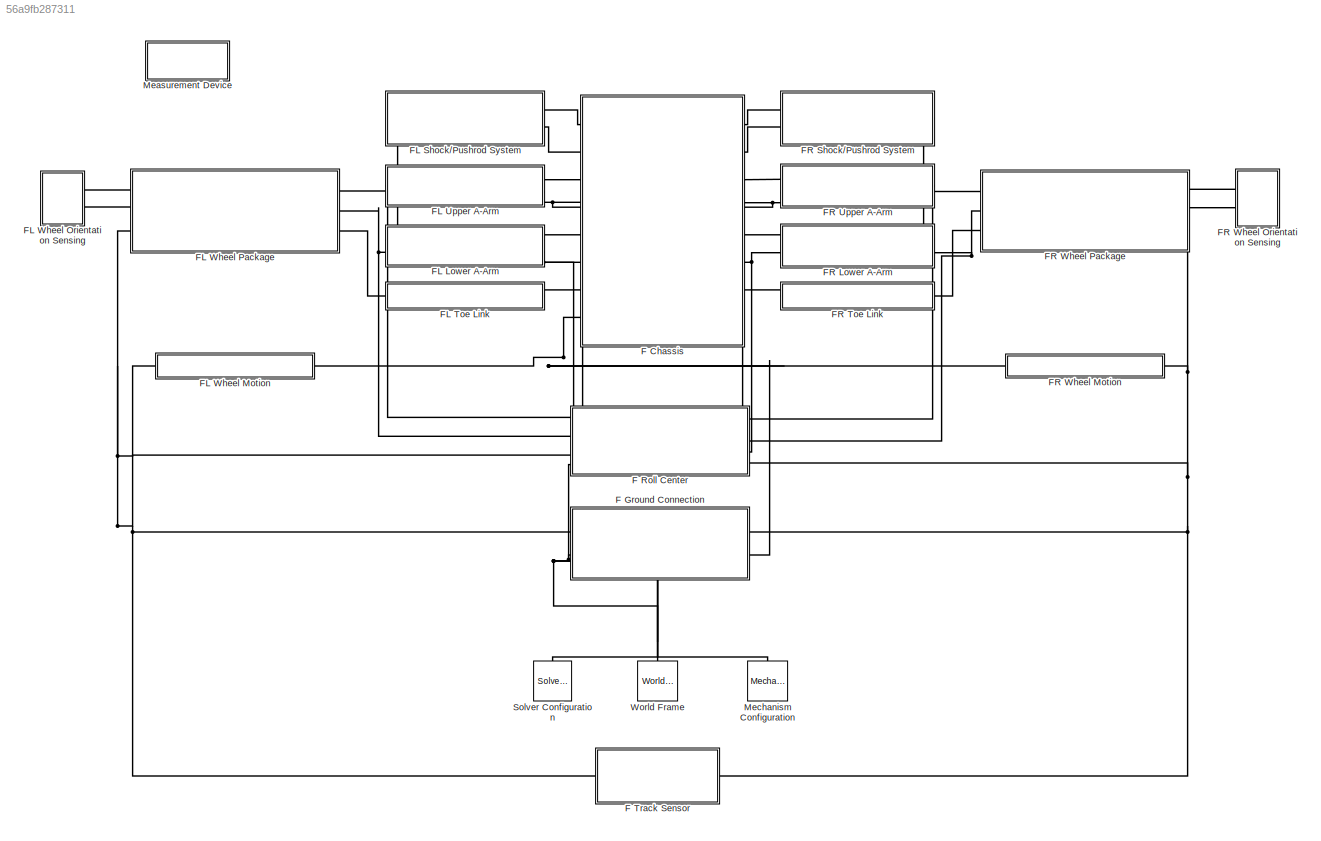
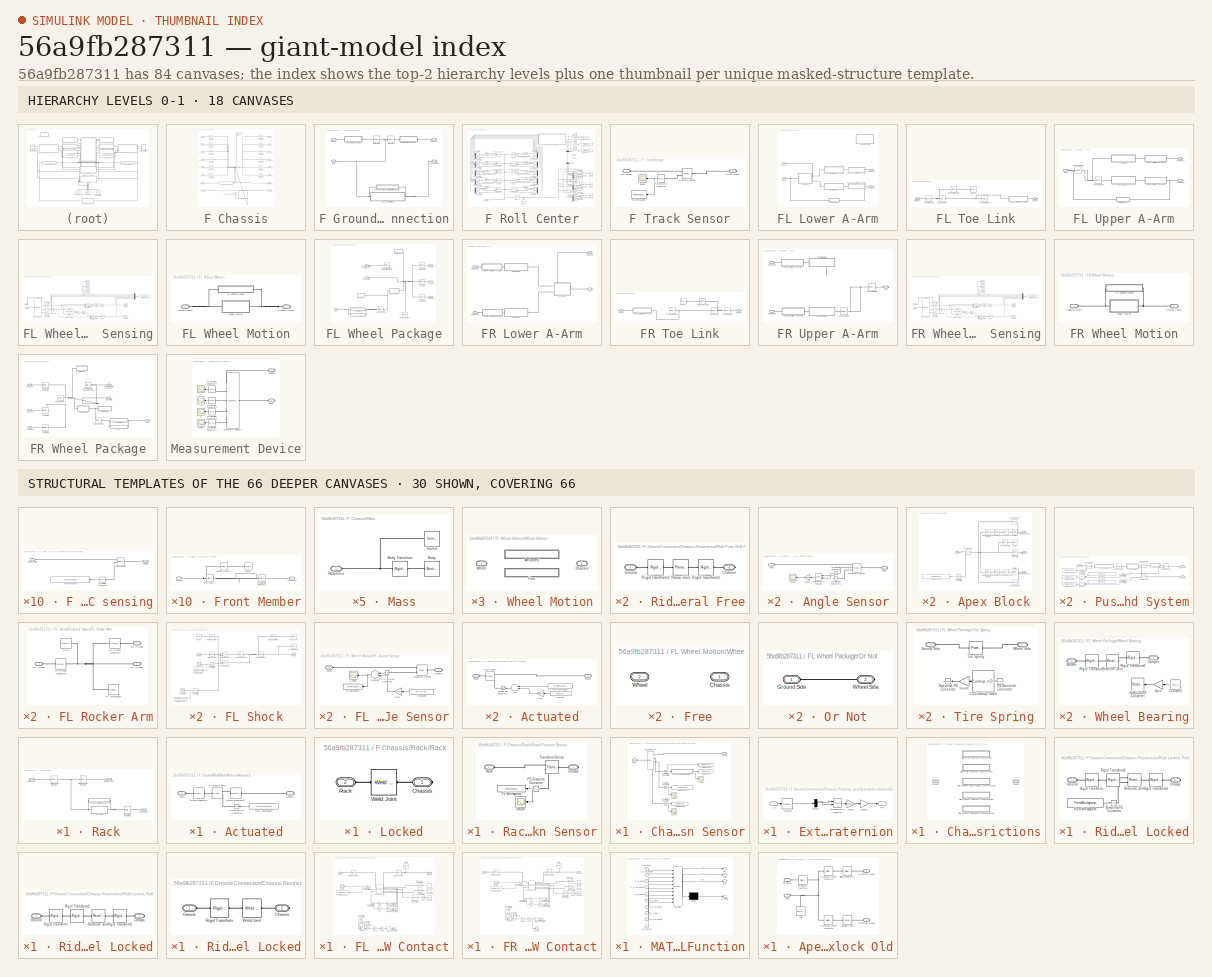
[diagram: thumbnail index - top-2 hierarchy levels (18 canvases) + 30 structural-template representatives of the remaining 66 canvases]
MODEL slx_56a9fb287311
KIND model
CONFIG AbsTol = auto
CONFIG EnableMultiTasking = on
CONFIG FixedStep = auto
CONFIG MaxStep = SP.SC.F.dt_max
CONFIG MinStep = SP.SC.F.dt_min
CONFIG RelTol = 1e-3
CONFIG SampleTimeConstraint = Unconstrained
CONFIG Solver = ode45
CONFIG SolverName = ode45
CONFIG StartTime = 0.0
CONFIG StopTime = SP.SC.F.t_end
BLOCK [SubSystem] F Chassis
  Ports = [0, 0, 0, 0, 0, 8, 8]
  RequestExecContextInheritance = off
BLOCK [PMIOPort] F Chassis/Chassis Origin
  Port = 15
  Side = Left
BLOCK [PMIOPort] F Chassis/Chassis Origin 2
  Port = 16
  Side = Right
BLOCK [Reference] F Chassis/Chassis Reference  REF=sm_lib/Frames and
Transforms/Reference
Frame
  Ports = [0, 0, 0, 0, 0, 0, 1]
  SourceBlock = sm_lib/Frames and\nTransforms/Reference\nFrame
  SourceProductBaseCode = MS
  SourceProductName = Simscape Multibody
  SourceType = Reference\nFrame
BLOCK [PMIOPort] F Chassis/FL LA F Pickup
  Port = 5
  Side = Left
BLOCK [Reference] F Chassis/FL LA F Pickup Transform  REF=sm_lib/Frames and
Transforms/Rigid
Transform
  Ports = [0, 0, 0, 0, 0, 1, 1]
  SourceBlock = sm_lib/Frames and\nTransforms/Rigid\nTransform
  SourceProductBaseCode = MS
  SourceProductName = Simscape Multibody
  SourceType = Rigid\nTransform
BLOCK [PMIOPort] F Chassis/FL LA R Pickup
  Port = 6
  Side = Left
BLOCK [Reference] F Chassis/FL LA R Pickup Transform  REF=sm_lib/Frames and
Transforms/Rigid
Transform
  Ports = [0, 0, 0, 0, 0, 1, 1]
  SourceBlock = sm_lib/Frames and\nTransforms/Rigid\nTransform
  SourceProductBaseCode = MS
  SourceProductName = Simscape Multibody
  SourceType = Rigid\nTransform
BLOCK [PMIOPort] F Chassis/FL RA Pickup
  Port = 2
  Side = Left
BLOCK [Reference] F Chassis/FL RA Pickup Transform  REF=sm_lib/Frames and
Transforms/Rigid
Transform
  Ports = [0, 0, 0, 0, 0, 1, 1]
  SourceBlock = sm_lib/Frames and\nTransforms/Rigid\nTransform
  SourceProductBaseCode = MS
  SourceProductName = Simscape Multibody
  SourceType = Rigid\nTransform
BLOCK [PMIOPort] F Chassis/FL SH Pickup
  Side = Left
BLOCK [Reference] F Chassis/FL SH Pickup Transform  REF=sm_lib/Frames and
Transforms/Rigid
Transform
  Ports = [0, 0, 0, 0, 0, 1, 1]
  SourceBlock = sm_lib/Frames and\nTransforms/Rigid\nTransform
  SourceProductBaseCode = MS
  SourceProductName = Simscape Multibody
  SourceType = Rigid\nTransform
BLOCK [PMIOPort] F Chassis/FL UA F Pickup
  Port = 3
  Side = Left
BLOCK [Reference] F Chassis/FL UA F Pickup Transform  REF=sm_lib/Frames and
Transforms/Rigid
Transform
  Ports = [0, 0, 0, 0, 0, 1, 1]
  SourceBlock = sm_lib/Frames and\nTransforms/Rigid\nTransform
  SourceProductBaseCode = MS
  SourceProductName = Simscape Multibody
  SourceType = Rigid\nTransform
BLOCK [PMIOPort] F Chassis/FL UA R Pickup
  Port = 4
  Side = Left
BLOCK [Reference] F Chassis/FL UA R Pickup Transform  REF=sm_lib/Frames and
Transforms/Rigid
Transform
  Ports = [0, 0, 0, 0, 0, 1, 1]
  SourceBlock = sm_lib/Frames and\nTransforms/Rigid\nTransform
  SourceProductBaseCode = MS
  SourceProductName = Simscape Multibody
  SourceType = Rigid\nTransform
BLOCK [PMIOPort] F Chassis/FR LA F Pickup
  Port = 12
  Side = Right
BLOCK [Reference] F Chassis/FR LA F Pickup Transform  REF=sm_lib/Frames and
Transforms/Rigid
Transform
  Ports = [0, 0, 0, 0, 0, 1, 1]
  SourceBlock = sm_lib/Frames and\nTransforms/Rigid\nTransform
  SourceProductBaseCode = MS
  SourceProductName = Simscape Multibody
  SourceType = Rigid\nTransform
BLOCK [PMIOPort] F Chassis/FR LA R Pickup
  Port = 13
  Side = Right
BLOCK [Reference] F Chassis/FR LA R Pickup Transform  REF=sm_lib/Frames and
Transforms/Rigid
Transform
  Ports = [0, 0, 0, 0, 0, 1, 1]
  SourceBlock = sm_lib/Frames and\nTransforms/Rigid\nTransform
  SourceProductBaseCode = MS
  SourceProductName = Simscape Multibody
  SourceType = Rigid\nTransform
BLOCK [PMIOPort] F Chassis/FR RA Pickup
  Port = 9
  Side = Right
BLOCK [Reference] F Chassis/FR RA Pickup Transform  REF=sm_lib/Frames and
Transforms/Rigid
Transform
  Ports = [0, 0, 0, 0, 0, 1, 1]
  SourceBlock = sm_lib/Frames and\nTransforms/Rigid\nTransform
  SourceProductBaseCode = MS
  SourceProductName = Simscape Multibody
  SourceType = Rigid\nTransform
BLOCK [PMIOPort] F Chassis/FR SH Pickup
  Port = 8
  Side = Right
BLOCK [Reference] F Chassis/FR SH Pickup Transform  REF=sm_lib/Frames and
Transforms/Rigid
Transform
  Ports = [0, 0, 0, 0, 0, 1, 1]
  SourceBlock = sm_lib/Frames and\nTransforms/Rigid\nTransform
  SourceProductBaseCode = MS
  SourceProductName = Simscape Multibody
  SourceType = Rigid\nTransform
BLOCK [PMIOPort] F Chassis/FR UA F Pickup
  Port = 10
  Side = Right
BLOCK [Reference] F Chassis/FR UA F Pickup Transform  REF=sm_lib/Frames and
Transforms/Rigid
Transform
  Ports = [0, 0, 0, 0, 0, 1, 1]
  SourceBlock = sm_lib/Frames and\nTransforms/Rigid\nTransform
  SourceProductBaseCode = MS
  SourceProductName = Simscape Multibody
  SourceType = Rigid\nTransform
BLOCK [PMIOPort] F Chassis/FR UA R Pickup
  Port = 11
  Side = Right
BLOCK [Reference] F Chassis/FR UA R Pickup Transform  REF=sm_lib/Frames and
Transforms/Rigid
Transform
  Ports = [0, 0, 0, 0, 0, 1, 1]
  SourceBlock = sm_lib/Frames and\nTransforms/Rigid\nTransform
  SourceProductBaseCode = MS
  SourceProductName = Simscape Multibody
  SourceType = Rigid\nTransform
BLOCK [PMIOPort] F Chassis/Left Rack End
  Port = 7
  Side = Left
BLOCK [SubSystem] F Chassis/Mass
  Ports = [0, 0, 0, 0, 0, 1]
  RequestExecContextInheritance = off
BLOCK [Reference] F Chassis/Mass/Body  REF=sm_lib/Body Elements/Brick Solid
  Ports = [0, 0, 0, 0, 0, 0, 1]
  SourceBlock = sm_lib/Body Elements/Brick Solid
  SourceProductBaseCode = MS
  SourceProductName = Simscape Multibody
  SourceType = Brick Solid
BLOCK [Reference] F Chassis/Mass/Body Transform  REF=sm_lib/Frames and
Transforms/Rigid
Transform
  Ports = [0, 0, 0, 0, 0, 1, 1]
  SourceBlock = sm_lib/Frames and\nTransforms/Rigid\nTransform
  SourceProductBaseCode = MS
  SourceProductName = Simscape Multibody
  SourceType = Rigid\nTransform
BLOCK [Reference] F Chassis/Mass/Inertia  REF=sm_lib/Body Elements/Inertia
  Ports = [0, 0, 0, 0, 0, 0, 1]
  SourceBlock = sm_lib/Body Elements/Inertia
  SourceProductBaseCode = MS
  SourceProductName = Simscape Multibody
  SourceType = Inertia
BLOCK [PMIOPort] F Chassis/Mass/Reference
  Side = Left
BLOCK [SubSystem] F Chassis/Rack
  Ports = [0, 0, 0, 0, 0, 1, 2]
  RequestExecContextInheritance = off
BLOCK [PMIOPort] F Chassis/Rack/CH Rack Mount
  Port = 3
  Side = Right
BLOCK [PMIOPort] F Chassis/Rack/Left Rack End
  Side = Left
BLOCK [Reference] F Chassis/Rack/Left Rack End Transform  REF=sm_lib/Frames and
Transforms/Rigid
Transform
  Ports = [0, 0, 0, 0, 0, 1, 1]
  SourceBlock = sm_lib/Frames and\nTransforms/Rigid\nTransform
  SourceProductBaseCode = MS
  SourceProductName = Simscape Multibody
  SourceType = Rigid\nTransform
BLOCK [SubSystem] F Chassis/Rack/Rack Motion
  Ports = [0, 0, 0, 0, 0, 1, 1]
  RequestExecContextInheritance = off
  Variant = on
BLOCK [SubSystem] F Chassis/Rack/Rack Motion/Actuated
  Ports = [0, 0, 0, 0, 0, 1, 1]
  RequestExecContextInheritance = off
  VariantControl = strcmp(SP.SC.F.VS_modes.rack, "actuated")
BLOCK [PMIOPort] F Chassis/Rack/Rack Motion/Actuated/Chassis
  Side = Right
BLOCK [FromWorkspace] F Chassis/Rack/Rack Motion/Actuated/From Workspace
  SampleTime = 0
  VariableName = SP.SC.F.rack_input
  ZeroCross = on
BLOCK [Reference] F Chassis/Rack/Rack Motion/Actuated/Prismatic Joint  REF=sm_lib/Joints/Prismatic
Joint
  Ports = [0, 0, 0, 0, 0, 2, 1]
  SourceBlock = sm_lib/Joints/Prismatic\nJoint
  SourceProductBaseCode = MS
  SourceProductName = Simscape Multibody
  SourceType = Prismatic\nJoint
BLOCK [PMIOPort] F Chassis/Rack/Rack Motion/Actuated/Rack
  Port = 2
  Side = Left
BLOCK [Reference] F Chassis/Rack/Rack Motion/Actuated/Rigid Transform  REF=sm_lib/Frames and
Transforms/Rigid
Transform
  Ports = [0, 0, 0, 0, 0, 1, 1]
  SourceBlock = sm_lib/Frames and\nTransforms/Rigid\nTransform
  SourceProductBaseCode = MS
  SourceProductName = Simscape Multibody
  SourceType = Rigid\nTransform
BLOCK [Reference] F Chassis/Rack/Rack Motion/Actuated/Rigid Transform1  REF=sm_lib/Frames and
Transforms/Rigid
Transform
  Ports = [0, 0, 0, 0, 0, 1, 1]
  SourceBlock = sm_lib/Frames and\nTransforms/Rigid\nTransform
  SourceProductBaseCode = MS
  SourceProductName = Simscape Multibody
  SourceType = Rigid\nTransform
BLOCK [Reference] F Chassis/Rack/Rack Motion/Actuated/Simulink-PS Converter  REF=nesl_utility/Simulink-PS
Converter
  Ports = [1, 0, 0, 0, 0, 0, 1]
  SourceBlock = nesl_utility/Simulink-PS\nConverter
  SourceProductBaseCode = SS
  SourceProductName = Simscape
  SourceType = Simulink-PS\nConverter
BLOCK [PMIOPort] F Chassis/Rack/Rack Motion/Chassis
  Side = Right
BLOCK [SubSystem] F Chassis/Rack/Rack Motion/Locked
  Ports = [0, 0, 0, 0, 0, 1, 1]
  RequestExecContextInheritance = off
  VariantControl = strcmp(SP.SC.F.VS_modes.rack, "locked")
BLOCK [PMIOPort] F Chassis/Rack/Rack Motion/Locked/Chassis
  Side = Right
BLOCK [PMIOPort] F Chassis/Rack/Rack Motion/Locked/Rack
  Port = 2
  Side = Left
BLOCK [Reference] F Chassis/Rack/Rack Motion/Locked/Weld Joint  REF=sm_lib/Joints/Weld Joint
  Ports = [0, 0, 0, 0, 0, 1, 1]
  SourceBlock = sm_lib/Joints/Weld Joint
  SourceProductBaseCode = MS
  SourceProductName = Simscape Multibody
  SourceType = Weld Joint
BLOCK [PMIOPort] F Chassis/Rack/Rack Motion/Rack
  Port = 2
  Side = Left
BLOCK [Reference] F Chassis/Rack/Rack Mount Transform  REF=sm_lib/Frames and
Transforms/Rigid
Transform
  Ports = [0, 0, 0, 0, 0, 1, 1]
  SourceBlock = sm_lib/Frames and\nTransforms/Rigid\nTransform
  SourceProductBaseCode = MS
  SourceProductName = Simscape Multibody
  SourceType = Rigid\nTransform
BLOCK [SubSystem] F Chassis/Rack/Rack Position Sensor
  Ports = [0, 0, 0, 0, 0, 1, 1]
  RequestExecContextInheritance = off
BLOCK [PMIOPort] F Chassis/Rack/Rack Position Sensor/Chassis
  Side = Right
BLOCK [Reference] F Chassis/Rack/Rack Position Sensor/PS-Simulink Converter  REF=nesl_utility/PS-Simulink
Converter
  Ports = [0, 1, 0, 0, 0, 1]
  SourceBlock = nesl_utility/PS-Simulink\nConverter
  SourceProductBaseCode = SS
  SourceProductName = Simscape
  SourceType = PS-Simulink\nConverter
BLOCK [PMIOPort] F Chassis/Rack/Rack Position Sensor/Rack
  Port = 2
  Side = Left
BLOCK [Scope] F Chassis/Rack/Rack Position Sensor/Scope
  Floating = off
  NumInputPorts = 1
  Ports = [1]
  ScopeSpecificationString = Simulink.scopes.TimeScopeBlockCfg('CurrentConfiguration', extmgr.ConfigurationSet(extmgr.Configuration('Core','General UI',true),extmgr.Configuration('Core','Source UI',true),extmgr.Configuration('Sources','WiredSimulink',true,'DataLoggingVariableName','ScopeData1'),extmgr.Configuration('Visuals','Time Domain',true,'SerializedDisplays',{struct('MinYLimReal','-1.00000','MaxYLimReal','1.00000','YLab...<+1380ch>
BLOCK [ToWorkspace] F Chassis/Rack/Rack Position Sensor/To Workspace
  FixptAsFi = on
  MaxDataPoints = inf
  Ports = [1]
  SampleTime = -1
  SaveFormat = Timeseries
  VariableName = F_RK_position
BLOCK [Reference] F Chassis/Rack/Rack Position Sensor/Transform Sensor  REF=sm_lib/Frames and
Transforms/Transform
Sensor
  Ports = [0, 0, 0, 0, 0, 1, 2]
  SourceBlock = sm_lib/Frames and\nTransforms/Transform\nSensor
  SourceProductBaseCode = MS
  SourceProductName = Simscape Multibody
  SourceType = Transform\nSensor
BLOCK [PMIOPort] F Chassis/Rack/Right Rack End
  Port = 2
  Side = Right
BLOCK [Reference] F Chassis/Rack/Right Rack End Transform  REF=sm_lib/Frames and
Transforms/Rigid
Transform
  Ports = [0, 0, 0, 0, 0, 1, 1]
  SourceBlock = sm_lib/Frames and\nTransforms/Rigid\nTransform
  SourceProductBaseCode = MS
  SourceProductName = Simscape Multibody
  SourceType = Rigid\nTransform
BLOCK [PMIOPort] F Chassis/Right Rack End
  Port = 14
  Side = Right
BLOCK [SubSystem] F Ground Connection
  Ports = [0, 0, 0, 0, 0, 2, 2]
  RequestExecContextInheritance = off
BLOCK [PMIOPort] F Ground Connection/Chassis Origin
  Port = 4
  Side = Right
BLOCK [SubSystem] F Ground Connection/Chassis Position and Orientation Sensor
  Ports = [0, 0, 0, 0, 0, 1, 1]
  RequestExecContextInheritance = off
BLOCK [PMIOPort] F Ground Connection/Chassis Position and Orientation Sensor/Chassis
  Port = 2
  Side = Right
BLOCK [SubSystem] F Ground Connection/Chassis Position and Orientation Sensor/Extract Angle From Quaternion
  Ports = [1, 1]
  RequestExecContextInheritance = off
BLOCK [Gain] F Ground Connection/Chassis Position and Orientation Sensor/Extract Angle From Quaternion/180//pi
  Gain = 180/pi
  OutDataTypeStr = Inherit: Inherit via internal rule
  ParamDataTypeStr = Inherit: Inherit via internal rule
  SaturateOnIntegerOverflow = off
BLOCK [Demux] F Ground Connection/Chassis Position and Orientation Sensor/Extract Angle From Quaternion/Demux
  DisplayOption = bar
  Outputs = 2
  Ports = [1, 2]
BLOCK [Outport] F Ground Connection/Chassis Position and Orientation Sensor/Extract Angle From Quaternion/Phi
  IconDisplay = Port number
BLOCK [Inport] F Ground Connection/Chassis Position and Orientation Sensor/Extract Angle From Quaternion/Q
  IconDisplay = Port number
BLOCK [Selector] F Ground Connection/Chassis Position and Orientation Sensor/Extract Angle From Quaternion/Selector
  IndexOptions = Index vector (dialog)
  Indices = [1 2]
  InputPortWidth = 4
  OutputSizes = 1
  Ports = [1, 1]
BLOCK [Trigonometry] F Ground Connection/Chassis Position and Orientation Sensor/Extract Angle From Quaternion/Trigonometric Function
  Operator = atan2
  Ports = [2, 1]
BLOCK [Gain] F Ground Connection/Chassis Position and Orientation Sensor/Extract Angle From Quaternion/double
  Gain = 2
  OutDataTypeStr = Inherit: Inherit via internal rule
  ParamDataTypeStr = Inherit: Inherit via internal rule
  SaturateOnIntegerOverflow = off
BLOCK [PMIOPort] F Ground Connection/Chassis Position and Orientation Sensor/Ground
  Side = Left
BLOCK [Reference] F Ground Connection/Chassis Position and Orientation Sensor/PS-Simulink Converter  REF=nesl_utility/PS-Simulink
Converter
  Ports = [0, 1, 0, 0, 0, 1]
  SourceBlock = nesl_utility/PS-Simulink\nConverter
  SourceProductBaseCode = SS
  SourceProductName = Simscape
  SourceType = PS-Simulink\nConverter
BLOCK [Reference] F Ground Connection/Chassis Position and Orientation Sensor/PS-Simulink Converter1  REF=nesl_utility/PS-Simulink
Converter
  Ports = [0, 1, 0, 0, 0, 1]
  SourceBlock = nesl_utility/PS-Simulink\nConverter
  SourceProductBaseCode = SS
  SourceProductName = Simscape
  SourceType = PS-Simulink\nConverter
BLOCK [Reference] F Ground Connection/Chassis Position and Orientation Sensor/PS-Simulink Converter2  REF=nesl_utility/PS-Simulink
Converter
  Ports = [0, 1, 0, 0, 0, 1]
  SourceBlock = nesl_utility/PS-Simulink\nConverter
  SourceProductBaseCode = SS
  SourceProductName = Simscape
  SourceType = PS-Simulink\nConverter
BLOCK [Scope] F Ground Connection/Chassis Position and Orientation Sensor/Scope
  Floating = off
  NumInputPorts = 1
  Ports = [1]
  ScopeSpecificationString = Simulink.scopes.TimeScopeBlockCfg('CurrentConfiguration', extmgr.ConfigurationSet(extmgr.Configuration('Core','General UI',true),extmgr.Configuration('Core','Source UI',true),extmgr.Configuration('Sources','WiredSimulink',true,'DataLoggingVariableName','ScopeData1'),extmgr.Configuration('Visuals','Time Domain',true,'SerializedDisplays',{struct('MinYLimReal','-2.0577','MaxYLimReal','0.22863','YLabe...<+1355ch>
BLOCK [Scope] F Ground Connection/Chassis Position and Orientation Sensor/Scope1
  Floating = off
  NumInputPorts = 1
  Ports = [1]
  ScopeSpecificationString = Simulink.scopes.TimeScopeBlockCfg('CurrentConfiguration', extmgr.ConfigurationSet(extmgr.Configuration('Core','General UI',true),extmgr.Configuration('Core','Source UI',true),extmgr.Configuration('Sources','WiredSimulink',true,'DataLoggingVariableName','ScopeData2'),extmgr.Configuration('Visuals','Time Domain',true,'SerializedDisplays',{struct('MinYLimReal','1.999999982','MaxYLimReal','2.000000002...<+1389ch>
BLOCK [Scope] F Ground Connection/Chassis Position and Orientation Sensor/Scope2
  Floating = off
  NumInputPorts = 1
  Ports = [1]
  ScopeSpecificationString = Simulink.scopes.TimeScopeBlockCfg('CurrentConfiguration', extmgr.ConfigurationSet(extmgr.Configuration('Core','General UI',true),extmgr.Configuration('Core','Source UI',true),extmgr.Configuration('Sources','WiredSimulink',true,'DataLoggingVariableName','ScopeData3'),extmgr.Configuration('Visuals','Time Domain',true,'SerializedDisplays',{struct('MinYLimReal','-0.0000059','MaxYLimReal','0.0000007','...<+1375ch>
BLOCK [ToWorkspace] F Ground Connection/Chassis Position and Orientation Sensor/To Workspace
  FixptAsFi = on
  MaxDataPoints = inf
  Ports = [1]
  SampleTime = -1
  SaveFormat = Timeseries
  VariableName = F_SY_roll_angle
BLOCK [ToWorkspace] F Ground Connection/Chassis Position and Orientation Sensor/To Workspace1
  FixptAsFi = on
  MaxDataPoints = inf
  Ports = [1]
  SampleTime = -1
  SaveFormat = Timeseries
  VariableName = F_SY_ride_height
BLOCK [ToWorkspace] F Ground Connection/Chassis Position and Orientation Sensor/To Workspace2
  FixptAsFi = on
  MaxDataPoints = inf
  Ports = [1]
  SampleTime = -1
  SaveFormat = Timeseries
  VariableName = F_SY_CH_lateral_position
BLOCK [ToWorkspace] F Ground Connection/Chassis Position and Orientation Sensor/To Workspace3
  FixptAsFi = on
  MaxDataPoints = inf
  Ports = [1]
  SampleTime = -1
  SaveFormat = Timeseries
  VariableName = F_SY_roll_angle_quat
BLOCK [Reference] F Ground Connection/Chassis Position and Orientation Sensor/Transform Sensor  REF=sm_lib/Frames and
Transforms/Transform
Sensor
  Ports = [0, 0, 0, 0, 0, 1, 4]
  SourceBlock = sm_lib/Frames and\nTransforms/Transform\nSensor
  SourceProductBaseCode = MS
  SourceProductName = Simscape Multibody
  SourceType = Transform\nSensor
BLOCK [SubSystem] F Ground Connection/Chassis Restrictions
  Ports = [0, 0, 0, 0, 0, 1, 1]
  RequestExecContextInheritance = off
  Variant = on
BLOCK [PMIOPort] F Ground Connection/Chassis Restrictions/Chassis
  Port = 2
  Side = Right
BLOCK [PMIOPort] F Ground Connection/Chassis Restrictions/Ground
  Side = Left
BLOCK [SubSystem] F Ground Connection/Chassis Restrictions/Ride Free, Roll Free, Lateral Free
  Ports = [0, 0, 0, 0, 0, 1, 1]
  RequestExecContextInheritance = off
  VariantControl = strcmp(SP.SC.F.VS_modes.CH, "ride_free_roll_free_lat_free")
BLOCK [PMIOPort] F Ground Connection/Chassis Restrictions/Ride Free, Roll Free, Lateral Free/Chassis
  Port = 2
  Side = Right
BLOCK [PMIOPort] F Ground Connection/Chassis Restrictions/Ride Free, Roll Free, Lateral Free/Ground
  Side = Left
BLOCK [Reference] F Ground Connection/Chassis Restrictions/Ride Free, Roll Free, Lateral Free/Planar Joint  REF=sm_lib/Joints/Planar Joint
  Ports = [0, 0, 0, 0, 0, 1, 1]
  SourceBlock = sm_lib/Joints/Planar Joint
  SourceProductBaseCode = MS
  SourceProductName = Simscape Multibody
  SourceType = Planar Joint
BLOCK [Reference] F Ground Connection/Chassis Restrictions/Ride Free, Roll Free, Lateral Free/Rigid Transform1  REF=sm_lib/Frames and
Transforms/Rigid
Transform
  Ports = [0, 0, 0, 0, 0, 1, 1]
  SourceBlock = sm_lib/Frames and\nTransforms/Rigid\nTransform
  SourceProductBaseCode = MS
  SourceProductName = Simscape Multibody
  SourceType = Rigid\nTransform
BLOCK [Reference] F Ground Connection/Chassis Restrictions/Ride Free, Roll Free, Lateral Free/Rigid Transform2  REF=sm_lib/Frames and
Transforms/Rigid
Transform
  Ports = [0, 0, 0, 0, 0, 1, 1]
  SourceBlock = sm_lib/Frames and\nTransforms/Rigid\nTransform
  SourceProductBaseCode = MS
  SourceProductName = Simscape Multibody
  SourceType = Rigid\nTransform
BLOCK [SubSystem] F Ground Connection/Chassis Restrictions/Ride Free, Roll Free, Lateral Locked
  Ports = [0, 0, 0, 0, 0, 1, 1]
  RequestExecContextInheritance = off
  VariantControl = strcmp(SP.SC.F.VS_modes.CH, "ride_free_roll_free_lat_locked")
BLOCK [PMIOPort] F Ground Connection/Chassis Restrictions/Ride Free, Roll Free, Lateral Locked/Chassis
  Port = 2
  Side = Right
BLOCK [PMIOPort] F Ground Connection/Chassis Restrictions/Ride Free, Roll Free, Lateral Locked/Ground
  Side = Left
BLOCK [Reference] F Ground Connection/Chassis Restrictions/Ride Free, Roll Free, Lateral Locked/Pin Slot Joint  REF=sm_lib/Joints/Pin Slot Joint
  Ports = [0, 0, 0, 0, 0, 1, 1]
  SourceBlock = sm_lib/Joints/Pin Slot Joint
  SourceProductBaseCode = MS
  SourceProductName = Simscape Multibody
  SourceType = Pin Slot Joint
BLOCK [Reference] F Ground Connection/Chassis Restrictions/Ride Free, Roll Free, Lateral Locked/Rigid Transform1  REF=sm_lib/Frames and
Transforms/Rigid
Transform
  Ports = [0, 0, 0, 0, 0, 1, 1]
  SourceBlock = sm_lib/Frames and\nTransforms/Rigid\nTransform
  SourceProductBaseCode = MS
  SourceProductName = Simscape Multibody
  SourceType = Rigid\nTransform
BLOCK [Reference] F Ground Connection/Chassis Restrictions/Ride Free, Roll Free, Lateral Locked/Rigid Transform2  REF=sm_lib/Frames and
Transforms/Rigid
Transform
  Ports = [0, 0, 0, 0, 0, 1, 1]
  SourceBlock = sm_lib/Frames and\nTransforms/Rigid\nTransform
  SourceProductBaseCode = MS
  SourceProductName = Simscape Multibody
  SourceType = Rigid\nTransform
BLOCK [SubSystem] F Ground Connection/Chassis Restrictions/Ride Locked, Roll Actuated, Lateral Locked
  Ports = [0, 0, 0, 0, 0, 1, 1]
  RequestExecContextInheritance = off
  VariantControl = strcmp(SP.SC.F.VS_modes.CH, "ride_locked_roll_actuated_lat_locked")
BLOCK [PMIOPort] F Ground Connection/Chassis Restrictions/Ride Locked, Roll Actuated, Lateral Locked/Chassis
  Port = 2
  Side = Right
BLOCK [FromWorkspace] F Ground Connection/Chassis Restrictions/Ride Locked, Roll Actuated, Lateral Locked/From Workspace
  SampleTime = 0
  VariableName = SP.SC.F.roll_input
  ZeroCross = on
BLOCK [PMIOPort] F Ground Connection/Chassis Restrictions/Ride Locked, Roll Actuated, Lateral Locked/Ground
  Side = Left
BLOCK [Reference] F Ground Connection/Chassis Restrictions/Ride Locked, Roll Actuated, Lateral Locked/Revolute Joint  REF=sm_lib/Joints/Revolute Joint
  Ports = [0, 0, 0, 0, 0, 2, 1]
  SourceBlock = sm_lib/Joints/Revolute Joint
  SourceProductBaseCode = MS
  SourceProductName = Simscape Multibody
  SourceType = Revolute Joint
BLOCK [Reference] F Ground Connection/Chassis Restrictions/Ride Locked, Roll Actuated, Lateral Locked/Rigid Transform  REF=sm_lib/Frames and
Transforms/Rigid
Transform
  Ports = [0, 0, 0, 0, 0, 1, 1]
  SourceBlock = sm_lib/Frames and\nTransforms/Rigid\nTransform
  SourceProductBaseCode = MS
  SourceProductName = Simscape Multibody
  SourceType = Rigid\nTransform
BLOCK [Reference] F Ground Connection/Chassis Restrictions/Ride Locked, Roll Actuated, Lateral Locked/Rigid Transform1  REF=sm_lib/Frames and
Transforms/Rigid
Transform
  Ports = [0, 0, 0, 0, 0, 1, 1]
  SourceBlock = sm_lib/Frames and\nTransforms/Rigid\nTransform
  SourceProductBaseCode = MS
  SourceProductName = Simscape Multibody
  SourceType = Rigid\nTransform
BLOCK [Reference] F Ground Connection/Chassis Restrictions/Ride Locked, Roll Actuated, Lateral Locked/Rigid Transform2  REF=sm_lib/Frames and
Transforms/Rigid
Transform
  Ports = [0, 0, 0, 0, 0, 1, 1]
  SourceBlock = sm_lib/Frames and\nTransforms/Rigid\nTransform
  SourceProductBaseCode = MS
  SourceProductName = Simscape Multibody
  SourceType = Rigid\nTransform
BLOCK [Reference] F Ground Connection/Chassis Restrictions/Ride Locked, Roll Actuated, Lateral Locked/Simulink-PS Converter  REF=nesl_utility/Simulink-PS
Converter
  Ports = [1, 0, 0, 0, 0, 0, 1]
  SourceBlock = nesl_utility/Simulink-PS\nConverter
  SourceProductBaseCode = SS
  SourceProductName = Simscape
  SourceType = Simulink-PS\nConverter
BLOCK [SubSystem] F Ground Connection/Chassis Restrictions/Ride Locked, Roll Free, Lateral Locked
  Ports = [0, 0, 0, 0, 0, 1, 1]
  RequestExecContextInheritance = off
  VariantControl = strcmp(SP.SC.F.VS_modes.CH, "ride_locked_roll_free_lat_locked")
BLOCK [PMIOPort] F Ground Connection/Chassis Restrictions/Ride Locked, Roll Free, Lateral Locked/Chassis
  Port = 2
  Side = Right
BLOCK [PMIOPort] F Ground Connection/Chassis Restrictions/Ride Locked, Roll Free, Lateral Locked/Ground
  Side = Left
BLOCK [Reference] F Ground Connection/Chassis Restrictions/Ride Locked, Roll Free, Lateral Locked/Revolute Joint  REF=sm_lib/Joints/Revolute Joint
  Ports = [0, 0, 0, 0, 0, 1, 1]
  SourceBlock = sm_lib/Joints/Revolute Joint
  SourceProductBaseCode = MS
  SourceProductName = Simscape Multibody
  SourceType = Revolute Joint
BLOCK [Reference] F Ground Connection/Chassis Restrictions/Ride Locked, Roll Free, Lateral Locked/Rigid Transform  REF=sm_lib/Frames and
Transforms/Rigid
Transform
  Ports = [0, 0, 0, 0, 0, 1, 1]
  SourceBlock = sm_lib/Frames and\nTransforms/Rigid\nTransform
  SourceProductBaseCode = MS
  SourceProductName = Simscape Multibody
  SourceType = Rigid\nTransform
BLOCK [Reference] F Ground Connection/Chassis Restrictions/Ride Locked, Roll Free, Lateral Locked/Rigid Transform1  REF=sm_lib/Frames and
Transforms/Rigid
Transform
  Ports = [0, 0, 0, 0, 0, 1, 1]
  SourceBlock = sm_lib/Frames and\nTransforms/Rigid\nTransform
  SourceProductBaseCode = MS
  SourceProductName = Simscape Multibody
  SourceType = Rigid\nTransform
BLOCK [Reference] F Ground Connection/Chassis Restrictions/Ride Locked, Roll Free, Lateral Locked/Rigid Transform2  REF=sm_lib/Frames and
Transforms/Rigid
Transform
  Ports = [0, 0, 0, 0, 0, 1, 1]
  SourceBlock = sm_lib/Frames and\nTransforms/Rigid\nTransform
  SourceProductBaseCode = MS
  SourceProductName = Simscape Multibody
  SourceType = Rigid\nTransform
BLOCK [SubSystem] F Ground Connection/Chassis Restrictions/Ride Locked, Roll Locked, Lateral Locked
  Ports = [0, 0, 0, 0, 0, 1, 1]
  RequestExecContextInheritance = off
  VariantControl = strcmp(SP.SC.F.VS_modes.CH, "ride_locked_roll_locked_lat_locked")
BLOCK [PMIOPort] F Ground Connection/Chassis Restrictions/Ride Locked, Roll Locked, Lateral Locked/Chassis
  Port = 2
  Side = Right
BLOCK [PMIOPort] F Ground Connection/Chassis Restrictions/Ride Locked, Roll Locked, Lateral Locked/Ground
  Side = Left
BLOCK [Reference] F Ground Connection/Chassis Restrictions/Ride Locked, Roll Locked, Lateral Locked/Rigid Transform  REF=sm_lib/Frames and
Transforms/Rigid
Transform
  Ports = [0, 0, 0, 0, 0, 1, 1]
  SourceBlock = sm_lib/Frames and\nTransforms/Rigid\nTransform
  SourceProductBaseCode = MS
  SourceProductName = Simscape Multibody
  SourceType = Rigid\nTransform
BLOCK [Reference] F Ground Connection/Chassis Restrictions/Ride Locked, Roll Locked, Lateral Locked/Weld Joint  REF=sm_lib/Joints/Weld Joint
  Ports = [0, 0, 0, 0, 0, 1, 1]
  SourceBlock = sm_lib/Joints/Weld Joint
  SourceProductBaseCode = MS
  SourceProductName = Simscape Multibody
  SourceType = Weld Joint
BLOCK [SubSystem] F Ground Connection/FL Wheel Ground Contact
  Ports = [0, 0, 0, 0, 0, 1, 1]
  RequestExecContextInheritance = off
BLOCK [Gain] F Ground Connection/FL Wheel Ground Contact/1//Speed
  Commented = on
  Gain = 1 / 40.4656
  OutDataTypeStr = Inherit: Inherit via internal rule
  ParamDataTypeStr = Inherit: Inherit via internal rule
  SaturateOnIntegerOverflow = off
BLOCK [Reference] F Ground Connection/FL Wheel Ground Contact/Bushing Joint1  REF=sm_lib/Joints/Bushing Joint
  Ports = [0, 0, 0, 0, 0, 6, 3]
  SourceBlock = sm_lib/Joints/Bushing Joint
  SourceProductBaseCode = MS
  SourceProductName = Simscape Multibody
  SourceType = Bushing Joint
BLOCK [Constant] F Ground Connection/FL Wheel Ground Contact/Constant
  Value = 2 * SP.F.CH.I.m
BLOCK [Constant] F Ground Connection/FL Wheel Ground Contact/Constant1
  Value = 0
BLOCK [Constant] F Ground Connection/FL Wheel Ground Contact/Constant2
  Value = 0
BLOCK [Gain] F Ground Connection/FL Wheel Ground Contact/Cornering Stiffness
  Commented = on
  Gain = 1.7 / (8 * pi / 180)
  OutDataTypeStr = Inherit: Inherit via internal rule
  ParamDataTypeStr = Inherit: Inherit via internal rule
  SaturateOnIntegerOverflow = off
BLOCK [Delay] F Ground Connection/FL Wheel Ground Contact/Delay
  Commented = on
  DelayLength = 1
  InitialCondition = 0
  InputPortMap = u0
  Ports = [1, 1]
BLOCK [Gain] F Ground Connection/FL Wheel Ground Contact/Fy
  Gain = SP.F.SY.cornering_force_coeffient
  OutDataTypeStr = Inherit: Inherit via internal rule
  ParamDataTypeStr = Inherit: Inherit via internal rule
  SaturateOnIntegerOverflow = off
BLOCK [Gain] F Ground Connection/FL Wheel Ground Contact/Gain
  Gain = 0
  OutDataTypeStr = Inherit: Inherit via internal rule
  ParamDataTypeStr = Inherit: Inherit via internal rule
  SaturateOnIntegerOverflow = off
BLOCK [PMIOPort] F Ground Connection/FL Wheel Ground Contact/Ground
  Side = Right
BLOCK [Reference] F Ground Connection/FL Wheel Ground Contact/Inertia  REF=sm_lib/Body Elements/Inertia
  Ports = [0, 0, 0, 0, 0, 0, 1]
  SourceBlock = sm_lib/Body Elements/Inertia
  SourceProductBaseCode = MS
  SourceProductName = Simscape Multibody
  SourceType = Inertia
BLOCK [Gain] F Ground Connection/FL Wheel Ground Contact/Invert
  Commented = on
  Gain = -1
  OutDataTypeStr = Inherit: Inherit via internal rule
  ParamDataTypeStr = Inherit: Inherit via internal rule
  SaturateOnIntegerOverflow = off
BLOCK [Gain] F Ground Connection/FL Wheel Ground Contact/Invert1
  Gain = -1
  OutDataTypeStr = Inherit: Inherit via internal rule
  ParamDataTypeStr = Inherit: Inherit via internal rule
  SaturateOnIntegerOverflow = off
BLOCK [Gain] F Ground Connection/FL Wheel Ground Contact/Invert2
  Gain = -1
  OutDataTypeStr = Inherit: Inherit via internal rule
  ParamDataTypeStr = Inherit: Inherit via internal rule
  SaturateOnIntegerOverflow = off
BLOCK [Gain] F Ground Connection/FL Wheel Ground Contact/Mz
  Gain = SP.F.SY.cornering_moment_coeffient
  OutDataTypeStr = Inherit: Inherit via internal rule
  ParamDataTypeStr = Inherit: Inherit via internal rule
  SaturateOnIntegerOverflow = off
BLOCK [Reference] F Ground Connection/FL Wheel Ground Contact/PS-Simulink Converter  REF=nesl_utility/PS-Simulink
Converter
  Commented = on
  Ports = [0, 1, 0, 0, 0, 1]
  SourceBlock = nesl_utility/PS-Simulink\nConverter
  SourceProductBaseCode = SS
  SourceProductName = Simscape
  SourceType = PS-Simulink\nConverter
BLOCK [Reference] F Ground Connection/FL Wheel Ground Contact/PS-Simulink Converter1  REF=nesl_utility/PS-Simulink
Converter
  Commented = on
  Ports = [0, 1, 0, 0, 0, 1]
  SourceBlock = nesl_utility/PS-Simulink\nConverter
  SourceProductBaseCode = SS
  SourceProductName = Simscape
  SourceType = PS-Simulink\nConverter
BLOCK [Reference] F Ground Connection/FL Wheel Ground Contact/PS-Simulink Converter2  REF=nesl_utility/PS-Simulink
Converter
  Ports = [0, 1, 0, 0, 0, 1]
  SourceBlock = nesl_utility/PS-Simulink\nConverter
  SourceProductBaseCode = SS
  SourceProductName = Simscape
  SourceType = PS-Simulink\nConverter
BLOCK [Reference] F Ground Connection/FL Wheel Ground Contact/PS-Simulink Converter3  REF=nesl_utility/PS-Simulink
Converter
  Ports = [0, 1, 0, 0, 0, 1]
  SourceBlock = nesl_utility/PS-Simulink\nConverter
  SourceProductBaseCode = SS
  SourceProductName = Simscape
  SourceType = PS-Simulink\nConverter
BLOCK [Product] F Ground Connection/FL Wheel Ground Contact/Product
  Commented = on
  InputSameDT = off
  OutDataTypeStr = Inherit: Inherit via internal rule
  Ports = [2, 1]
  RndMeth = Floor
  SaturateOnIntegerOverflow = off
BLOCK [Reference] F Ground Connection/FL Wheel Ground Contact/Rigid Transform1  REF=sm_lib/Frames and
Transforms/Rigid
Transform
  Ports = [0, 0, 0, 0, 0, 1, 1]
  SourceBlock = sm_lib/Frames and\nTransforms/Rigid\nTransform
  SourceProductBaseCode = MS
  SourceProductName = Simscape Multibody
  SourceType = Rigid\nTransform
BLOCK [Reference] F Ground Connection/FL Wheel Ground Contact/Rigid Transform2  REF=sm_lib/Frames and
Transforms/Rigid
Transform
  Ports = [0, 0, 0, 0, 0, 1, 1]
  SourceBlock = sm_lib/Frames and\nTransforms/Rigid\nTransform
  SourceProductBaseCode = MS
  SourceProductName = Simscape Multibody
  SourceType = Rigid\nTransform
BLOCK [Scope] F Ground Connection/FL Wheel Ground Contact/Scope
  Floating = off
  NumInputPorts = 1
  Ports = [1]
  ScopeSpecificationString = Simulink.scopes.TimeScopeBlockCfg('CurrentConfiguration', extmgr.ConfigurationSet(extmgr.Configuration('Core','General UI',true),extmgr.Configuration('Core','Source UI',true),extmgr.Configuration('Sources','WiredSimulink',true,'DataLoggingVariableName','ScopeData1'),extmgr.Configuration('Visuals','Time Domain',true,'SerializedDisplays',{struct('MinYLimReal','58.62926','MaxYLimReal','119.59687','YL...<+1413ch>
BLOCK [Reference] F Ground Connection/FL Wheel Ground Contact/Simulink-PS Converter  REF=nesl_utility/Simulink-PS
Converter
  Commented = on
  Ports = [1, 0, 0, 0, 0, 0, 1]
  SourceBlock = nesl_utility/Simulink-PS\nConverter
  SourceProductBaseCode = SS
  SourceProductName = Simscape
  SourceType = Simulink-PS\nConverter
BLOCK [Reference] F Ground Connection/FL Wheel Ground Contact/Simulink-PS Converter1  REF=nesl_utility/Simulink-PS
Converter
  Ports = [1, 0, 0, 0, 0, 0, 1]
  SourceBlock = nesl_utility/Simulink-PS\nConverter
  SourceProductBaseCode = SS
  SourceProductName = Simscape
  SourceType = Simulink-PS\nConverter
BLOCK [Reference] F Ground Connection/FL Wheel Ground Contact/Simulink-PS Converter2  REF=nesl_utility/Simulink-PS
Converter
  Ports = [1, 0, 0, 0, 0, 0, 1]
  SourceBlock = nesl_utility/Simulink-PS\nConverter
  SourceProductBaseCode = SS
  SourceProductName = Simscape
  SourceType = Simulink-PS\nConverter
BLOCK [Reference] F Ground Connection/FL Wheel Ground Contact/Simulink-PS Converter3  REF=nesl_utility/Simulink-PS
Converter
  Ports = [1, 0, 0, 0, 0, 0, 1]
  SourceBlock = nesl_utility/Simulink-PS\nConverter
  SourceProductBaseCode = SS
  SourceProductName = Simscape
  SourceType = Simulink-PS\nConverter
BLOCK [Reference] F Ground Connection/FL Wheel Ground Contact/Simulink-PS Converter4  REF=nesl_utility/Simulink-PS
Converter
  Ports = [1, 0, 0, 0, 0, 0, 1]
  SourceBlock = nesl_utility/Simulink-PS\nConverter
  SourceProductBaseCode = SS
  SourceProductName = Simscape
  SourceType = Simulink-PS\nConverter
BLOCK [Reference] F Ground Connection/FL Wheel Ground Contact/Simulink-PS Converter5  REF=nesl_utility/Simulink-PS
Converter
  Ports = [1, 0, 0, 0, 0, 0, 1]
  SourceBlock = nesl_utility/Simulink-PS\nConverter
  SourceProductBaseCode = SS
  SourceProductName = Simscape
  SourceType = Simulink-PS\nConverter
BLOCK [ToWorkspace] F Ground Connection/FL Wheel Ground Contact/To Workspace
  FixptAsFi = on
  MaxDataPoints = inf
  Ports = [1]
  SampleTime = -1
  SaveFormat = Timeseries
  VariableName = FL_WP_tire_load
BLOCK [PMIOPort] F Ground Connection/FL Wheel Ground Contact/Wheel
  Port = 2
  Side = Left
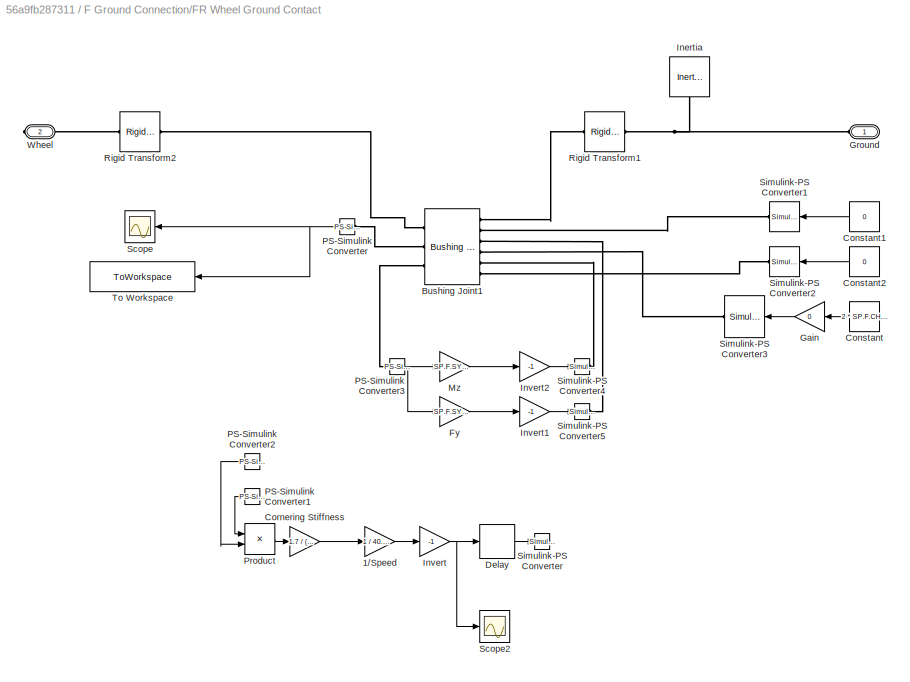
BLOCK [SubSystem] F Ground Connection/FR Wheel Ground Contact
  Ports = [0, 0, 0, 0, 0, 1, 1]
  RequestExecContextInheritance = off
BLOCK [Gain] F Ground Connection/FR Wheel Ground Contact/1//Speed
  Commented = on
  Gain = 1 / 40.4656
  OutDataTypeStr = Inherit: Inherit via internal rule
  ParamDataTypeStr = Inherit: Inherit via internal rule
  SaturateOnIntegerOverflow = off
BLOCK [Reference] F Ground Connection/FR Wheel Ground Contact/Bushing Joint1  REF=sm_lib/Joints/Bushing Joint
  Ports = [0, 0, 0, 0, 0, 6, 3]
  SourceBlock = sm_lib/Joints/Bushing Joint
  SourceProductBaseCode = MS
  SourceProductName = Simscape Multibody
  SourceType = Bushing Joint
BLOCK [Constant] F Ground Connection/FR Wheel Ground Contact/Constant
  Value = 2 * SP.F.CH.I.m
BLOCK [Constant] F Ground Connection/FR Wheel Ground Contact/Constant1
  Value = 0
BLOCK [Constant] F Ground Connection/FR Wheel Ground Contact/Constant2
  Value = 0
BLOCK [Gain] F Ground Connection/FR Wheel Ground Contact/Cornering Stiffness
  Commented = on
  Gain = 1.7 / (8 * pi / 180)
  OutDataTypeStr = Inherit: Inherit via internal rule
  ParamDataTypeStr = Inherit: Inherit via internal rule
  SaturateOnIntegerOverflow = off
BLOCK [Delay] F Ground Connection/FR Wheel Ground Contact/Delay
  Commented = on
  DelayLength = 1
  InitialCondition = 0
  InputPortMap = u0
  Ports = [1, 1]
BLOCK [Gain] F Ground Connection/FR Wheel Ground Contact/Fy
  Gain = SP.F.SY.cornering_force_coeffient
  OutDataTypeStr = Inherit: Inherit via internal rule
  ParamDataTypeStr = Inherit: Inherit via internal rule
  SaturateOnIntegerOverflow = off
BLOCK [Gain] F Ground Connection/FR Wheel Ground Contact/Gain
  Gain = 0
  OutDataTypeStr = Inherit: Inherit via internal rule
  ParamDataTypeStr = Inherit: Inherit via internal rule
  SaturateOnIntegerOverflow = off
BLOCK [PMIOPort] F Ground Connection/FR Wheel Ground Contact/Ground
  Side = Left
BLOCK [Reference] F Ground Connection/FR Wheel Ground Contact/Inertia  REF=sm_lib/Body Elements/Inertia
  Ports = [0, 0, 0, 0, 0, 0, 1]
  SourceBlock = sm_lib/Body Elements/Inertia
  SourceProductBaseCode = MS
  SourceProductName = Simscape Multibody
  SourceType = Inertia
BLOCK [Gain] F Ground Connection/FR Wheel Ground Contact/Invert
  Commented = on
  Gain = -1
  OutDataTypeStr = Inherit: Inherit via internal rule
  ParamDataTypeStr = Inherit: Inherit via internal rule
  SaturateOnIntegerOverflow = off
BLOCK [Gain] F Ground Connection/FR Wheel Ground Contact/Invert1
  Gain = -1
  OutDataTypeStr = Inherit: Inherit via internal rule
  ParamDataTypeStr = Inherit: Inherit via internal rule
  SaturateOnIntegerOverflow = off
BLOCK [Gain] F Ground Connection/FR Wheel Ground Contact/Invert2
  Gain = -1
  OutDataTypeStr = Inherit: Inherit via internal rule
  ParamDataTypeStr = Inherit: Inherit via internal rule
  SaturateOnIntegerOverflow = off
BLOCK [Gain] F Ground Connection/FR Wheel Ground Contact/Mz
  Gain = SP.F.SY.cornering_moment_coeffient
  OutDataTypeStr = Inherit: Inherit via internal rule
  ParamDataTypeStr = Inherit: Inherit via internal rule
  SaturateOnIntegerOverflow = off
BLOCK [Reference] F Ground Connection/FR Wheel Ground Contact/PS-Simulink Converter  REF=nesl_utility/PS-Simulink
Converter
  Ports = [0, 1, 0, 0, 0, 1]
  SourceBlock = nesl_utility/PS-Simulink\nConverter
  SourceProductBaseCode = SS
  SourceProductName = Simscape
  SourceType = PS-Simulink\nConverter
BLOCK [Reference] F Ground Connection/FR Wheel Ground Contact/PS-Simulink Converter1  REF=nesl_utility/PS-Simulink
Converter
  Commented = on
  Ports = [0, 1, 0, 0, 0, 1]
  SourceBlock = nesl_utility/PS-Simulink\nConverter
  SourceProductBaseCode = SS
  SourceProductName = Simscape
  SourceType = PS-Simulink\nConverter
BLOCK [Reference] F Ground Connection/FR Wheel Ground Contact/PS-Simulink Converter2  REF=nesl_utility/PS-Simulink
Converter
  Commented = on
  Ports = [0, 1, 0, 0, 0, 1]
  SourceBlock = nesl_utility/PS-Simulink\nConverter
  SourceProductBaseCode = SS
  SourceProductName = Simscape
  SourceType = PS-Simulink\nConverter
BLOCK [Reference] F Ground Connection/FR Wheel Ground Contact/PS-Simulink Converter3  REF=nesl_utility/PS-Simulink
Converter
  Ports = [0, 1, 0, 0, 0, 1]
  SourceBlock = nesl_utility/PS-Simulink\nConverter
  SourceProductBaseCode = SS
  SourceProductName = Simscape
  SourceType = PS-Simulink\nConverter
BLOCK [Product] F Ground Connection/FR Wheel Ground Contact/Product
  Commented = on
  InputSameDT = off
  OutDataTypeStr = Inherit: Inherit via internal rule
  Ports = [2, 1]
  RndMeth = Floor
  SaturateOnIntegerOverflow = off
BLOCK [Reference] F Ground Connection/FR Wheel Ground Contact/Rigid Transform1  REF=sm_lib/Frames and
Transforms/Rigid
Transform
  Ports = [0, 0, 0, 0, 0, 1, 1]
  SourceBlock = sm_lib/Frames and\nTransforms/Rigid\nTransform
  SourceProductBaseCode = MS
  SourceProductName = Simscape Multibody
  SourceType = Rigid\nTransform
BLOCK [Reference] F Ground Connection/FR Wheel Ground Contact/Rigid Transform2  REF=sm_lib/Frames and
Transforms/Rigid
Transform
  Ports = [0, 0, 0, 0, 0, 1, 1]
  SourceBlock = sm_lib/Frames and\nTransforms/Rigid\nTransform
  SourceProductBaseCode = MS
  SourceProductName = Simscape Multibody
  SourceType = Rigid\nTransform
BLOCK [Scope] F Ground Connection/FR Wheel Ground Contact/Scope
  Floating = off
  NumInputPorts = 1
  Ports = [1]
  ScopeSpecificationString = Simulink.scopes.TimeScopeBlockCfg('CurrentConfiguration', extmgr.ConfigurationSet(extmgr.Configuration('Core','General UI',true),extmgr.Configuration('Core','Source UI',true),extmgr.Configuration('Sources','WiredSimulink',true,'DataLoggingVariableName','ScopeData1'),extmgr.Configuration('Visuals','Time Domain',true,'SerializedDisplays',{struct('MinYLimReal','58.62926','MaxYLimReal','119.59687','YL...<+1413ch>
BLOCK [Scope] F Ground Connection/FR Wheel Ground Contact/Scope2
  Commented = on
  Floating = off
  NumInputPorts = 1
  Ports = [1]
  ScopeSpecificationString = Simulink.scopes.TimeScopeBlockCfg('CurrentConfiguration', extmgr.ConfigurationSet(extmgr.Configuration('Core','General UI',true),extmgr.Configuration('Core','Source UI',true),extmgr.Configuration('Sources','WiredSimulink',true,'DataLoggingVariableName','ScopeData3'),extmgr.Configuration('Visuals','Time Domain',true,'SerializedDisplays',{struct('MinYLimReal','-65.64082','MaxYLimReal','7.29342','YLa...<+1394ch>
BLOCK [Reference] F Ground Connection/FR Wheel Ground Contact/Simulink-PS Converter  REF=nesl_utility/Simulink-PS
Converter
  Commented = on
  Ports = [1, 0, 0, 0, 0, 0, 1]
  SourceBlock = nesl_utility/Simulink-PS\nConverter
  SourceProductBaseCode = SS
  SourceProductName = Simscape
  SourceType = Simulink-PS\nConverter
BLOCK [Reference] F Ground Connection/FR Wheel Ground Contact/Simulink-PS Converter1  REF=nesl_utility/Simulink-PS
Converter
  Ports = [1, 0, 0, 0, 0, 0, 1]
  SourceBlock = nesl_utility/Simulink-PS\nConverter
  SourceProductBaseCode = SS
  SourceProductName = Simscape
  SourceType = Simulink-PS\nConverter
BLOCK [Reference] F Ground Connection/FR Wheel Ground Contact/Simulink-PS Converter2  REF=nesl_utility/Simulink-PS
Converter
  Ports = [1, 0, 0, 0, 0, 0, 1]
  SourceBlock = nesl_utility/Simulink-PS\nConverter
  SourceProductBaseCode = SS
  SourceProductName = Simscape
  SourceType = Simulink-PS\nConverter
BLOCK [Reference] F Ground Connection/FR Wheel Ground Contact/Simulink-PS Converter3  REF=nesl_utility/Simulink-PS
Converter
  Ports = [1, 0, 0, 0, 0, 0, 1]
  SourceBlock = nesl_utility/Simulink-PS\nConverter
  SourceProductBaseCode = SS
  SourceProductName = Simscape
  SourceType = Simulink-PS\nConverter
BLOCK [Reference] F Ground Connection/FR Wheel Ground Contact/Simulink-PS Converter4  REF=nesl_utility/Simulink-PS
Converter
  Ports = [1, 0, 0, 0, 0, 0, 1]
  SourceBlock = nesl_utility/Simulink-PS\nConverter
  SourceProductBaseCode = SS
  SourceProductName = Simscape
  SourceType = Simulink-PS\nConverter
BLOCK [Reference] F Ground Connection/FR Wheel Ground Contact/Simulink-PS Converter5  REF=nesl_utility/Simulink-PS
Converter
  Ports = [1, 0, 0, 0, 0, 0, 1]
  SourceBlock = nesl_utility/Simulink-PS\nConverter
  SourceProductBaseCode = SS
  SourceProductName = Simscape
  SourceType = Simulink-PS\nConverter
BLOCK [ToWorkspace] F Ground Connection/FR Wheel Ground Contact/To Workspace
  FixptAsFi = on
  MaxDataPoints = inf
  Ports = [1]
  SampleTime = -1
  SaveFormat = Timeseries
  VariableName = FR_WP_tire_load
BLOCK [PMIOPort] F Ground Connection/FR Wheel Ground Contact/Wheel
  Port = 2
  Side = Right
BLOCK [PMIOPort] F Ground Connection/Left Wheel
  Side = Left
BLOCK [PMIOPort] F Ground Connection/Right Wheel
  Port = 2
  Side = Right
BLOCK [Reference] F Ground Connection/Weld Joint  REF=sm_lib/Joints/Weld Joint
  Ports = [0, 0, 0, 0, 0, 1, 1]
  SourceBlock = sm_lib/Joints/Weld Joint
  SourceProductBaseCode = MS
  SourceProductName = Simscape Multibody
  SourceType = Weld Joint
BLOCK [Reference] F Ground Connection/Weld Joint1  REF=sm_lib/Joints/Weld Joint
  Ports = [0, 0, 0, 0, 0, 1, 1]
  SourceBlock = sm_lib/Joints/Weld Joint
  SourceProductBaseCode = MS
  SourceProductName = Simscape Multibody
  SourceType = Weld Joint
BLOCK [PMIOPort] F Ground Connection/World
  Port = 3
  Side = Left
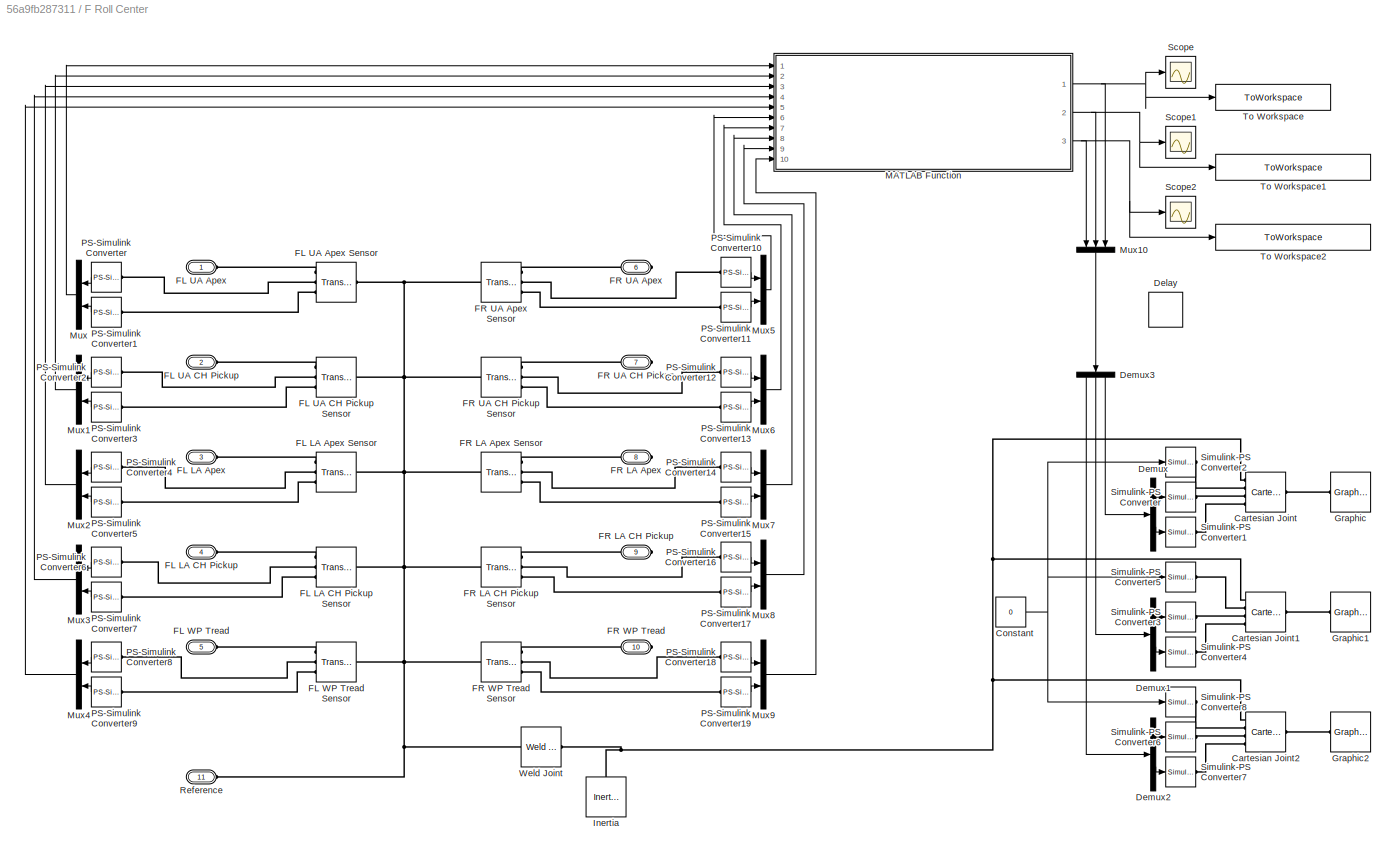
BLOCK [SubSystem] F Roll Center
  Ports = [0, 0, 0, 0, 0, 6, 5]
  RequestExecContextInheritance = off
BLOCK [Reference] F Roll Center/Cartesian Joint  REF=sm_lib/Joints/Cartesian
Joint
  Commented = on
  Ports = [0, 0, 0, 0, 0, 4, 1]
  SourceBlock = sm_lib/Joints/Cartesian\nJoint
  SourceProductBaseCode = MS
  SourceProductName = Simscape Multibody
  SourceType = Cartesian\nJoint
BLOCK [Reference] F Roll Center/Cartesian Joint1  REF=sm_lib/Joints/Cartesian
Joint
  Commented = on
  Ports = [0, 0, 0, 0, 0, 4, 1]
  SourceBlock = sm_lib/Joints/Cartesian\nJoint
  SourceProductBaseCode = MS
  SourceProductName = Simscape Multibody
  SourceType = Cartesian\nJoint
BLOCK [Reference] F Roll Center/Cartesian Joint2  REF=sm_lib/Joints/Cartesian
Joint
  Commented = on
  Ports = [0, 0, 0, 0, 0, 4, 1]
  SourceBlock = sm_lib/Joints/Cartesian\nJoint
  SourceProductBaseCode = MS
  SourceProductName = Simscape Multibody
  SourceType = Cartesian\nJoint
BLOCK [Constant] F Roll Center/Constant
  Commented = on
  Value = 0
BLOCK [Delay] F Roll Center/Delay
  Commented = on
  DelayLength = 1
  InitialCondition = 0
  InputPortMap = u0
  Ports = [1, 1]
BLOCK [Demux] F Roll Center/Demux
  Commented = on
  DisplayOption = bar
  Outputs = 2
  Ports = [1, 2]
BLOCK [Demux] F Roll Center/Demux1
  Commented = on
  DisplayOption = bar
  Outputs = 2
  Ports = [1, 2]
BLOCK [Demux] F Roll Center/Demux2
  Commented = on
  DisplayOption = bar
  Outputs = 2
  Ports = [1, 2]
BLOCK [Demux] F Roll Center/Demux3
  Commented = on
  DisplayOption = bar
  Outputs = 3
  Ports = [1, 3]
BLOCK [PMIOPort] F Roll Center/FL LA Apex
  Port = 3
  Side = Left
BLOCK [Reference] F Roll Center/FL LA Apex Sensor  REF=sm_lib/Frames and
Transforms/Transform
Sensor
  Ports = [0, 0, 0, 0, 0, 1, 3]
  SourceBlock = sm_lib/Frames and\nTransforms/Transform\nSensor
  SourceProductBaseCode = MS
  SourceProductName = Simscape Multibody
  SourceType = Transform\nSensor
BLOCK [PMIOPort] F Roll Center/FL LA CH Pickup
  Port = 4
  Side = Left
BLOCK [Reference] F Roll Center/FL LA CH Pickup Sensor  REF=sm_lib/Frames and
Transforms/Transform
Sensor
  Ports = [0, 0, 0, 0, 0, 1, 3]
  SourceBlock = sm_lib/Frames and\nTransforms/Transform\nSensor
  SourceProductBaseCode = MS
  SourceProductName = Simscape Multibody
  SourceType = Transform\nSensor
BLOCK [PMIOPort] F Roll Center/FL UA Apex
  Side = Left
BLOCK [Reference] F Roll Center/FL UA Apex Sensor  REF=sm_lib/Frames and
Transforms/Transform
Sensor
  Ports = [0, 0, 0, 0, 0, 1, 3]
  SourceBlock = sm_lib/Frames and\nTransforms/Transform\nSensor
  SourceProductBaseCode = MS
  SourceProductName = Simscape Multibody
  SourceType = Transform\nSensor
BLOCK [PMIOPort] F Roll Center/FL UA CH Pickup
  Port = 2
  Side = Left
BLOCK [Reference] F Roll Center/FL UA CH Pickup Sensor  REF=sm_lib/Frames and
Transforms/Transform
Sensor
  Ports = [0, 0, 0, 0, 0, 1, 3]
  SourceBlock = sm_lib/Frames and\nTransforms/Transform\nSensor
  SourceProductBaseCode = MS
  SourceProductName = Simscape Multibody
  SourceType = Transform\nSensor
BLOCK [PMIOPort] F Roll Center/FL WP Tread
  Port = 5
  Side = Left
BLOCK [Reference] F Roll Center/FL WP Tread Sensor  REF=sm_lib/Frames and
Transforms/Transform
Sensor
  Ports = [0, 0, 0, 0, 0, 1, 3]
  SourceBlock = sm_lib/Frames and\nTransforms/Transform\nSensor
  SourceProductBaseCode = MS
  SourceProductName = Simscape Multibody
  SourceType = Transform\nSensor
BLOCK [PMIOPort] F Roll Center/FR LA Apex
  Port = 8
  Side = Right
BLOCK [Reference] F Roll Center/FR LA Apex Sensor  REF=sm_lib/Frames and
Transforms/Transform
Sensor
  Ports = [0, 0, 0, 0, 0, 1, 3]
  SourceBlock = sm_lib/Frames and\nTransforms/Transform\nSensor
  SourceProductBaseCode = MS
  SourceProductName = Simscape Multibody
  SourceType = Transform\nSensor
BLOCK [PMIOPort] F Roll Center/FR LA CH Pickup
  Port = 9
  Side = Right
BLOCK [Reference] F Roll Center/FR LA CH Pickup Sensor  REF=sm_lib/Frames and
Transforms/Transform
Sensor
  Ports = [0, 0, 0, 0, 0, 1, 3]
  SourceBlock = sm_lib/Frames and\nTransforms/Transform\nSensor
  SourceProductBaseCode = MS
  SourceProductName = Simscape Multibody
  SourceType = Transform\nSensor
BLOCK [PMIOPort] F Roll Center/FR UA Apex
  Port = 6
  Side = Right
BLOCK [Reference] F Roll Center/FR UA Apex Sensor  REF=sm_lib/Frames and
Transforms/Transform
Sensor
  Ports = [0, 0, 0, 0, 0, 1, 3]
  SourceBlock = sm_lib/Frames and\nTransforms/Transform\nSensor
  SourceProductBaseCode = MS
  SourceProductName = Simscape Multibody
  SourceType = Transform\nSensor
BLOCK [PMIOPort] F Roll Center/FR UA CH Pickup
  Port = 7
  Side = Right
BLOCK [Reference] F Roll Center/FR UA CH Pickup Sensor  REF=sm_lib/Frames and
Transforms/Transform
Sensor
  Ports = [0, 0, 0, 0, 0, 1, 3]
  SourceBlock = sm_lib/Frames and\nTransforms/Transform\nSensor
  SourceProductBaseCode = MS
  SourceProductName = Simscape Multibody
  SourceType = Transform\nSensor
BLOCK [PMIOPort] F Roll Center/FR WP Tread
  Port = 10
  Side = Right
BLOCK [Reference] F Roll Center/FR WP Tread Sensor  REF=sm_lib/Frames and
Transforms/Transform
Sensor
  Ports = [0, 0, 0, 0, 0, 1, 3]
  SourceBlock = sm_lib/Frames and\nTransforms/Transform\nSensor
  SourceProductBaseCode = MS
  SourceProductName = Simscape Multibody
  SourceType = Transform\nSensor
BLOCK [Reference] F Roll Center/Graphic  REF=sm_lib/Body Elements/Graphic
  Commented = on
  Ports = [0, 0, 0, 0, 0, 0, 1]
  SourceBlock = sm_lib/Body Elements/Graphic
  SourceProductBaseCode = MS
  SourceProductName = Simscape Multibody
  SourceType = Graphic
BLOCK [Reference] F Roll Center/Graphic1  REF=sm_lib/Body Elements/Graphic
  Commented = on
  Ports = [0, 0, 0, 0, 0, 0, 1]
  SourceBlock = sm_lib/Body Elements/Graphic
  SourceProductBaseCode = MS
  SourceProductName = Simscape Multibody
  SourceType = Graphic
BLOCK [Reference] F Roll Center/Graphic2  REF=sm_lib/Body Elements/Graphic
  Commented = on
  Ports = [0, 0, 0, 0, 0, 0, 1]
  SourceBlock = sm_lib/Body Elements/Graphic
  SourceProductBaseCode = MS
  SourceProductName = Simscape Multibody
  SourceType = Graphic
BLOCK [Reference] F Roll Center/Inertia  REF=sm_lib/Body Elements/Inertia
  Commented = on
  Ports = [0, 0, 0, 0, 0, 0, 1]
  SourceBlock = sm_lib/Body Elements/Inertia
  SourceProductBaseCode = MS
  SourceProductName = Simscape Multibody
  SourceType = Inertia
BLOCK [SubSystem] F Roll Center/MATLAB Function
  ErrorFcn = Stateflow.Translate.translate
  MinAlgLoopOccurrences = on
  PermitHierarchicalResolution = ExplicitOnly
  Ports = [10, 3]
  RequestExecContextInheritance = off
  SFBlockType = MATLAB Function
  TreatAsAtomicUnit = on
BLOCK [Demux] F Roll Center/MATLAB Function/ Demux 
  Outputs = 1
  Ports = [1, 1]
BLOCK [S-Function] F Roll Center/MATLAB Function/ SFunction 
  EnableBusSupport = on
  FunctionName = sf_sfun
  PortCounts = [10 4]
  Ports = [10, 4]
  SFcnIsStateOwnerBlock = off
  SFunctionDeploymentMode = off
  Tag = Stateflow S-Function 2
BLOCK [Terminator] F Roll Center/MATLAB Function/ Terminator 
BLOCK [Outport] F Roll Center/MATLAB Function/L_IC
  IconDisplay = Port number
  Port = 2
  VectorParamsAs1DForOutWhenUnconnected = off
BLOCK [Inport] F Roll Center/MATLAB Function/L_LA_CH_pickup
  IconDisplay = Port number
  Port = 4
BLOCK [Inport] F Roll Center/MATLAB Function/L_LA_apex
  IconDisplay = Port number
  Port = 3
BLOCK [Inport] F Roll Center/MATLAB Function/L_UA_CH_pickup
  IconDisplay = Port number
  Port = 2
BLOCK [Inport] F Roll Center/MATLAB Function/L_UA_apex
  IconDisplay = Port number
BLOCK [Inport] F Roll Center/MATLAB Function/L_WP_tread
  IconDisplay = Port number
  Port = 5
BLOCK [Outport] F Roll Center/MATLAB Function/RC
  IconDisplay = Port number
  VectorParamsAs1DForOutWhenUnconnected = off
BLOCK [Outport] F Roll Center/MATLAB Function/R_IC
  IconDisplay = Port number
  Port = 3
  VectorParamsAs1DForOutWhenUnconnected = off
BLOCK [Inport] F Roll Center/MATLAB Function/R_LA_CH_pickup
  IconDisplay = Port number
  Port = 9
BLOCK [Inport] F Roll Center/MATLAB Function/R_LA_apex
  IconDisplay = Port number
  Port = 8
BLOCK [Inport] F Roll Center/MATLAB Function/R_UA_CH_pickup
  IconDisplay = Port number
  Port = 7
BLOCK [Inport] F Roll Center/MATLAB Function/R_UA_apex
  IconDisplay = Port number
  Port = 6
BLOCK [Inport] F Roll Center/MATLAB Function/R_WP_tread
  IconDisplay = Port number
  Port = 10
BLOCK [Mux] F Roll Center/Mux
  DisplayOption = bar
  Inputs = 2
  Ports = [2, 1]
BLOCK [Mux] F Roll Center/Mux1
  DisplayOption = bar
  Inputs = 2
  Ports = [2, 1]
BLOCK [Mux] F Roll Center/Mux10
  Commented = on
  DisplayOption = bar
  Inputs = 3
  Ports = [3, 1]
BLOCK [Mux] F Roll Center/Mux2
  DisplayOption = bar
  Inputs = 2
  Ports = [2, 1]
BLOCK [Mux] F Roll Center/Mux3
  DisplayOption = bar
  Inputs = 2
  Ports = [2, 1]
BLOCK [Mux] F Roll Center/Mux4
  DisplayOption = bar
  Inputs = 2
  Ports = [2, 1]
BLOCK [Mux] F Roll Center/Mux5
  DisplayOption = bar
  Inputs = 2
  Ports = [2, 1]
BLOCK [Mux] F Roll Center/Mux6
  DisplayOption = bar
  Inputs = 2
  Ports = [2, 1]
BLOCK [Mux] F Roll Center/Mux7
  DisplayOption = bar
  Inputs = 2
  Ports = [2, 1]
BLOCK [Mux] F Roll Center/Mux8
  DisplayOption = bar
  Inputs = 2
  Ports = [2, 1]
BLOCK [Mux] F Roll Center/Mux9
  DisplayOption = bar
  Inputs = 2
  Ports = [2, 1]
BLOCK [Reference] F Roll Center/PS-Simulink Converter  REF=nesl_utility/PS-Simulink
Converter
  Ports = [0, 1, 0, 0, 0, 1]
  SourceBlock = nesl_utility/PS-Simulink\nConverter
  SourceProductBaseCode = SS
  SourceProductName = Simscape
  SourceType = PS-Simulink\nConverter
BLOCK [Reference] F Roll Center/PS-Simulink Converter1  REF=nesl_utility/PS-Simulink
Converter
  Ports = [0, 1, 0, 0, 0, 1]
  SourceBlock = nesl_utility/PS-Simulink\nConverter
  SourceProductBaseCode = SS
  SourceProductName = Simscape
  SourceType = PS-Simulink\nConverter
BLOCK [Reference] F Roll Center/PS-Simulink Converter10  REF=nesl_utility/PS-Simulink
Converter
  Ports = [0, 1, 0, 0, 0, 1]
  SourceBlock = nesl_utility/PS-Simulink\nConverter
  SourceProductBaseCode = SS
  SourceProductName = Simscape
  SourceType = PS-Simulink\nConverter
BLOCK [Reference] F Roll Center/PS-Simulink Converter11  REF=nesl_utility/PS-Simulink
Converter
  Ports = [0, 1, 0, 0, 0, 1]
  SourceBlock = nesl_utility/PS-Simulink\nConverter
  SourceProductBaseCode = SS
  SourceProductName = Simscape
  SourceType = PS-Simulink\nConverter
BLOCK [Reference] F Roll Center/PS-Simulink Converter12  REF=nesl_utility/PS-Simulink
Converter
  Ports = [0, 1, 0, 0, 0, 1]
  SourceBlock = nesl_utility/PS-Simulink\nConverter
  SourceProductBaseCode = SS
  SourceProductName = Simscape
  SourceType = PS-Simulink\nConverter
BLOCK [Reference] F Roll Center/PS-Simulink Converter13  REF=nesl_utility/PS-Simulink
Converter
  Ports = [0, 1, 0, 0, 0, 1]
  SourceBlock = nesl_utility/PS-Simulink\nConverter
  SourceProductBaseCode = SS
  SourceProductName = Simscape
  SourceType = PS-Simulink\nConverter
BLOCK [Reference] F Roll Center/PS-Simulink Converter14  REF=nesl_utility/PS-Simulink
Converter
  Ports = [0, 1, 0, 0, 0, 1]
  SourceBlock = nesl_utility/PS-Simulink\nConverter
  SourceProductBaseCode = SS
  SourceProductName = Simscape
  SourceType = PS-Simulink\nConverter
BLOCK [Reference] F Roll Center/PS-Simulink Converter15  REF=nesl_utility/PS-Simulink
Converter
  Ports = [0, 1, 0, 0, 0, 1]
  SourceBlock = nesl_utility/PS-Simulink\nConverter
  SourceProductBaseCode = SS
  SourceProductName = Simscape
  SourceType = PS-Simulink\nConverter
BLOCK [Reference] F Roll Center/PS-Simulink Converter16  REF=nesl_utility/PS-Simulink
Converter
  Ports = [0, 1, 0, 0, 0, 1]
  SourceBlock = nesl_utility/PS-Simulink\nConverter
  SourceProductBaseCode = SS
  SourceProductName = Simscape
  SourceType = PS-Simulink\nConverter
BLOCK [Reference] F Roll Center/PS-Simulink Converter17  REF=nesl_utility/PS-Simulink
Converter
  Ports = [0, 1, 0, 0, 0, 1]
  SourceBlock = nesl_utility/PS-Simulink\nConverter
  SourceProductBaseCode = SS
  SourceProductName = Simscape
  SourceType = PS-Simulink\nConverter
BLOCK [Reference] F Roll Center/PS-Simulink Converter18  REF=nesl_utility/PS-Simulink
Converter
  Ports = [0, 1, 0, 0, 0, 1]
  SourceBlock = nesl_utility/PS-Simulink\nConverter
  SourceProductBaseCode = SS
  SourceProductName = Simscape
  SourceType = PS-Simulink\nConverter
BLOCK [Reference] F Roll Center/PS-Simulink Converter19  REF=nesl_utility/PS-Simulink
Converter
  Ports = [0, 1, 0, 0, 0, 1]
  SourceBlock = nesl_utility/PS-Simulink\nConverter
  SourceProductBaseCode = SS
  SourceProductName = Simscape
  SourceType = PS-Simulink\nConverter
BLOCK [Reference] F Roll Center/PS-Simulink Converter2  REF=nesl_utility/PS-Simulink
Converter
  Ports = [0, 1, 0, 0, 0, 1]
  SourceBlock = nesl_utility/PS-Simulink\nConverter
  SourceProductBaseCode = SS
  SourceProductName = Simscape
  SourceType = PS-Simulink\nConverter
BLOCK [Reference] F Roll Center/PS-Simulink Converter3  REF=nesl_utility/PS-Simulink
Converter
  Ports = [0, 1, 0, 0, 0, 1]
  SourceBlock = nesl_utility/PS-Simulink\nConverter
  SourceProductBaseCode = SS
  SourceProductName = Simscape
  SourceType = PS-Simulink\nConverter
BLOCK [Reference] F Roll Center/PS-Simulink Converter4  REF=nesl_utility/PS-Simulink
Converter
  Ports = [0, 1, 0, 0, 0, 1]
  SourceBlock = nesl_utility/PS-Simulink\nConverter
  SourceProductBaseCode = SS
  SourceProductName = Simscape
  SourceType = PS-Simulink\nConverter
BLOCK [Reference] F Roll Center/PS-Simulink Converter5  REF=nesl_utility/PS-Simulink
Converter
  Ports = [0, 1, 0, 0, 0, 1]
  SourceBlock = nesl_utility/PS-Simulink\nConverter
  SourceProductBaseCode = SS
  SourceProductName = Simscape
  SourceType = PS-Simulink\nConverter
BLOCK [Reference] F Roll Center/PS-Simulink Converter6  REF=nesl_utility/PS-Simulink
Converter
  Ports = [0, 1, 0, 0, 0, 1]
  SourceBlock = nesl_utility/PS-Simulink\nConverter
  SourceProductBaseCode = SS
  SourceProductName = Simscape
  SourceType = PS-Simulink\nConverter
BLOCK [Reference] F Roll Center/PS-Simulink Converter7  REF=nesl_utility/PS-Simulink
Converter
  Ports = [0, 1, 0, 0, 0, 1]
  SourceBlock = nesl_utility/PS-Simulink\nConverter
  SourceProductBaseCode = SS
  SourceProductName = Simscape
  SourceType = PS-Simulink\nConverter
BLOCK [Reference] F Roll Center/PS-Simulink Converter8  REF=nesl_utility/PS-Simulink
Converter
  Ports = [0, 1, 0, 0, 0, 1]
  SourceBlock = nesl_utility/PS-Simulink\nConverter
  SourceProductBaseCode = SS
  SourceProductName = Simscape
  SourceType = PS-Simulink\nConverter
BLOCK [Reference] F Roll Center/PS-Simulink Converter9  REF=nesl_utility/PS-Simulink
Converter
  Ports = [0, 1, 0, 0, 0, 1]
  SourceBlock = nesl_utility/PS-Simulink\nConverter
  SourceProductBaseCode = SS
  SourceProductName = Simscape
  SourceType = PS-Simulink\nConverter
BLOCK [PMIOPort] F Roll Center/Reference
  Port = 11
  Side = Left
BLOCK [Scope] F Roll Center/Scope
  Floating = off
  NumInputPorts = 1
  Ports = [1]
  ScopeSpecificationString = Simulink.scopes.TimeScopeBlockCfg('CurrentConfiguration', extmgr.ConfigurationSet(extmgr.Configuration('Core','General UI',true),extmgr.Configuration('Core','Source UI',true),extmgr.Configuration('Sources','WiredSimulink',true,'DataLoggingVariableName','ScopeData1'),extmgr.Configuration('Visuals','Time Domain',true,'SerializedDisplays',{struct('MinYLimReal','-3.59766','MaxYLimReal','3.60141','YLab...<+1430ch>
BLOCK [Scope] F Roll Center/Scope1
  Floating = off
  NumInputPorts = 1
  Ports = [1]
  ScopeSpecificationString = Simulink.scopes.TimeScopeBlockCfg('CurrentConfiguration', extmgr.ConfigurationSet(extmgr.Configuration('Core','General UI',true),extmgr.Configuration('Core','Source UI',true),extmgr.Configuration('Sources','WiredSimulink',true,'DataLoggingVariableName','ScopeData2'),extmgr.Configuration('Visuals','Time Domain',true,'SerializedDisplays',{struct('MinYLimReal','-18.38802','MaxYLimReal','5.17829','YLa...<+1363ch>
BLOCK [Scope] F Roll Center/Scope2
  Floating = off
  NumInputPorts = 1
  Ports = [1]
  ScopeSpecificationString = Simulink.scopes.TimeScopeBlockCfg('CurrentConfiguration', extmgr.ConfigurationSet(extmgr.Configuration('Core','General UI',true),extmgr.Configuration('Core','Source UI',true),extmgr.Configuration('Sources','WiredSimulink',true,'DataLoggingVariableName','ScopeData3'),extmgr.Configuration('Visuals','Time Domain',true),extmgr.Configuration('Tools','Plot Navigation',true),extmgr.Configuration('Tools',...<+58ch>
BLOCK [Reference] F Roll Center/Simulink-PS Converter  REF=nesl_utility/Simulink-PS
Converter
  Commented = on
  Ports = [1, 0, 0, 0, 0, 0, 1]
  SourceBlock = nesl_utility/Simulink-PS\nConverter
  SourceProductBaseCode = SS
  SourceProductName = Simscape
  SourceType = Simulink-PS\nConverter
BLOCK [Reference] F Roll Center/Simulink-PS Converter1  REF=nesl_utility/Simulink-PS
Converter
  Commented = on
  Ports = [1, 0, 0, 0, 0, 0, 1]
  SourceBlock = nesl_utility/Simulink-PS\nConverter
  SourceProductBaseCode = SS
  SourceProductName = Simscape
  SourceType = Simulink-PS\nConverter
BLOCK [Reference] F Roll Center/Simulink-PS Converter2  REF=nesl_utility/Simulink-PS
Converter
  Commented = on
  Ports = [1, 0, 0, 0, 0, 0, 1]
  SourceBlock = nesl_utility/Simulink-PS\nConverter
  SourceProductBaseCode = SS
  SourceProductName = Simscape
  SourceType = Simulink-PS\nConverter
BLOCK [Reference] F Roll Center/Simulink-PS Converter3  REF=nesl_utility/Simulink-PS
Converter
  Commented = on
  Ports = [1, 0, 0, 0, 0, 0, 1]
  SourceBlock = nesl_utility/Simulink-PS\nConverter
  SourceProductBaseCode = SS
  SourceProductName = Simscape
  SourceType = Simulink-PS\nConverter
BLOCK [Reference] F Roll Center/Simulink-PS Converter4  REF=nesl_utility/Simulink-PS
Converter
  Commented = on
  Ports = [1, 0, 0, 0, 0, 0, 1]
  SourceBlock = nesl_utility/Simulink-PS\nConverter
  SourceProductBaseCode = SS
  SourceProductName = Simscape
  SourceType = Simulink-PS\nConverter
BLOCK [Reference] F Roll Center/Simulink-PS Converter5  REF=nesl_utility/Simulink-PS
Converter
  Commented = on
  Ports = [1, 0, 0, 0, 0, 0, 1]
  SourceBlock = nesl_utility/Simulink-PS\nConverter
  SourceProductBaseCode = SS
  SourceProductName = Simscape
  SourceType = Simulink-PS\nConverter
BLOCK [Reference] F Roll Center/Simulink-PS Converter6  REF=nesl_utility/Simulink-PS
Converter
  Commented = on
  Ports = [1, 0, 0, 0, 0, 0, 1]
  SourceBlock = nesl_utility/Simulink-PS\nConverter
  SourceProductBaseCode = SS
  SourceProductName = Simscape
  SourceType = Simulink-PS\nConverter
BLOCK [Reference] F Roll Center/Simulink-PS Converter7  REF=nesl_utility/Simulink-PS
Converter
  Commented = on
  Ports = [1, 0, 0, 0, 0, 0, 1]
  SourceBlock = nesl_utility/Simulink-PS\nConverter
  SourceProductBaseCode = SS
  SourceProductName = Simscape
  SourceType = Simulink-PS\nConverter
BLOCK [Reference] F Roll Center/Simulink-PS Converter8  REF=nesl_utility/Simulink-PS
Converter
  Commented = on
  Ports = [1, 0, 0, 0, 0, 0, 1]
  SourceBlock = nesl_utility/Simulink-PS\nConverter
  SourceProductBaseCode = SS
  SourceProductName = Simscape
  SourceType = Simulink-PS\nConverter
BLOCK [ToWorkspace] F Roll Center/To Workspace
  FixptAsFi = on
  MaxDataPoints = inf
  Ports = [1]
  SampleTime = -1
  SaveFormat = Timeseries
  VariableName = F_SY_roll_center
BLOCK [ToWorkspace] F Roll Center/To Workspace1
  FixptAsFi = on
  MaxDataPoints = inf
  Ports = [1]
  SampleTime = -1
  SaveFormat = Timeseries
  VariableName = FL_SY_instant_center
BLOCK [ToWorkspace] F Roll Center/To Workspace2
  FixptAsFi = on
  MaxDataPoints = inf
  Ports = [1]
  SampleTime = -1
  SaveFormat = Timeseries
  VariableName = FR_SY_instant_center
BLOCK [Reference] F Roll Center/Weld Joint  REF=sm_lib/Joints/Weld Joint
  Commented = on
  Ports = [0, 0, 0, 0, 0, 1, 1]
  SourceBlock = sm_lib/Joints/Weld Joint
  SourceProductBaseCode = MS
  SourceProductName = Simscape Multibody
  SourceType = Weld Joint
BLOCK [SubSystem] F Track Sensor
  Ports = [0, 0, 0, 0, 0, 1, 1]
  RequestExecContextInheritance = off
BLOCK [PMIOPort] F Track Sensor/Left Wheel
  Side = Left
BLOCK [Reference] F Track Sensor/PS-Simulink Converter  REF=nesl_utility/PS-Simulink
Converter
  Ports = [0, 1, 0, 0, 0, 1]
  SourceBlock = nesl_utility/PS-Simulink\nConverter
  SourceProductBaseCode = SS
  SourceProductName = Simscape
  SourceType = PS-Simulink\nConverter
BLOCK [PMIOPort] F Track Sensor/Right Wheel
  Port = 2
  Side = Right
BLOCK [Scope] F Track Sensor/Scope
  Floating = off
  NumInputPorts = 1
  Ports = [1]
  ScopeSpecificationString = Simulink.scopes.TimeScopeBlockCfg('CurrentConfiguration', extmgr.ConfigurationSet(extmgr.Configuration('Core','General UI',true),extmgr.Configuration('Core','Source UI',true),extmgr.Configuration('Sources','WiredSimulink',true,'DataLoggingVariableName','ScopeData1'),extmgr.Configuration('Visuals','Time Domain',true,'SerializedDisplays',{struct('MinYLimReal','47.99133','MaxYLimReal','48.00096','YLa...<+1365ch>
BLOCK [ToWorkspace] F Track Sensor/To Workspace
  FixptAsFi = on
  MaxDataPoints = inf
  Ports = [1]
  SampleTime = -1
  SaveFormat = Timeseries
  VariableName = F_SY_track
BLOCK [Reference] F Track Sensor/Transform Sensor  REF=sm_lib/Frames and
Transforms/Transform
Sensor
  Ports = [0, 0, 0, 0, 0, 1, 2]
  SourceBlock = sm_lib/Frames and\nTransforms/Transform\nSensor
  SourceProductBaseCode = MS
  SourceProductName = Simscape Multibody
  SourceType = Transform\nSensor
BLOCK [SubSystem] FL Lower A-Arm
  Ports = [0, 0, 0, 0, 0, 2, 2]
  RequestExecContextInheritance = off
BLOCK [SubSystem] FL Lower A-Arm/Angle Sensor
  Ports = [0, 0, 0, 0, 0, 1, 1]
  RequestExecContextInheritance = off
BLOCK [PMIOPort] FL Lower A-Arm/Angle Sensor/Apex
  Side = Left
BLOCK [PMIOPort] FL Lower A-Arm/Angle Sensor/Base
  Port = 2
  Side = Right
BLOCK [Gain] FL Lower A-Arm/Angle Sensor/Gain
  Gain = 180 / pi
  OutDataTypeStr = Inherit: Inherit via internal rule
  ParamDataTypeStr = Inherit: Inherit via internal rule
  SaturateOnIntegerOverflow = off
BLOCK [Reference] FL Lower A-Arm/Angle Sensor/PS-Simulink Converter  REF=nesl_utility/PS-Simulink
Converter
  Ports = [0, 1, 0, 0, 0, 1]
  SourceBlock = nesl_utility/PS-Simulink\nConverter
  SourceProductBaseCode = SS
  SourceProductName = Simscape
  SourceType = PS-Simulink\nConverter
BLOCK [Reference] FL Lower A-Arm/Angle Sensor/PS-Simulink Converter1  REF=nesl_utility/PS-Simulink
Converter
  Ports = [0, 1, 0, 0, 0, 1]
  SourceBlock = nesl_utility/PS-Simulink\nConverter
  SourceProductBaseCode = SS
  SourceProductName = Simscape
  SourceType = PS-Simulink\nConverter
BLOCK [Scope] FL Lower A-Arm/Angle Sensor/Scope
  Floating = off
  NumInputPorts = 1
  Ports = [1]
  ScopeSpecificationString = Simulink.scopes.TimeScopeBlockCfg('CurrentConfiguration', extmgr.ConfigurationSet(extmgr.Configuration('Core','General UI',true),extmgr.Configuration('Core','Source UI',true),extmgr.Configuration('Sources','WiredSimulink',true,'DataLoggingVariableName','ScopeData1'),extmgr.Configuration('Visuals','Time Domain',true,'SerializedDisplays',{struct('MinYLimReal','6.35219','MaxYLimReal','12.41448','YLab...<+1365ch>
BLOCK [Reference] FL Lower A-Arm/Angle Sensor/Transform Sensor  REF=sm_lib/Frames and
Transforms/Transform
Sensor
  Ports = [0, 0, 0, 0, 0, 1, 3]
  SourceBlock = sm_lib/Frames and\nTransforms/Transform\nSensor
  SourceProductBaseCode = MS
  SourceProductName = Simscape Multibody
  SourceType = Transform\nSensor
BLOCK [Trigonometry] FL Lower A-Arm/Angle Sensor/Trigonometric Function
  Operator = atan2
  Ports = [2, 1]
BLOCK [PMIOPort] FL Lower A-Arm/Apex
  Port = 4
  Side = Left
BLOCK [SubSystem] FL Lower A-Arm/Apex Block
  Ports = [0, 0, 0, 0, 0, 1, 3]
  RequestExecContextInheritance = off
BLOCK [SubSystem] FL Lower A-Arm/Apex Block Old
  Commented = on
  Ports = [0, 0, 0, 0, 0, 2, 2]
  RequestExecContextInheritance = off
BLOCK [PMIOPort] FL Lower A-Arm/Apex Block Old/Apex
  Port = 2
  Side = Left
BLOCK [PMIOPort] FL Lower A-Arm/Apex Block Old/F Member Mount
  Port = 3
  Side = Right
BLOCK [Reference] FL Lower A-Arm/Apex Block Old/F Member Mount Transform  REF=sm_lib/Frames and
Transforms/Rigid
Transform
  Ports = [0, 0, 0, 0, 0, 1, 1]
  SourceBlock = sm_lib/Frames and\nTransforms/Rigid\nTransform
  SourceProductBaseCode = MS
  SourceProductName = Simscape Multibody
  SourceType = Rigid\nTransform
BLOCK [PMIOPort] FL Lower A-Arm/Apex Block Old/PR Pickup
  Side = Left
BLOCK [Reference] FL Lower A-Arm/Apex Block Old/PR Pickup Transform  REF=sm_lib/Frames and
Transforms/Rigid
Transform
  Ports = [0, 0, 0, 0, 0, 1, 1]
  SourceBlock = sm_lib/Frames and\nTransforms/Rigid\nTransform
  SourceProductBaseCode = MS
  SourceProductName = Simscape Multibody
  SourceType = Rigid\nTransform
BLOCK [PMIOPort] FL Lower A-Arm/Apex Block Old/R Member Mount
  Port = 4
  Side = Right
BLOCK [Reference] FL Lower A-Arm/Apex Block Old/R Member Mount Transform  REF=sm_lib/Frames and
Transforms/Rigid
Transform
  Ports = [0, 0, 0, 0, 0, 1, 1]
  SourceBlock = sm_lib/Frames and\nTransforms/Rigid\nTransform
  SourceProductBaseCode = MS
  SourceProductName = Simscape Multibody
  SourceType = Rigid\nTransform
BLOCK [Reference] FL Lower A-Arm/Apex Block Old/Revolute Joint  REF=sm_lib/Joints/Revolute Joint
  Ports = [0, 0, 0, 0, 0, 1, 1]
  SourceBlock = sm_lib/Joints/Revolute Joint
  SourceProductBaseCode = MS
  SourceProductName = Simscape Multibody
  SourceType = Revolute Joint
BLOCK [Reference] FL Lower A-Arm/Apex Block Old/Rigid Transform3  REF=sm_lib/Frames and
Transforms/Rigid
Transform
  Ports = [0, 0, 0, 0, 0, 1, 1]
  SourceBlock = sm_lib/Frames and\nTransforms/Rigid\nTransform
  SourceProductBaseCode = MS
  SourceProductName = Simscape Multibody
  SourceType = Rigid\nTransform
BLOCK [Reference] FL Lower A-Arm/Apex Block Old/Solid  REF=sm_lib/Body Elements/Extruded Solid
  Ports = [0, 0, 0, 0, 0, 0, 1]
  SourceBlock = sm_lib/Body Elements/Extruded Solid
  SourceProductBaseCode = MS
  SourceProductName = Simscape Multibody
  SourceType = Extruded Solid
BLOCK [PMIOPort] FL Lower A-Arm/Apex Block/Apex
  Side = Left
BLOCK [PMIOPort] FL Lower A-Arm/Apex Block/F Member Support
  Port = 2
  Side = Right
BLOCK [Reference] FL Lower A-Arm/Apex Block/F Member Support Tranform  REF=sm_lib/Frames and
Transforms/Rigid
Transform
  Ports = [0, 0, 0, 0, 0, 1, 1]
  SourceBlock = sm_lib/Frames and\nTransforms/Rigid\nTransform
  SourceProductBaseCode = MS
  SourceProductName = Simscape Multibody
  SourceType = Rigid\nTransform
BLOCK [Reference] FL Lower A-Arm/Apex Block/Mass Transform  REF=sm_lib/Frames and
Transforms/Rigid
Transform
  Ports = [0, 0, 0, 0, 0, 1, 1]
  SourceBlock = sm_lib/Frames and\nTransforms/Rigid\nTransform
  SourceProductBaseCode = MS
  SourceProductName = Simscape Multibody
  SourceType = Rigid\nTransform
BLOCK [PMIOPort] FL Lower A-Arm/Apex Block/PR Pickup
  Port = 3
  Side = Right
BLOCK [Reference] FL Lower A-Arm/Apex Block/PR Pickup Transform  REF=sm_lib/Frames and
Transforms/Rigid
Transform
  Ports = [0, 0, 0, 0, 0, 1, 1]
  SourceBlock = sm_lib/Frames and\nTransforms/Rigid\nTransform
  SourceProductBaseCode = MS
  SourceProductName = Simscape Multibody
  SourceType = Rigid\nTransform
BLOCK [Reference] FL Lower A-Arm/Apex Block/PS-Simulink Converter5  REF=nesl_utility/PS-Simulink
Converter
  Ports = [0, 1, 0, 0, 0, 1]
  SourceBlock = nesl_utility/PS-Simulink\nConverter
  SourceProductBaseCode = SS
  SourceProductName = Simscape
  SourceType = PS-Simulink\nConverter
BLOCK [PMIOPort] FL Lower A-Arm/Apex Block/R Member Support
  Port = 4
  Side = Right
BLOCK [Reference] FL Lower A-Arm/Apex Block/R Member Support Tranform  REF=sm_lib/Frames and
Transforms/Rigid
Transform
  Ports = [0, 0, 0, 0, 0, 1, 1]
  SourceBlock = sm_lib/Frames and\nTransforms/Rigid\nTransform
  SourceProductBaseCode = MS
  SourceProductName = Simscape Multibody
  SourceType = Rigid\nTransform
BLOCK [Reference] FL Lower A-Arm/Apex Block/Rotation1  REF=sm_lib/Frames and
Transforms/Rigid
Transform
  Ports = [0, 0, 0, 0, 0, 1, 1]
  SourceBlock = sm_lib/Frames and\nTransforms/Rigid\nTransform
  SourceProductBaseCode = MS
  SourceProductName = Simscape Multibody
  SourceType = Rigid\nTransform
BLOCK [Reference] FL Lower A-Arm/Apex Block/Rotation2  REF=sm_lib/Frames and
Transforms/Rigid
Transform
  Ports = [0, 0, 0, 0, 0, 1, 1]
  SourceBlock = sm_lib/Frames and\nTransforms/Rigid\nTransform
  SourceProductBaseCode = MS
  SourceProductName = Simscape Multibody
  SourceType = Rigid\nTransform
BLOCK [Reference] FL Lower A-Arm/Apex Block/Rotation3  REF=sm_lib/Frames and
Transforms/Rigid
Transform
  Ports = [0, 0, 0, 0, 0, 1, 1]
  SourceBlock = sm_lib/Frames and\nTransforms/Rigid\nTransform
  SourceProductBaseCode = MS
  SourceProductName = Simscape Multibody
  SourceType = Rigid\nTransform
BLOCK [Reference] FL Lower A-Arm/Apex Block/Rotation4  REF=sm_lib/Frames and
Transforms/Rigid
Transform
  Ports = [0, 0, 0, 0, 0, 1, 1]
  SourceBlock = sm_lib/Frames and\nTransforms/Rigid\nTransform
  SourceProductBaseCode = MS
  SourceProductName = Simscape Multibody
  SourceType = Rigid\nTransform
BLOCK [Reference] FL Lower A-Arm/Apex Block/Solid  REF=sm_lib/Body Elements/Brick Solid
  Ports = [0, 0, 0, 0, 0, 0, 1]
  SourceBlock = sm_lib/Body Elements/Brick Solid
  SourceProductBaseCode = MS
  SourceProductName = Simscape Multibody
  SourceType = Brick Solid
BLOCK [Reference] FL Lower A-Arm/Apex Block/Spherical Joint  REF=sm_lib/Joints/Spherical
Joint
  Ports = [0, 0, 0, 0, 0, 1, 2]
  SourceBlock = sm_lib/Joints/Spherical\nJoint
  SourceProductBaseCode = MS
  SourceProductName = Simscape Multibody
  SourceType = Spherical\nJoint
BLOCK [Reference] FL Lower A-Arm/Apex Block/Spherical Joint1  REF=sm_lib/Joints/Spherical
Joint
  Ports = [0, 0, 0, 0, 0, 1, 1]
  SourceBlock = sm_lib/Joints/Spherical\nJoint
  SourceProductBaseCode = MS
  SourceProductName = Simscape Multibody
  SourceType = Spherical\nJoint
BLOCK [Reference] FL Lower A-Arm/Apex Block/Spherical Joint2  REF=sm_lib/Joints/Spherical
Joint
  Ports = [0, 0, 0, 0, 0, 1, 1]
  SourceBlock = sm_lib/Joints/Spherical\nJoint
  SourceProductBaseCode = MS
  SourceProductName = Simscape Multibody
  SourceType = Spherical\nJoint
BLOCK [Reference] FL Lower A-Arm/Apex Block/Telescoping Joint  REF=sm_lib/Joints/Telescoping
Joint
  Ports = [0, 0, 0, 0, 0, 1, 1]
  SourceBlock = sm_lib/Joints/Telescoping\nJoint
  SourceProductBaseCode = MS
  SourceProductName = Simscape Multibody
  SourceType = Telescoping\nJoint
BLOCK [Reference] FL Lower A-Arm/Apex Block/Telescoping Joint1  REF=sm_lib/Joints/Telescoping
Joint
  Ports = [0, 0, 0, 0, 0, 1, 1]
  SourceBlock = sm_lib/Joints/Telescoping\nJoint
  SourceProductBaseCode = MS
  SourceProductName = Simscape Multibody
  SourceType = Telescoping\nJoint
BLOCK [ToWorkspace] FL Lower A-Arm/Apex Block/To Workspace4
  FixptAsFi = on
  MaxDataPoints = inf
  Ports = [1]
  SampleTime = -1
  SaveFormat = Timeseries
  VariableName = FL_LA_apex_force
BLOCK [PMIOPort] FL Lower A-Arm/CH F Pickup
  Side = Right
BLOCK [PMIOPort] FL Lower A-Arm/CH R Pickup
  Port = 2
  Side = Right
BLOCK [SubSystem] FL Lower A-Arm/F CH Pickup with force sensing
  Ports = [0, 0, 0, 0, 0, 1, 1]
  RequestExecContextInheritance = off
BLOCK [PMIOPort] FL Lower A-Arm/F CH Pickup with force sensing/CH Side
  Side = Right
BLOCK [PMIOPort] FL Lower A-Arm/F CH Pickup with force sensing/Member Side
  Port = 2
  Side = Left
BLOCK [Reference] FL Lower A-Arm/F CH Pickup with force sensing/PS-Simulink Converter5  REF=nesl_utility/PS-Simulink
Converter
  Ports = [0, 1, 0, 0, 0, 1]
  SourceBlock = nesl_utility/PS-Simulink\nConverter
  SourceProductBaseCode = SS
  SourceProductName = Simscape
  SourceType = PS-Simulink\nConverter
BLOCK [Reference] FL Lower A-Arm/F CH Pickup with force sensing/Spherical Joint5  REF=sm_lib/Joints/Spherical
Joint
  Ports = [0, 0, 0, 0, 0, 1, 2]
  SourceBlock = sm_lib/Joints/Spherical\nJoint
  SourceProductBaseCode = MS
  SourceProductName = Simscape Multibody
  SourceType = Spherical\nJoint
BLOCK [ToWorkspace] FL Lower A-Arm/F CH Pickup with force sensing/To Workspace4
  FixptAsFi = on
  MaxDataPoints = inf
  Ports = [1]
  SampleTime = -1
  SaveFormat = Timeseries
  VariableName = FL_CH_LA_F_pickup_force
BLOCK [SubSystem] FL Lower A-Arm/Front Member
  Ports = [0, 0, 0, 0, 0, 1, 1]
  RequestExecContextInheritance = off
BLOCK [PMIOPort] FL Lower A-Arm/Front Member/Apex End
  Port = 2
  Side = Left
BLOCK [PMIOPort] FL Lower A-Arm/Front Member/Chassis End
  Side = Right
BLOCK [Reference] FL Lower A-Arm/Front Member/End Transform  REF=sm_lib/Frames and
Transforms/Rigid
Transform
  Ports = [0, 0, 0, 0, 0, 1, 1]
  SourceBlock = sm_lib/Frames and\nTransforms/Rigid\nTransform
  SourceProductBaseCode = MS
  SourceProductName = Simscape Multibody
  SourceType = Rigid\nTransform
BLOCK [Reference] FL Lower A-Arm/Front Member/Front Member Reference  REF=sm_lib/Frames and
Transforms/Reference
Frame
  Ports = [0, 0, 0, 0, 0, 0, 1]
  SourceBlock = sm_lib/Frames and\nTransforms/Reference\nFrame
  SourceProductBaseCode = MS
  SourceProductName = Simscape Multibody
  SourceType = Reference\nFrame
BLOCK [Reference] FL Lower A-Arm/Front Member/Member  REF=sm_lib/Body Elements/Cylindrical Solid
  Ports = [0, 0, 0, 0, 0, 0, 1]
  SourceBlock = sm_lib/Body Elements/Cylindrical Solid
  SourceProductBaseCode = MS
  SourceProductName = Simscape Multibody
  SourceType = Cylindrical Solid
BLOCK [Reference] FL Lower A-Arm/Front Member/Member Transform  REF=sm_lib/Frames and
Transforms/Rigid
Transform
  Ports = [0, 0, 0, 0, 0, 1, 1]
  SourceBlock = sm_lib/Frames and\nTransforms/Rigid\nTransform
  SourceProductBaseCode = MS
  SourceProductName = Simscape Multibody
  SourceType = Rigid\nTransform
BLOCK [PMIOPort] FL Lower A-Arm/PR Pickup
  Port = 3
  Side = Left
BLOCK [SubSystem] FL Lower A-Arm/R CH Pickup with force sensing
  Ports = [0, 0, 0, 0, 0, 1, 1]
  RequestExecContextInheritance = off
BLOCK [PMIOPort] FL Lower A-Arm/R CH Pickup with force sensing/CH Side
  Side = Right
BLOCK [PMIOPort] FL Lower A-Arm/R CH Pickup with force sensing/Member Side
  Port = 2
  Side = Left
BLOCK [Reference] FL Lower A-Arm/R CH Pickup with force sensing/PS-Simulink Converter5  REF=nesl_utility/PS-Simulink
Converter
  Ports = [0, 1, 0, 0, 0, 1]
  SourceBlock = nesl_utility/PS-Simulink\nConverter
  SourceProductBaseCode = SS
  SourceProductName = Simscape
  SourceType = PS-Simulink\nConverter
BLOCK [Reference] FL Lower A-Arm/R CH Pickup with force sensing/Spherical Joint5  REF=sm_lib/Joints/Spherical
Joint
  Ports = [0, 0, 0, 0, 0, 1, 2]
  SourceBlock = sm_lib/Joints/Spherical\nJoint
  SourceProductBaseCode = MS
  SourceProductName = Simscape Multibody
  SourceType = Spherical\nJoint
BLOCK [ToWorkspace] FL Lower A-Arm/R CH Pickup with force sensing/To Workspace4
  FixptAsFi = on
  MaxDataPoints = inf
  Ports = [1]
  SampleTime = -1
  SaveFormat = Timeseries
  VariableName = FL_CH_LA_R_pickup_force
BLOCK [SubSystem] FL Lower A-Arm/Rear Member
  Ports = [0, 0, 0, 0, 0, 1, 1]
  RequestExecContextInheritance = off
BLOCK [PMIOPort] FL Lower A-Arm/Rear Member/Apex End
  Port = 2
  Side = Left
BLOCK [PMIOPort] FL Lower A-Arm/Rear Member/Chassis End
  Side = Right
BLOCK [Reference] FL Lower A-Arm/Rear Member/End Transform  REF=sm_lib/Frames and
Transforms/Rigid
Transform
  Ports = [0, 0, 0, 0, 0, 1, 1]
  SourceBlock = sm_lib/Frames and\nTransforms/Rigid\nTransform
  SourceProductBaseCode = MS
  SourceProductName = Simscape Multibody
  SourceType = Rigid\nTransform
BLOCK [Reference] FL Lower A-Arm/Rear Member/Member  REF=sm_lib/Body Elements/Cylindrical Solid
  Ports = [0, 0, 0, 0, 0, 0, 1]
  SourceBlock = sm_lib/Body Elements/Cylindrical Solid
  SourceProductBaseCode = MS
  SourceProductName = Simscape Multibody
  SourceType = Cylindrical Solid
BLOCK [Reference] FL Lower A-Arm/Rear Member/Member Transform  REF=sm_lib/Frames and
Transforms/Rigid
Transform
  Ports = [0, 0, 0, 0, 0, 1, 1]
  SourceBlock = sm_lib/Frames and\nTransforms/Rigid\nTransform
  SourceProductBaseCode = MS
  SourceProductName = Simscape Multibody
  SourceType = Rigid\nTransform
BLOCK [Reference] FL Lower A-Arm/Rear Member/Rear Member Reference  REF=sm_lib/Frames and
Transforms/Reference
Frame
  Ports = [0, 0, 0, 0, 0, 0, 1]
  SourceBlock = sm_lib/Frames and\nTransforms/Reference\nFrame
  SourceProductBaseCode = MS
  SourceProductName = Simscape Multibody
  SourceType = Reference\nFrame
BLOCK [SubSystem] FL Shock//Pushrod System
  Ports = [0, 0, 0, 0, 0, 1, 2]
  RequestExecContextInheritance = off
BLOCK [Constant] FL Shock//Pushrod System/Constant
  Value = SP.FL.RA.rotation_matrix'
BLOCK [Constant] FL Shock//Pushrod System/Constant1
  Value = SP.FL.RA.rotation_matrix'
BLOCK [SubSystem] FL Shock//Pushrod System/FL Pushrod
  Ports = [0, 0, 0, 0, 0, 1, 1]
  RequestExecContextInheritance = off
BLOCK [Reference] FL Shock//Pushrod System/FL Pushrod/End Transform  REF=sm_lib/Frames and
Transforms/Rigid
Transform
  Ports = [0, 0, 0, 0, 0, 1, 1]
  SourceBlock = sm_lib/Frames and\nTransforms/Rigid\nTransform
  SourceProductBaseCode = MS
  SourceProductName = Simscape Multibody
  SourceType = Rigid\nTransform
BLOCK [PMIOPort] FL Shock//Pushrod System/FL Pushrod/LA End
  Port = 2
  Side = Left
BLOCK [Reference] FL Shock//Pushrod System/FL Pushrod/Member  REF=sm_lib/Body Elements/Cylindrical Solid
  Ports = [0, 0, 0, 0, 0, 0, 1]
  SourceBlock = sm_lib/Body Elements/Cylindrical Solid
  SourceProductBaseCode = MS
  SourceProductName = Simscape Multibody
  SourceType = Cylindrical Solid
BLOCK [Reference] FL Shock//Pushrod System/FL Pushrod/Member Transform  REF=sm_lib/Frames and
Transforms/Rigid
Transform
  Ports = [0, 0, 0, 0, 0, 1, 1]
  SourceBlock = sm_lib/Frames and\nTransforms/Rigid\nTransform
  SourceProductBaseCode = MS
  SourceProductName = Simscape Multibody
  SourceType = Rigid\nTransform
BLOCK [Reference] FL Shock//Pushrod System/FL Pushrod/Pushrod Reference  REF=sm_lib/Frames and
Transforms/Reference
Frame
  Ports = [0, 0, 0, 0, 0, 0, 1]
  SourceBlock = sm_lib/Frames and\nTransforms/Reference\nFrame
  SourceProductBaseCode = MS
  SourceProductName = Simscape Multibody
  SourceType = Reference\nFrame
BLOCK [PMIOPort] FL Shock//Pushrod System/FL Pushrod/RA
  Side = Right
BLOCK [SubSystem] FL Shock//Pushrod System/FL Rocker Arm
  Ports = [0, 0, 0, 0, 0, 1, 2]
  RequestExecContextInheritance = off
BLOCK [PMIOPort] FL Shock//Pushrod System/FL Rocker Arm/CH Pickup
  Port = 2
  Side = Right
BLOCK [PMIOPort] FL Shock//Pushrod System/FL Rocker Arm/PR Pickup
  Port = 3
  Side = Left
BLOCK [Reference] FL Shock//Pushrod System/FL Rocker Arm/PR Pickup Transform  REF=sm_lib/Frames and
Transforms/Rigid
Transform
  Ports = [0, 0, 0, 0, 0, 1, 1]
  SourceBlock = sm_lib/Frames and\nTransforms/Rigid\nTransform
  SourceProductBaseCode = MS
  SourceProductName = Simscape Multibody
  SourceType = Rigid\nTransform
BLOCK [Reference] FL Shock//Pushrod System/FL Rocker Arm/RA Reference  REF=sm_lib/Frames and
Transforms/Reference
Frame
  Ports = [0, 0, 0, 0, 0, 0, 1]
  SourceBlock = sm_lib/Frames and\nTransforms/Reference\nFrame
  SourceProductBaseCode = MS
  SourceProductName = Simscape Multibody
  SourceType = Reference\nFrame
BLOCK [PMIOPort] FL Shock//Pushrod System/FL Rocker Arm/SH Pickup
  Side = Right
BLOCK [Reference] FL Shock//Pushrod System/FL Rocker Arm/SH Pickup Transform  REF=sm_lib/Frames and
Transforms/Rigid
Transform
  Ports = [0, 0, 0, 0, 0, 1, 1]
  SourceBlock = sm_lib/Frames and\nTransforms/Rigid\nTransform
  SourceProductBaseCode = MS
  SourceProductName = Simscape Multibody
  SourceType = Rigid\nTransform
BLOCK [Reference] FL Shock//Pushrod System/FL Rocker Arm/Solid  REF=sm_lib/Body Elements/Extruded Solid
  Ports = [0, 0, 0, 0, 0, 0, 1]
  SourceBlock = sm_lib/Body Elements/Extruded Solid
  SourceProductBaseCode = MS
  SourceProductName = Simscape Multibody
  SourceType = Extruded Solid
BLOCK [SubSystem] FL Shock//Pushrod System/FL Shock
  Ports = [0, 0, 0, 0, 0, 1, 1]
  RequestExecContextInheritance = off
BLOCK [PMIOPort] FL Shock//Pushrod System/FL Shock/CH End
  Side = Right
BLOCK [Reference] FL Shock//Pushrod System/FL Shock/Cylindrical Joint  REF=sm_lib/Joints/Cylindrical
Joint
  Ports = [0, 0, 0, 0, 0, 1, 2]
  SourceBlock = sm_lib/Joints/Cylindrical\nJoint
  SourceProductBaseCode = MS
  SourceProductName = Simscape Multibody
  SourceType = Cylindrical\nJoint
BLOCK [Scope] FL Shock//Pushrod System/FL Shock/FL SH Length
  Floating = off
  NumInputPorts = 1
  Ports = [1]
  ScopeSpecificationString = Simulink.scopes.TimeScopeBlockCfg('CurrentConfiguration', extmgr.ConfigurationSet(extmgr.Configuration('Core','General UI',true),extmgr.Configuration('Core','Source UI',true),extmgr.Configuration('Sources','WiredSimulink',true,'DataLoggingVariableName','ScopeData1'),extmgr.Configuration('Visuals','Time Domain',true,'SerializedDisplays',{struct('MinYLimReal','7.85849','MaxYLimReal','10.46532','YLab...<+1409ch>
BLOCK [Scope] FL Shock//Pushrod System/FL Shock/FL SH Spring Length
  Floating = off
  NumInputPorts = 1
  Ports = [1]
  ScopeSpecificationString = Simulink.scopes.TimeScopeBlockCfg('CurrentConfiguration', extmgr.ConfigurationSet(extmgr.Configuration('Core','General UI',true),extmgr.Configuration('Core','Source UI',true),extmgr.Configuration('Sources','WiredSimulink',true,'DataLoggingVariableName','ScopeData1'),extmgr.Configuration('Visuals','Time Domain',true,'SerializedDisplays',{struct('MinYLimReal','5.5205','MaxYLimReal','5.57245','YLabel...<+1382ch>
BLOCK [Reference] FL Shock//Pushrod System/FL Shock/PS-Simulink Converter  REF=nesl_utility/PS-Simulink
Converter
  Ports = [0, 1, 0, 0, 0, 1]
  SourceBlock = nesl_utility/PS-Simulink\nConverter
  SourceProductBaseCode = SS
  SourceProductName = Simscape
  SourceType = PS-Simulink\nConverter
BLOCK [Reference] FL Shock//Pushrod System/FL Shock/PS-Simulink Converter1  REF=nesl_utility/PS-Simulink
Converter
  Ports = [0, 1, 0, 0, 0, 1]
  SourceBlock = nesl_utility/PS-Simulink\nConverter
  SourceProductBaseCode = SS
  SourceProductName = Simscape
  SourceType = PS-Simulink\nConverter
BLOCK [Reference] FL Shock//Pushrod System/FL Shock/Piston  REF=sm_lib/Body Elements/Cylindrical Solid
  Ports = [0, 0, 0, 0, 0, 0, 1]
  SourceBlock = sm_lib/Body Elements/Cylindrical Solid
  SourceProductBaseCode = MS
  SourceProductName = Simscape Multibody
  SourceType = Cylindrical Solid
BLOCK [Reference] FL Shock//Pushrod System/FL Shock/Preload Transform  REF=sm_lib/Frames and
Transforms/Rigid
Transform
  Ports = [0, 0, 0, 0, 0, 1, 1]
  SourceBlock = sm_lib/Frames and\nTransforms/Rigid\nTransform
  SourceProductBaseCode = MS
  SourceProductName = Simscape Multibody
  SourceType = Rigid\nTransform
BLOCK [PMIOPort] FL Shock//Pushrod System/FL Shock/RA End
  Port = 2
  Side = Left
BLOCK [Reference] FL Shock//Pushrod System/FL Shock/Rigid Transform  REF=sm_lib/Frames and
Transforms/Rigid
Transform
  Ports = [0, 0, 0, 0, 0, 1, 1]
  SourceBlock = sm_lib/Frames and\nTransforms/Rigid\nTransform
  SourceProductBaseCode = MS
  SourceProductName = Simscape Multibody
  SourceType = Rigid\nTransform
BLOCK [Reference] FL Shock//Pushrod System/FL Shock/Rigid Transform1  REF=sm_lib/Frames and
Transforms/Rigid
Transform
  Ports = [0, 0, 0, 0, 0, 1, 1]
  SourceBlock = sm_lib/Frames and\nTransforms/Rigid\nTransform
  SourceProductBaseCode = MS
  SourceProductName = Simscape Multibody
  SourceType = Rigid\nTransform
BLOCK [Reference] FL Shock//Pushrod System/FL Shock/Rigid Transform2  REF=sm_lib/Frames and
Transforms/Rigid
Transform
  Ports = [0, 0, 0, 0, 0, 1, 1]
  SourceBlock = sm_lib/Frames and\nTransforms/Rigid\nTransform
  SourceProductBaseCode = MS
  SourceProductName = Simscape Multibody
  SourceType = Rigid\nTransform
BLOCK [Reference] FL Shock//Pushrod System/FL Shock/Rigid Transform3  REF=sm_lib/Frames and
Transforms/Rigid
Transform
  Ports = [0, 0, 0, 0, 0, 1, 1]
  SourceBlock = sm_lib/Frames and\nTransforms/Rigid\nTransform
  SourceProductBaseCode = MS
  SourceProductName = Simscape Multibody
  SourceType = Rigid\nTransform
BLOCK [Reference] FL Shock//Pushrod System/FL Shock/Shock Body  REF=sm_lib/Body Elements/Cylindrical Solid
  Ports = [0, 0, 0, 0, 0, 0, 1]
  SourceBlock = sm_lib/Body Elements/Cylindrical Solid
  SourceProductBaseCode = MS
  SourceProductName = Simscape Multibody
  SourceType = Cylindrical Solid
BLOCK [Reference] FL Shock//Pushrod System/FL Shock/Shock Reference  REF=sm_lib/Frames and
Transforms/Reference
Frame
  Ports = [0, 0, 0, 0, 0, 0, 1]
  SourceBlock = sm_lib/Frames and\nTransforms/Reference\nFrame
  SourceProductBaseCode = MS
  SourceProductName = Simscape Multibody
  SourceType = Reference\nFrame
BLOCK [ToWorkspace] FL Shock//Pushrod System/FL Shock/To Workspace
  FixptAsFi = on
  MaxDataPoints = inf
  Ports = [1]
  SampleTime = -1
  SaveFormat = Timeseries
  VariableName = FL_SH_length
BLOCK [ToWorkspace] FL Shock//Pushrod System/FL Shock/To Workspace1
  FixptAsFi = on
  MaxDataPoints = inf
  Ports = [1]
  SampleTime = -1
  SaveFormat = Timeseries
  VariableName = FL_SH_spring_length
BLOCK [Reference] FL Shock//Pushrod System/FL Shock/Transform Sensor  REF=sm_lib/Frames and
Transforms/Transform
Sensor
  Ports = [0, 0, 0, 0, 0, 1, 2]
  SourceBlock = sm_lib/Frames and\nTransforms/Transform\nSensor
  SourceProductBaseCode = MS
  SourceProductName = Simscape Multibody
  SourceType = Transform\nSensor
BLOCK [PMIOPort] FL Shock//Pushrod System/PR LA end
  Side = Left
BLOCK [Reference] FL Shock//Pushrod System/PS-Simulink Converter  REF=nesl_utility/PS-Simulink
Converter
  Ports = [0, 1, 0, 0, 0, 1]
  SourceBlock = nesl_utility/PS-Simulink\nConverter
  SourceProductBaseCode = SS
  SourceProductName = Simscape
  SourceType = PS-Simulink\nConverter
BLOCK [Reference] FL Shock//Pushrod System/PS-Simulink Converter1  REF=nesl_utility/PS-Simulink
Converter
  Ports = [0, 1, 0, 0, 0, 1]
  SourceBlock = nesl_utility/PS-Simulink\nConverter
  SourceProductBaseCode = SS
  SourceProductName = Simscape
  SourceType = PS-Simulink\nConverter
BLOCK [Reference] FL Shock//Pushrod System/PS-Simulink Converter2  REF=nesl_utility/PS-Simulink
Converter
  Ports = [0, 1, 0, 0, 0, 1]
  SourceBlock = nesl_utility/PS-Simulink\nConverter
  SourceProductBaseCode = SS
  SourceProductName = Simscape
  SourceType = PS-Simulink\nConverter
BLOCK [Product] FL Shock//Pushrod System/Product
  InputSameDT = off
  Multiplication = Matrix(*)
  OutDataTypeStr = Inherit: Inherit via internal rule
  Ports = [2, 1]
  RndMeth = Floor
  SaturateOnIntegerOverflow = off
BLOCK [Product] FL Shock//Pushrod System/Product1
  InputSameDT = off
  Multiplication = Matrix(*)
  OutDataTypeStr = Inherit: Inherit via internal rule
  Ports = [2, 1]
  RndMeth = Floor
  SaturateOnIntegerOverflow = off
BLOCK [PMIOPort] FL Shock//Pushrod System/RA CH Pickup
  Port = 3
  Side = Right
BLOCK [Reference] FL Shock//Pushrod System/Revolute Joint  REF=sm_lib/Joints/Revolute Joint
  Ports = [0, 0, 0, 0, 0, 1, 2]
  SourceBlock = sm_lib/Joints/Revolute Joint
  SourceProductBaseCode = MS
  SourceProductName = Simscape Multibody
  SourceType = Revolute Joint
BLOCK [Reference] FL Shock//Pushrod System/Revolute Joint1  REF=sm_lib/Joints/Revolute Joint
  Ports = [0, 0, 0, 0, 0, 1, 2]
  SourceBlock = sm_lib/Joints/Revolute Joint
  SourceProductBaseCode = MS
  SourceProductName = Simscape Multibody
  SourceType = Revolute Joint
BLOCK [PMIOPort] FL Shock//Pushrod System/SH CH end
  Port = 2
  Side = Right
BLOCK [Reference] FL Shock//Pushrod System/Spherical Joint  REF=sm_lib/Joints/Spherical
Joint
  Ports = [0, 0, 0, 0, 0, 1, 1]
  SourceBlock = sm_lib/Joints/Spherical\nJoint
  SourceProductBaseCode = MS
  SourceProductName = Simscape Multibody
  SourceType = Spherical\nJoint
BLOCK [Reference] FL Shock//Pushrod System/Spherical Joint1  REF=sm_lib/Joints/Spherical
Joint
  Ports = [0, 0, 0, 0, 0, 1, 2]
  SourceBlock = sm_lib/Joints/Spherical\nJoint
  SourceProductBaseCode = MS
  SourceProductName = Simscape Multibody
  SourceType = Spherical\nJoint
BLOCK [Reference] FL Shock//Pushrod System/Spherical Joint2  REF=sm_lib/Joints/Spherical
Joint
  Ports = [0, 0, 0, 0, 0, 1, 1]
  SourceBlock = sm_lib/Joints/Spherical\nJoint
  SourceProductBaseCode = MS
  SourceProductName = Simscape Multibody
  SourceType = Spherical\nJoint
BLOCK [ToWorkspace] FL Shock//Pushrod System/To Workspace
  FixptAsFi = on
  MaxDataPoints = inf
  Ports = [1]
  SampleTime = -1
  SaveFormat = Timeseries
  VariableName = FL_CH_SH_pickup_force
BLOCK [ToWorkspace] FL Shock//Pushrod System/To Workspace1
  FixptAsFi = on
  MaxDataPoints = inf
  Ports = [1]
  SampleTime = -1
  SaveFormat = Timeseries
  VariableName = FL_CH_RA_pickup_force
BLOCK [ToWorkspace] FL Shock//Pushrod System/To Workspace2
  FixptAsFi = on
  MaxDataPoints = inf
  Ports = [1]
  SampleTime = -1
  SaveFormat = Timeseries
  VariableName = FL_PR_force
BLOCK [SubSystem] FL Toe Link
  Ports = [0, 0, 0, 0, 0, 1, 1]
  RequestExecContextInheritance = off
BLOCK [PMIOPort] FL Toe Link/CH End
  Side = Right
BLOCK [SubSystem] FL Toe Link/CH Pickup with force sensing
  Ports = [0, 0, 0, 0, 0, 1, 1]
  RequestExecContextInheritance = off
BLOCK [PMIOPort] FL Toe Link/CH Pickup with force sensing/CH Side
  Side = Left
BLOCK [PMIOPort] FL Toe Link/CH Pickup with force sensing/Member Side
  Port = 2
  Side = Right
BLOCK [Reference] FL Toe Link/CH Pickup with force sensing/PS-Simulink Converter5  REF=nesl_utility/PS-Simulink
Converter
  Ports = [0, 1, 0, 0, 0, 1]
  SourceBlock = nesl_utility/PS-Simulink\nConverter
  SourceProductBaseCode = SS
  SourceProductName = Simscape
  SourceType = PS-Simulink\nConverter
BLOCK [Reference] FL Toe Link/CH Pickup with force sensing/Spherical Joint5  REF=sm_lib/Joints/Spherical
Joint
  Ports = [0, 0, 0, 0, 0, 1, 2]
  SourceBlock = sm_lib/Joints/Spherical\nJoint
  SourceProductBaseCode = MS
  SourceProductName = Simscape Multibody
  SourceType = Spherical\nJoint
BLOCK [ToWorkspace] FL Toe Link/CH Pickup with force sensing/To Workspace4
  FixptAsFi = on
  MaxDataPoints = inf
  Ports = [1]
  SampleTime = -1
  SaveFormat = Timeseries
  VariableName = FL_CH_TL_pickup_force
BLOCK [Reference] FL Toe Link/End Transform  REF=sm_lib/Frames and
Transforms/Rigid
Transform
  Ports = [0, 0, 0, 0, 0, 1, 1]
  SourceBlock = sm_lib/Frames and\nTransforms/Rigid\nTransform
  SourceProductBaseCode = MS
  SourceProductName = Simscape Multibody
  SourceType = Rigid\nTransform
BLOCK [Reference] FL Toe Link/Member  REF=sm_lib/Body Elements/Cylindrical Solid
  Ports = [0, 0, 0, 0, 0, 0, 1]
  SourceBlock = sm_lib/Body Elements/Cylindrical Solid
  SourceProductBaseCode = MS
  SourceProductName = Simscape Multibody
  SourceType = Cylindrical Solid
BLOCK [Reference] FL Toe Link/Member Transform  REF=sm_lib/Frames and
Transforms/Rigid
Transform
  Ports = [0, 0, 0, 0, 0, 1, 1]
  SourceBlock = sm_lib/Frames and\nTransforms/Rigid\nTransform
  SourceProductBaseCode = MS
  SourceProductName = Simscape Multibody
  SourceType = Rigid\nTransform
BLOCK [Reference] FL Toe Link/Spherical Joint7  REF=sm_lib/Joints/Spherical
Joint
  Ports = [0, 0, 0, 0, 0, 1, 1]
  SourceBlock = sm_lib/Joints/Spherical\nJoint
  SourceProductBaseCode = MS
  SourceProductName = Simscape Multibody
  SourceType = Spherical\nJoint
BLOCK [Reference] FL Toe Link/Toe Link Reference  REF=sm_lib/Frames and
Transforms/Reference
Frame
  Ports = [0, 0, 0, 0, 0, 0, 1]
  SourceBlock = sm_lib/Frames and\nTransforms/Reference\nFrame
  SourceProductBaseCode = MS
  SourceProductName = Simscape Multibody
  SourceType = Reference\nFrame
BLOCK [PMIOPort] FL Toe Link/WP End
  Port = 2
  Side = Left
BLOCK [SubSystem] FL Upper A-Arm
  Ports = [0, 0, 0, 0, 0, 1, 2]
  RequestExecContextInheritance = off
BLOCK [SubSystem] FL Upper A-Arm/Angle Sensor
  Ports = [0, 0, 0, 0, 0, 1, 1]
  RequestExecContextInheritance = off
BLOCK [PMIOPort] FL Upper A-Arm/Angle Sensor/Apex
  Side = Left
BLOCK [PMIOPort] FL Upper A-Arm/Angle Sensor/Base
  Port = 2
  Side = Right
BLOCK [Gain] FL Upper A-Arm/Angle Sensor/Gain
  Gain = 180 / pi
  OutDataTypeStr = Inherit: Inherit via internal rule
  ParamDataTypeStr = Inherit: Inherit via internal rule
  SaturateOnIntegerOverflow = off
BLOCK [Reference] FL Upper A-Arm/Angle Sensor/PS-Simulink Converter  REF=nesl_utility/PS-Simulink
Converter
  Ports = [0, 1, 0, 0, 0, 1]
  SourceBlock = nesl_utility/PS-Simulink\nConverter
  SourceProductBaseCode = SS
  SourceProductName = Simscape
  SourceType = PS-Simulink\nConverter
BLOCK [Reference] FL Upper A-Arm/Angle Sensor/PS-Simulink Converter1  REF=nesl_utility/PS-Simulink
Converter
  Ports = [0, 1, 0, 0, 0, 1]
  SourceBlock = nesl_utility/PS-Simulink\nConverter
  SourceProductBaseCode = SS
  SourceProductName = Simscape
  SourceType = PS-Simulink\nConverter
BLOCK [Scope] FL Upper A-Arm/Angle Sensor/Scope
  Floating = off
  NumInputPorts = 1
  Ports = [1]
  ScopeSpecificationString = Simulink.scopes.TimeScopeBlockCfg('CurrentConfiguration', extmgr.ConfigurationSet(extmgr.Configuration('Core','General UI',true),extmgr.Configuration('Core','Source UI',true),extmgr.Configuration('Sources','WiredSimulink',true,'DataLoggingVariableName','ScopeData1'),extmgr.Configuration('Visuals','Time Domain',true,'SerializedDisplays',{struct('MinYLimReal','22.26822','MaxYLimReal','22.31748','YLa...<+1409ch>
BLOCK [Reference] FL Upper A-Arm/Angle Sensor/Transform Sensor  REF=sm_lib/Frames and
Transforms/Transform
Sensor
  Ports = [0, 0, 0, 0, 0, 1, 3]
  SourceBlock = sm_lib/Frames and\nTransforms/Transform\nSensor
  SourceProductBaseCode = MS
  SourceProductName = Simscape Multibody
  SourceType = Transform\nSensor
BLOCK [Trigonometry] FL Upper A-Arm/Angle Sensor/Trigonometric Function
  Operator = atan2
  Ports = [2, 1]
BLOCK [PMIOPort] FL Upper A-Arm/Apex
  Port = 3
  Side = Left
BLOCK [PMIOPort] FL Upper A-Arm/CH F Pickup
  Side = Right
BLOCK [PMIOPort] FL Upper A-Arm/CH R Pickup
  Port = 2
  Side = Right
BLOCK [SubSystem] FL Upper A-Arm/F CH Pickup with force sensing
  Ports = [0, 0, 0, 0, 0, 1, 1]
  RequestExecContextInheritance = off
BLOCK [PMIOPort] FL Upper A-Arm/F CH Pickup with force sensing/CH Side
  Side = Right
BLOCK [PMIOPort] FL Upper A-Arm/F CH Pickup with force sensing/Member Side
  Port = 2
  Side = Left
BLOCK [Reference] FL Upper A-Arm/F CH Pickup with force sensing/PS-Simulink Converter5  REF=nesl_utility/PS-Simulink
Converter
  Ports = [0, 1, 0, 0, 0, 1]
  SourceBlock = nesl_utility/PS-Simulink\nConverter
  SourceProductBaseCode = SS
  SourceProductName = Simscape
  SourceType = PS-Simulink\nConverter
BLOCK [Reference] FL Upper A-Arm/F CH Pickup with force sensing/Spherical Joint5  REF=sm_lib/Joints/Spherical
Joint
  Ports = [0, 0, 0, 0, 0, 1, 2]
  SourceBlock = sm_lib/Joints/Spherical\nJoint
  SourceProductBaseCode = MS
  SourceProductName = Simscape Multibody
  SourceType = Spherical\nJoint
BLOCK [ToWorkspace] FL Upper A-Arm/F CH Pickup with force sensing/To Workspace4
  FixptAsFi = on
  MaxDataPoints = inf
  Ports = [1]
  SampleTime = -1
  SaveFormat = Timeseries
  VariableName = FL_CH_UA_F_pickup_force
BLOCK [SubSystem] FL Upper A-Arm/Front Member
  Ports = [0, 0, 0, 0, 0, 1, 1]
  RequestExecContextInheritance = off
BLOCK [PMIOPort] FL Upper A-Arm/Front Member/Apex End
  Port = 2
  Side = Left
BLOCK [PMIOPort] FL Upper A-Arm/Front Member/Chassis End
  Side = Right
BLOCK [Reference] FL Upper A-Arm/Front Member/End Transform  REF=sm_lib/Frames and
Transforms/Rigid
Transform
  Ports = [0, 0, 0, 0, 0, 1, 1]
  SourceBlock = sm_lib/Frames and\nTransforms/Rigid\nTransform
  SourceProductBaseCode = MS
  SourceProductName = Simscape Multibody
  SourceType = Rigid\nTransform
BLOCK [Reference] FL Upper A-Arm/Front Member/Front Member Reference  REF=sm_lib/Frames and
Transforms/Reference
Frame
  Ports = [0, 0, 0, 0, 0, 0, 1]
  SourceBlock = sm_lib/Frames and\nTransforms/Reference\nFrame
  SourceProductBaseCode = MS
  SourceProductName = Simscape Multibody
  SourceType = Reference\nFrame
BLOCK [Reference] FL Upper A-Arm/Front Member/Member  REF=sm_lib/Body Elements/Cylindrical Solid
  Ports = [0, 0, 0, 0, 0, 0, 1]
  SourceBlock = sm_lib/Body Elements/Cylindrical Solid
  SourceProductBaseCode = MS
  SourceProductName = Simscape Multibody
  SourceType = Cylindrical Solid
BLOCK [Reference] FL Upper A-Arm/Front Member/Member Transform  REF=sm_lib/Frames and
Transforms/Rigid
Transform
  Ports = [0, 0, 0, 0, 0, 1, 1]
  SourceBlock = sm_lib/Frames and\nTransforms/Rigid\nTransform
  SourceProductBaseCode = MS
  SourceProductName = Simscape Multibody
  SourceType = Rigid\nTransform
BLOCK [SubSystem] FL Upper A-Arm/R CH Pickup with force sensing
  Ports = [0, 0, 0, 0, 0, 1, 1]
  RequestExecContextInheritance = off
BLOCK [PMIOPort] FL Upper A-Arm/R CH Pickup with force sensing/CH Side
  Side = Right
BLOCK [PMIOPort] FL Upper A-Arm/R CH Pickup with force sensing/Member Side
  Port = 2
  Side = Left
BLOCK [Reference] FL Upper A-Arm/R CH Pickup with force sensing/PS-Simulink Converter5  REF=nesl_utility/PS-Simulink
Converter
  Ports = [0, 1, 0, 0, 0, 1]
  SourceBlock = nesl_utility/PS-Simulink\nConverter
  SourceProductBaseCode = SS
  SourceProductName = Simscape
  SourceType = PS-Simulink\nConverter
BLOCK [Reference] FL Upper A-Arm/R CH Pickup with force sensing/Spherical Joint5  REF=sm_lib/Joints/Spherical
Joint
  Ports = [0, 0, 0, 0, 0, 1, 2]
  SourceBlock = sm_lib/Joints/Spherical\nJoint
  SourceProductBaseCode = MS
  SourceProductName = Simscape Multibody
  SourceType = Spherical\nJoint
BLOCK [ToWorkspace] FL Upper A-Arm/R CH Pickup with force sensing/To Workspace4
  FixptAsFi = on
  MaxDataPoints = inf
  Ports = [1]
  SampleTime = -1
  SaveFormat = Timeseries
  VariableName = FL_CH_UA_R_pickup_force
BLOCK [SubSystem] FL Upper A-Arm/Rear Member
  Ports = [0, 0, 0, 0, 0, 1, 1]
  RequestExecContextInheritance = off
BLOCK [PMIOPort] FL Upper A-Arm/Rear Member/Apex End
  Port = 2
  Side = Left
BLOCK [PMIOPort] FL Upper A-Arm/Rear Member/Chassis End
  Side = Right
BLOCK [Reference] FL Upper A-Arm/Rear Member/End Transform  REF=sm_lib/Frames and
Transforms/Rigid
Transform
  Ports = [0, 0, 0, 0, 0, 1, 1]
  SourceBlock = sm_lib/Frames and\nTransforms/Rigid\nTransform
  SourceProductBaseCode = MS
  SourceProductName = Simscape Multibody
  SourceType = Rigid\nTransform
BLOCK [Reference] FL Upper A-Arm/Rear Member/Member  REF=sm_lib/Body Elements/Cylindrical Solid
  Ports = [0, 0, 0, 0, 0, 0, 1]
  SourceBlock = sm_lib/Body Elements/Cylindrical Solid
  SourceProductBaseCode = MS
  SourceProductName = Simscape Multibody
  SourceType = Cylindrical Solid
BLOCK [Reference] FL Upper A-Arm/Rear Member/Member Transform  REF=sm_lib/Frames and
Transforms/Rigid
Transform
  Ports = [0, 0, 0, 0, 0, 1, 1]
  SourceBlock = sm_lib/Frames and\nTransforms/Rigid\nTransform
  SourceProductBaseCode = MS
  SourceProductName = Simscape Multibody
  SourceType = Rigid\nTransform
BLOCK [Reference] FL Upper A-Arm/Rear Member/Rear Member Reference  REF=sm_lib/Frames and
Transforms/Reference
Frame
  Ports = [0, 0, 0, 0, 0, 0, 1]
  SourceBlock = sm_lib/Frames and\nTransforms/Reference\nFrame
  SourceProductBaseCode = MS
  SourceProductName = Simscape Multibody
  SourceType = Reference\nFrame
BLOCK [Reference] FL Upper A-Arm/Spherical Joint  REF=sm_lib/Joints/Spherical
Joint
  Ports = [0, 0, 0, 0, 0, 1, 1]
  SourceBlock = sm_lib/Joints/Spherical\nJoint
  SourceProductBaseCode = MS
  SourceProductName = Simscape Multibody
  SourceType = Spherical\nJoint
BLOCK [Reference] FL Upper A-Arm/Spherical Joint4  REF=sm_lib/Joints/Spherical
Joint
  Ports = [0, 0, 0, 0, 0, 1, 1]
  SourceBlock = sm_lib/Joints/Spherical\nJoint
  SourceProductBaseCode = MS
  SourceProductName = Simscape Multibody
  SourceType = Spherical\nJoint
BLOCK [SubSystem] FL Wheel Motion
  Ports = [0, 0, 0, 0, 0, 1, 1]
  RequestExecContextInheritance = off
BLOCK [PMIOPort] FL Wheel Motion/Chassis Origin
  Side = Right
BLOCK [PMIOPort] FL Wheel Motion/Contact Patch
  Port = 2
  Side = Left
BLOCK [SubSystem] FL Wheel Motion/FL Jounce Sensor
  Ports = [0, 0, 0, 0, 0, 1, 1]
  RequestExecContextInheritance = off
BLOCK [PMIOPort] FL Wheel Motion/FL Jounce Sensor/Chassis
  Port = 2
  Side = Right
BLOCK [Constant] FL Wheel Motion/FL Jounce Sensor/Constant
  Value = SP.F.SY.ride_height
BLOCK [Gain] FL Wheel Motion/FL Jounce Sensor/Gain
  Gain = 0.0254
  OutDataTypeStr = Inherit: Inherit via internal rule
  ParamDataTypeStr = Inherit: Inherit via internal rule
  SaturateOnIntegerOverflow = off
BLOCK [Reference] FL Wheel Motion/FL Jounce Sensor/PS-Simulink Converter  REF=nesl_utility/PS-Simulink
Converter
  Ports = [0, 1, 0, 0, 0, 1]
  SourceBlock = nesl_utility/PS-Simulink\nConverter
  SourceProductBaseCode = SS
  SourceProductName = Simscape
  SourceType = PS-Simulink\nConverter
BLOCK [Scope] FL Wheel Motion/FL Jounce Sensor/Scope
  Floating = off
  NumInputPorts = 1
  Ports = [1]
  ScopeSpecificationString = Simulink.scopes.TimeScopeBlockCfg('CurrentConfiguration', extmgr.ConfigurationSet(extmgr.Configuration('Core','General UI',true),extmgr.Configuration('Core','Source UI',true),extmgr.Configuration('Sources','WiredSimulink',true,'DataLoggingVariableName','ScopeData1'),extmgr.Configuration('Visuals','Time Domain',true),extmgr.Configuration('Tools','Plot Navigation',true),extmgr.Configuration('Tools',...<+58ch>
BLOCK [Sum] FL Wheel Motion/FL Jounce Sensor/Subtract
  InputSameDT = off
  OutDataTypeStr = Inherit: Inherit via internal rule
  Ports = [2, 1]
  SaturateOnIntegerOverflow = off
BLOCK [ToWorkspace] FL Wheel Motion/FL Jounce Sensor/To Workspace
  FixptAsFi = on
  MaxDataPoints = inf
  Ports = [1]
  SampleTime = -1
  SaveFormat = Timeseries
  VariableName = FL_SY_jounce
BLOCK [Reference] FL Wheel Motion/FL Jounce Sensor/Transform Sensor  REF=sm_lib/Frames and
Transforms/Transform
Sensor
  Ports = [0, 0, 0, 0, 0, 1, 2]
  SourceBlock = sm_lib/Frames and\nTransforms/Transform\nSensor
  SourceProductBaseCode = MS
  SourceProductName = Simscape Multibody
  SourceType = Transform\nSensor
BLOCK [PMIOPort] FL Wheel Motion/FL Jounce Sensor/Wheel
  Side = Left
BLOCK [SubSystem] FL Wheel Motion/Wheel Motion
  Ports = [0, 0, 0, 0, 0, 1, 1]
  RequestExecContextInheritance = off
  Variant = on
BLOCK [SubSystem] FL Wheel Motion/Wheel Motion/Actuated
  Ports = [0, 0, 0, 0, 0, 1, 1]
  RequestExecContextInheritance = off
  VariantControl = strcmp(SP.SC.F.VS_modes.jounce, "actuated")
BLOCK [Reference] FL Wheel Motion/Wheel Motion/Actuated/6-DOF Joint1  REF=sm_lib/Joints/6-DOF Joint
  Ports = [0, 0, 0, 0, 0, 2, 1]
  SourceBlock = sm_lib/Joints/6-DOF Joint
  SourceProductBaseCode = MS
  SourceProductName = Simscape Multibody
  SourceType = 6-DOF Joint
BLOCK [Sum] FL Wheel Motion/Wheel Motion/Actuated/Add
  InputSameDT = off
  Inputs = +-
  OutDataTypeStr = Inherit: Inherit via internal rule
  Ports = [2, 1]
  SaturateOnIntegerOverflow = off
BLOCK [PMIOPort] FL Wheel Motion/Wheel Motion/Actuated/Chassis
  Side = Right
BLOCK [Constant] FL Wheel Motion/Wheel Motion/Actuated/Constant
  Value = SP.F.SY.ride_height
BLOCK [FromWorkspace] FL Wheel Motion/Wheel Motion/Actuated/From Workspace
  SampleTime = 0
  VariableName = SP.SC.F.L_jounce_input
  ZeroCross = on
BLOCK [Gain] FL Wheel Motion/Wheel Motion/Actuated/Gain
  Gain = 0.0254
  OutDataTypeStr = Inherit: Inherit via internal rule
  ParamDataTypeStr = Inherit: Inherit via internal rule
  SaturateOnIntegerOverflow = off
BLOCK [Reference] FL Wheel Motion/Wheel Motion/Actuated/Simulink-PS Converter1  REF=nesl_utility/Simulink-PS
Converter
  Ports = [1, 0, 0, 0, 0, 0, 1]
  SourceBlock = nesl_utility/Simulink-PS\nConverter
  SourceProductBaseCode = SS
  SourceProductName = Simscape
  SourceType = Simulink-PS\nConverter
BLOCK [PMIOPort] FL Wheel Motion/Wheel Motion/Actuated/Wheel
  Port = 2
  Side = Left
BLOCK [PMIOPort] FL Wheel Motion/Wheel Motion/Chassis
  Side = Right
BLOCK [SubSystem] FL Wheel Motion/Wheel Motion/Free
  Ports = [0, 0, 0, 0, 0, 1, 1]
  RequestExecContextInheritance = off
  VariantControl = strcmp(SP.SC.F.VS_modes.jounce, "free")
BLOCK [PMIOPort] FL Wheel Motion/Wheel Motion/Free/Chassis
  Side = Right
BLOCK [PMIOPort] FL Wheel Motion/Wheel Motion/Free/Wheel
  Port = 2
  Side = Left
BLOCK [PMIOPort] FL Wheel Motion/Wheel Motion/Wheel
  Port = 2
  Side = Left
BLOCK [SubSystem] FL Wheel Orientation Sensing
  Ports = [0, 0, 0, 0, 0, 0, 2]
  RequestExecContextInheritance = off
BLOCK [Sum] FL Wheel Orientation Sensing/Add
  InputSameDT = off
  OutDataTypeStr = Inherit: Inherit via internal rule
  Ports = [2, 1]
  SaturateOnIntegerOverflow = off
BLOCK [Bias] FL Wheel Orientation Sensing/Bias
  Bias = -90
  SaturateOnIntegerOverflow = off
BLOCK [Bias] FL Wheel Orientation Sensing/Bias1
  Bias = -90
  SaturateOnIntegerOverflow = off
BLOCK [PMIOPort] FL Wheel Orientation Sensing/Conn1
  Side = Right
BLOCK [PMIOPort] FL Wheel Orientation Sensing/Conn2
  Port = 2
  Side = Right
BLOCK [Scope] FL Wheel Orientation Sensing/FL camber
  Floating = off
  NumInputPorts = 1
  Ports = [1]
  ScopeSpecificationString = Simulink.scopes.TimeScopeBlockCfg('CurrentConfiguration', extmgr.ConfigurationSet(extmgr.Configuration('Core','General UI',true),extmgr.Configuration('Core','Source UI',true),extmgr.Configuration('Sources','WiredSimulink',true,'DataLoggingVariableName','ScopeData4'),extmgr.Configuration('Visuals','Time Domain',true,'SerializedDisplays',{struct('MinYLimReal','-2.06449','MaxYLimReal','-0.11727','YLa...<+1433ch>
BLOCK [Scope] FL Wheel Orientation Sensing/FL toe
  Floating = off
  NumInputPorts = 1
  Ports = [1]
  ScopeSpecificationString = Simulink.scopes.TimeScopeBlockCfg('CurrentConfiguration', extmgr.ConfigurationSet(extmgr.Configuration('Core','General UI',true),extmgr.Configuration('Core','Source UI',true),extmgr.Configuration('Sources','WiredSimulink',true,'DataLoggingVariableName','ScopeData1'),extmgr.Configuration('Visuals','Time Domain',true,'SerializedDisplays',{struct('MinYLimReal','-0.20459','MaxYLimReal','0.15789','YLab...<+1431ch>
BLOCK [Gain] FL Wheel Orientation Sensing/Gain
  Gain = 180 / pi
  OutDataTypeStr = Inherit: Inherit via internal rule
  ParamDataTypeStr = Inherit: Inherit via internal rule
  SaturateOnIntegerOverflow = off
BLOCK [Gain] FL Wheel Orientation Sensing/Gain1
  Gain = 180 / pi
  OutDataTypeStr = Inherit: Inherit via internal rule
  ParamDataTypeStr = Inherit: Inherit via internal rule
  SaturateOnIntegerOverflow = off
BLOCK [Gain] FL Wheel Orientation Sensing/Gain2
  Gain = -1
  OutDataTypeStr = Inherit: Inherit via internal rule
  ParamDataTypeStr = Inherit: Inherit via internal rule
  SaturateOnIntegerOverflow = off
BLOCK [Math] FL Wheel Orientation Sensing/Math Function
  Operator = square
  Ports = [1, 1]
BLOCK [Math] FL Wheel Orientation Sensing/Math Function1
  Operator = square
  Ports = [1, 1]
BLOCK [Mux] FL Wheel Orientation Sensing/Mux
  DisplayOption = bar
  Inputs = 5
  Ports = [5, 1]
BLOCK [Reference] FL Wheel Orientation Sensing/PS-Simulink Converter  REF=nesl_utility/PS-Simulink
Converter
  Ports = [0, 1, 0, 0, 0, 1]
  SourceBlock = nesl_utility/PS-Simulink\nConverter
  SourceProductBaseCode = SS
  SourceProductName = Simscape
  SourceType = PS-Simulink\nConverter
BLOCK [Reference] FL Wheel Orientation Sensing/PS-Simulink Converter1  REF=nesl_utility/PS-Simulink
Converter
  Ports = [0, 1, 0, 0, 0, 1]
  SourceBlock = nesl_utility/PS-Simulink\nConverter
  SourceProductBaseCode = SS
  SourceProductName = Simscape
  SourceType = PS-Simulink\nConverter
BLOCK [Reference] FL Wheel Orientation Sensing/PS-Simulink Converter2  REF=nesl_utility/PS-Simulink
Converter
  Ports = [0, 1, 0, 0, 0, 1]
  SourceBlock = nesl_utility/PS-Simulink\nConverter
  SourceProductBaseCode = SS
  SourceProductName = Simscape
  SourceType = PS-Simulink\nConverter
BLOCK [Scope] FL Wheel Orientation Sensing/Scope3
  Floating = off
  NumInputPorts = 1
  Ports = [1]
  ScopeSpecificationString = Simulink.scopes.TimeScopeBlockCfg('CurrentConfiguration', extmgr.ConfigurationSet(extmgr.Configuration('Core','General UI',true),extmgr.Configuration('Core','Source UI',true),extmgr.Configuration('Sources','WiredSimulink',true,'DataLoggingVariableName','ScopeData3'),extmgr.Configuration('Visuals','Time Domain',true,'SerializedDisplays',{struct('MinYLimReal','-0.36703','MaxYLimReal','-0.01887','YLa...<+1434ch>
BLOCK [Scope] FL Wheel Orientation Sensing/Scope5
  Floating = off
  NumInputPorts = 1
  Ports = [1]
  ScopeSpecificationString = Simulink.scopes.TimeScopeBlockCfg('CurrentConfiguration', extmgr.ConfigurationSet(extmgr.Configuration('Core','General UI',true),extmgr.Configuration('Core','Source UI',true),extmgr.Configuration('Sources','WiredSimulink',true,'DataLoggingVariableName','ScopeData4'),extmgr.Configuration('Visuals','Time Domain',true,'SerializedDisplays',{struct('MinYLimReal','-0.36703','MaxYLimReal','-0.01887','YLa...<+1434ch>
BLOCK [Scope] FL Wheel Orientation Sensing/Scope7
  Floating = off
  NumInputPorts = 1
  Ports = [1]
  ScopeSpecificationString = Simulink.scopes.TimeScopeBlockCfg('CurrentConfiguration', extmgr.ConfigurationSet(extmgr.Configuration('Core','General UI',true),extmgr.Configuration('Core','Source UI',true),extmgr.Configuration('Sources','WiredSimulink',true,'DataLoggingVariableName','ScopeData5'),extmgr.Configuration('Visuals','Time Domain',true,'SerializedDisplays',{struct('MinYLimReal','-0.36703','MaxYLimReal','-0.01887','YLa...<+1434ch>
BLOCK [Sqrt] FL Wheel Orientation Sensing/Sqrt
BLOCK [ToWorkspace] FL Wheel Orientation Sensing/To Workspace
  FixptAsFi = on
  MaxDataPoints = inf
  Ports = [1]
  SampleTime = -1
  SaveFormat = Timeseries
  VariableName = FL_WP_orientation
BLOCK [Reference] FL Wheel Orientation Sensing/Transform Sensor  REF=sm_lib/Frames and
Transforms/Transform
Sensor
  Ports = [0, 0, 0, 0, 0, 1, 4]
  SourceBlock = sm_lib/Frames and\nTransforms/Transform\nSensor
  SourceProductBaseCode = MS
  SourceProductName = Simscape Multibody
  SourceType = Transform\nSensor
BLOCK [Trigonometry] FL Wheel Orientation Sensing/Trigonometric Function
  Operator = atan2
  Ports = [2, 1]
BLOCK [Trigonometry] FL Wheel Orientation Sensing/Trigonometric Function1
  Operator = atan2
  Ports = [2, 1]
BLOCK [SubSystem] FL Wheel Package
  Ports = [0, 0, 0, 0, 0, 3, 3]
  RequestExecContextInheritance = off
BLOCK [PMIOPort] FL Wheel Package/LA Pickup
  Port = 2
  Side = Right
BLOCK [Reference] FL Wheel Package/LA Pickup Transform  REF=sm_lib/Frames and
Transforms/Rigid
Transform
  Ports = [0, 0, 0, 0, 0, 1, 1]
  SourceBlock = sm_lib/Frames and\nTransforms/Rigid\nTransform
  SourceProductBaseCode = MS
  SourceProductName = Simscape Multibody
  SourceType = Rigid\nTransform
BLOCK [SubSystem] FL Wheel Package/Or Not
  Ports = [0, 0, 0, 0, 0, 1, 1]
  RequestExecContextInheritance = off
BLOCK [PMIOPort] FL Wheel Package/Or Not/Ground Side
  Side = Left
BLOCK [PMIOPort] FL Wheel Package/Or Not/Wheel Side
  Port = 2
  Side = Right
BLOCK [PMIOPort] FL Wheel Package/TL Pickup
  Port = 3
  Side = Right
BLOCK [Reference] FL Wheel Package/TL Pickup Transform  REF=sm_lib/Frames and
Transforms/Rigid
Transform
  Ports = [0, 0, 0, 0, 0, 1, 1]
  SourceBlock = sm_lib/Frames and\nTransforms/Rigid\nTransform
  SourceProductBaseCode = MS
  SourceProductName = Simscape Multibody
  SourceType = Rigid\nTransform
BLOCK [SubSystem] FL Wheel Package/Tire Spring
  Commented = on
  Ports = [0, 0, 0, 0, 0, 1, 1]
  RequestExecContextInheritance = off
BLOCK [Lookup_n-D] FL Wheel Package/Tire Spring/1-D Lookup Table
  BreakpointsForDimension1 = linspace(-2, 2, 41)
  InternalRulePriority = Speed
  NumberOfTableDimensions = 1
  Ports = [1, 1]
  RndMeth = Simplest
  Table = suspension_parameters.R_SY_tire_spring_rate .* (linspace(-2, 2, 41) <= 0) .* linspace(-2, 2, 41)
BLOCK [PMIOPort] FL Wheel Package/Tire Spring/Ground Side
  Side = Left
BLOCK [Gain] FL Wheel Package/Tire Spring/Invert
  Gain = -1
  OutDataTypeStr = Inherit: Inherit via internal rule
  ParamDataTypeStr = Inherit: Inherit via internal rule
  SaturateOnIntegerOverflow = off
BLOCK [Reference] FL Wheel Package/Tire Spring/PS-Simulink Converter  REF=nesl_utility/PS-Simulink
Converter
  Ports = [0, 1, 0, 0, 0, 1]
  SourceBlock = nesl_utility/PS-Simulink\nConverter
  SourceProductBaseCode = SS
  SourceProductName = Simscape
  SourceType = PS-Simulink\nConverter
BLOCK [Reference] FL Wheel Package/Tire Spring/Simulink-PS Converter  REF=nesl_utility/Simulink-PS
Converter
  Ports = [1, 0, 0, 0, 0, 0, 1]
  SourceBlock = nesl_utility/Simulink-PS\nConverter
  SourceProductBaseCode = SS
  SourceProductName = Simscape
  SourceType = Simulink-PS\nConverter
BLOCK [Reference] FL Wheel Package/Tire Spring/Tire Spring  REF=sm_lib/Joints/Prismatic
Joint
  Ports = [0, 0, 0, 0, 0, 1, 1]
  SourceBlock = sm_lib/Joints/Prismatic\nJoint
  SourceProductBaseCode = MS
  SourceProductName = Simscape Multibody
  SourceType = Prismatic\nJoint
BLOCK [PMIOPort] FL Wheel Package/Tire Spring/Wheel Side
  Port = 2
  Side = Right
BLOCK [PMIOPort] FL Wheel Package/Tread
  Port = 6
  Side = Left
BLOCK [Reference] FL Wheel Package/Tread Transform  REF=sm_lib/Frames and
Transforms/Rigid
Transform
  Ports = [0, 0, 0, 0, 0, 1, 1]
  SourceBlock = sm_lib/Frames and\nTransforms/Rigid\nTransform
  SourceProductBaseCode = MS
  SourceProductName = Simscape Multibody
  SourceType = Rigid\nTransform
BLOCK [PMIOPort] FL Wheel Package/UA Pickup
  Side = Right
BLOCK [Reference] FL Wheel Package/UA Pickup Transform  REF=sm_lib/Frames and
Transforms/Rigid
Transform
  Ports = [0, 0, 0, 0, 0, 1, 1]
  SourceBlock = sm_lib/Frames and\nTransforms/Rigid\nTransform
  SourceProductBaseCode = MS
  SourceProductName = Simscape Multibody
  SourceType = Rigid\nTransform
BLOCK [SubSystem] FL Wheel Package/Upright Mass
  Ports = [0, 0, 0, 0, 0, 1]
  RequestExecContextInheritance = off
BLOCK [Reference] FL Wheel Package/Upright Mass/Inertia  REF=sm_lib/Body Elements/Inertia
  Ports = [0, 0, 0, 0, 0, 0, 1]
  SourceBlock = sm_lib/Body Elements/Inertia
  SourceProductBaseCode = MS
  SourceProductName = Simscape Multibody
  SourceType = Inertia
BLOCK [PMIOPort] FL Wheel Package/Upright Mass/Reference
  Side = Left
BLOCK [Reference] FL Wheel Package/Upright Mass/Rigid Transform1  REF=sm_lib/Frames and
Transforms/Rigid
Transform
  Ports = [0, 0, 0, 0, 0, 1, 1]
  SourceBlock = sm_lib/Frames and\nTransforms/Rigid\nTransform
  SourceProductBaseCode = MS
  SourceProductName = Simscape Multibody
  SourceType = Rigid\nTransform
BLOCK [Reference] FL Wheel Package/Upright Mass/Upright  REF=sm_lib/Body Elements/Brick Solid
  Ports = [0, 0, 0, 0, 0, 0, 1]
  SourceBlock = sm_lib/Body Elements/Brick Solid
  SourceProductBaseCode = MS
  SourceProductName = Simscape Multibody
  SourceType = Brick Solid
BLOCK [SubSystem] FL Wheel Package/Wheel Bearing
  Ports = [0, 0, 0, 0, 0, 1, 1]
  RequestExecContextInheritance = off
BLOCK [Constant] FL Wheel Package/Wheel Bearing/Constant
  Value = 2 * SP.F.CH.I.m * SP.G.gravity  * SP.F.WP.radius
BLOCK [Gain] FL Wheel Package/Wheel Bearing/Gain
  Gain = -1
  OutDataTypeStr = Inherit: Inherit via internal rule
  ParamDataTypeStr = Inherit: Inherit via internal rule
  SaturateOnIntegerOverflow = off
BLOCK [Reference] FL Wheel Package/Wheel Bearing/Revolute Joint  REF=sm_lib/Joints/Revolute Joint
  Ports = [0, 0, 0, 0, 0, 1, 1]
  SourceBlock = sm_lib/Joints/Revolute Joint
  SourceProductBaseCode = MS
  SourceProductName = Simscape Multibody
  SourceType = Revolute Joint
BLOCK [Reference] FL Wheel Package/Wheel Bearing/Rigid Transform1  REF=sm_lib/Frames and
Transforms/Rigid
Transform
  Ports = [0, 0, 0, 0, 0, 1, 1]
  SourceBlock = sm_lib/Frames and\nTransforms/Rigid\nTransform
  SourceProductBaseCode = MS
  SourceProductName = Simscape Multibody
  SourceType = Rigid\nTransform
BLOCK [Reference] FL Wheel Package/Wheel Bearing/Rigid Transform2  REF=sm_lib/Frames and
Transforms/Rigid
Transform
  Ports = [0, 0, 0, 0, 0, 1, 1]
  SourceBlock = sm_lib/Frames and\nTransforms/Rigid\nTransform
  SourceProductBaseCode = MS
  SourceProductName = Simscape Multibody
  SourceType = Rigid\nTransform
BLOCK [Reference] FL Wheel Package/Wheel Bearing/Simulink-PS Converter  REF=nesl_utility/Simulink-PS
Converter
  Ports = [1, 0, 0, 0, 0, 0, 1]
  SourceBlock = nesl_utility/Simulink-PS\nConverter
  SourceProductBaseCode = SS
  SourceProductName = Simscape
  SourceType = Simulink-PS\nConverter
BLOCK [PMIOPort] FL Wheel Package/Wheel Bearing/Upright
  Side = Right
BLOCK [PMIOPort] FL Wheel Package/Wheel Bearing/Wheel
  Port = 2
  Side = Left
BLOCK [SubSystem] FL Wheel Package/Wheel Mass
  Ports = [0, 0, 0, 0, 0, 1]
  RequestExecContextInheritance = off
BLOCK [Reference] FL Wheel Package/Wheel Mass/Inertia  REF=sm_lib/Body Elements/Inertia
  Ports = [0, 0, 0, 0, 0, 0, 1]
  SourceBlock = sm_lib/Body Elements/Inertia
  SourceProductBaseCode = MS
  SourceProductName = Simscape Multibody
  SourceType = Inertia
BLOCK [PMIOPort] FL Wheel Package/Wheel Mass/Reference
  Side = Left
BLOCK [Reference] FL Wheel Package/Wheel Mass/Rigid Transform  REF=sm_lib/Frames and
Transforms/Rigid
Transform
  Ports = [0, 0, 0, 0, 0, 1, 1]
  SourceBlock = sm_lib/Frames and\nTransforms/Rigid\nTransform
  SourceProductBaseCode = MS
  SourceProductName = Simscape Multibody
  SourceType = Rigid\nTransform
BLOCK [Reference] FL Wheel Package/Wheel Mass/Wheel  REF=sm_lib/Body Elements/Cylindrical Solid
  Ports = [0, 0, 0, 0, 0, 0, 1]
  SourceBlock = sm_lib/Body Elements/Cylindrical Solid
  SourceProductBaseCode = MS
  SourceProductName = Simscape Multibody
  SourceType = Cylindrical Solid
BLOCK [PMIOPort] FL Wheel Package/Wheel Orientation Sensor
  Port = 4
  Side = Left
BLOCK [Reference] FL Wheel Package/Wheel Orientation Sensor Transform  REF=sm_lib/Frames and
Transforms/Rigid
Transform
  Ports = [0, 0, 0, 0, 0, 1, 1]
  SourceBlock = sm_lib/Frames and\nTransforms/Rigid\nTransform
  SourceProductBaseCode = MS
  SourceProductName = Simscape Multibody
  SourceType = Rigid\nTransform
BLOCK [PMIOPort] FL Wheel Package/Wheel Origin
  Port = 5
  Side = Left
BLOCK [Reference] FL Wheel Package/Wheel Reference  REF=sm_lib/Frames and
Transforms/Reference
Frame
  Ports = [0, 0, 0, 0, 0, 0, 1]
  SourceBlock = sm_lib/Frames and\nTransforms/Reference\nFrame
  SourceProductBaseCode = MS
  SourceProductName = Simscape Multibody
  SourceType = Reference\nFrame
BLOCK [SubSystem] FR Lower A-Arm
  Ports = [0, 0, 0, 0, 0, 2, 2]
  RequestExecContextInheritance = off
BLOCK [PMIOPort] FR Lower A-Arm/Apex
  Port = 4
  Side = Right
BLOCK [SubSystem] FR Lower A-Arm/Apex Block
  Ports = [0, 0, 0, 0, 0, 1, 3]
  RequestExecContextInheritance = off
BLOCK [PMIOPort] FR Lower A-Arm/Apex Block/Apex
  Side = Left
BLOCK [PMIOPort] FR Lower A-Arm/Apex Block/F Member Support
  Port = 2
  Side = Right
BLOCK [Reference] FR Lower A-Arm/Apex Block/F Member Support Tranform  REF=sm_lib/Frames and
Transforms/Rigid
Transform
  Ports = [0, 0, 0, 0, 0, 1, 1]
  SourceBlock = sm_lib/Frames and\nTransforms/Rigid\nTransform
  SourceProductBaseCode = MS
  SourceProductName = Simscape Multibody
  SourceType = Rigid\nTransform
BLOCK [Reference] FR Lower A-Arm/Apex Block/Mass Transform  REF=sm_lib/Frames and
Transforms/Rigid
Transform
  Ports = [0, 0, 0, 0, 0, 1, 1]
  SourceBlock = sm_lib/Frames and\nTransforms/Rigid\nTransform
  SourceProductBaseCode = MS
  SourceProductName = Simscape Multibody
  SourceType = Rigid\nTransform
BLOCK [PMIOPort] FR Lower A-Arm/Apex Block/PR Pickup
  Port = 3
  Side = Right
BLOCK [Reference] FR Lower A-Arm/Apex Block/PR Pickup Transform  REF=sm_lib/Frames and
Transforms/Rigid
Transform
  Ports = [0, 0, 0, 0, 0, 1, 1]
  SourceBlock = sm_lib/Frames and\nTransforms/Rigid\nTransform
  SourceProductBaseCode = MS
  SourceProductName = Simscape Multibody
  SourceType = Rigid\nTransform
BLOCK [Reference] FR Lower A-Arm/Apex Block/PS-Simulink Converter5  REF=nesl_utility/PS-Simulink
Converter
  Ports = [0, 1, 0, 0, 0, 1]
  SourceBlock = nesl_utility/PS-Simulink\nConverter
  SourceProductBaseCode = SS
  SourceProductName = Simscape
  SourceType = PS-Simulink\nConverter
BLOCK [PMIOPort] FR Lower A-Arm/Apex Block/R Member Support
  Port = 4
  Side = Right
BLOCK [Reference] FR Lower A-Arm/Apex Block/R Member Support Tranform  REF=sm_lib/Frames and
Transforms/Rigid
Transform
  Ports = [0, 0, 0, 0, 0, 1, 1]
  SourceBlock = sm_lib/Frames and\nTransforms/Rigid\nTransform
  SourceProductBaseCode = MS
  SourceProductName = Simscape Multibody
  SourceType = Rigid\nTransform
BLOCK [Reference] FR Lower A-Arm/Apex Block/Rotation1  REF=sm_lib/Frames and
Transforms/Rigid
Transform
  Ports = [0, 0, 0, 0, 0, 1, 1]
  SourceBlock = sm_lib/Frames and\nTransforms/Rigid\nTransform
  SourceProductBaseCode = MS
  SourceProductName = Simscape Multibody
  SourceType = Rigid\nTransform
BLOCK [Reference] FR Lower A-Arm/Apex Block/Rotation2  REF=sm_lib/Frames and
Transforms/Rigid
Transform
  Ports = [0, 0, 0, 0, 0, 1, 1]
  SourceBlock = sm_lib/Frames and\nTransforms/Rigid\nTransform
  SourceProductBaseCode = MS
  SourceProductName = Simscape Multibody
  SourceType = Rigid\nTransform
BLOCK [Reference] FR Lower A-Arm/Apex Block/Rotation3  REF=sm_lib/Frames and
Transforms/Rigid
Transform
  Ports = [0, 0, 0, 0, 0, 1, 1]
  SourceBlock = sm_lib/Frames and\nTransforms/Rigid\nTransform
  SourceProductBaseCode = MS
  SourceProductName = Simscape Multibody
  SourceType = Rigid\nTransform
BLOCK [Reference] FR Lower A-Arm/Apex Block/Rotation4  REF=sm_lib/Frames and
Transforms/Rigid
Transform
  Ports = [0, 0, 0, 0, 0, 1, 1]
  SourceBlock = sm_lib/Frames and\nTransforms/Rigid\nTransform
  SourceProductBaseCode = MS
  SourceProductName = Simscape Multibody
  SourceType = Rigid\nTransform
BLOCK [Reference] FR Lower A-Arm/Apex Block/Solid  REF=sm_lib/Body Elements/Brick Solid
  Ports = [0, 0, 0, 0, 0, 0, 1]
  SourceBlock = sm_lib/Body Elements/Brick Solid
  SourceProductBaseCode = MS
  SourceProductName = Simscape Multibody
  SourceType = Brick Solid
BLOCK [Reference] FR Lower A-Arm/Apex Block/Spherical Joint  REF=sm_lib/Joints/Spherical
Joint
  Ports = [0, 0, 0, 0, 0, 1, 2]
  SourceBlock = sm_lib/Joints/Spherical\nJoint
  SourceProductBaseCode = MS
  SourceProductName = Simscape Multibody
  SourceType = Spherical\nJoint
BLOCK [Reference] FR Lower A-Arm/Apex Block/Spherical Joint1  REF=sm_lib/Joints/Spherical
Joint
  Ports = [0, 0, 0, 0, 0, 1, 1]
  SourceBlock = sm_lib/Joints/Spherical\nJoint
  SourceProductBaseCode = MS
  SourceProductName = Simscape Multibody
  SourceType = Spherical\nJoint
BLOCK [Reference] FR Lower A-Arm/Apex Block/Spherical Joint2  REF=sm_lib/Joints/Spherical
Joint
  Ports = [0, 0, 0, 0, 0, 1, 1]
  SourceBlock = sm_lib/Joints/Spherical\nJoint
  SourceProductBaseCode = MS
  SourceProductName = Simscape Multibody
  SourceType = Spherical\nJoint
BLOCK [Reference] FR Lower A-Arm/Apex Block/Telescoping Joint  REF=sm_lib/Joints/Telescoping
Joint
  Ports = [0, 0, 0, 0, 0, 1, 1]
  SourceBlock = sm_lib/Joints/Telescoping\nJoint
  SourceProductBaseCode = MS
  SourceProductName = Simscape Multibody
  SourceType = Telescoping\nJoint
BLOCK [Reference] FR Lower A-Arm/Apex Block/Telescoping Joint1  REF=sm_lib/Joints/Telescoping
Joint
  Ports = [0, 0, 0, 0, 0, 1, 1]
  SourceBlock = sm_lib/Joints/Telescoping\nJoint
  SourceProductBaseCode = MS
  SourceProductName = Simscape Multibody
  SourceType = Telescoping\nJoint
BLOCK [ToWorkspace] FR Lower A-Arm/Apex Block/To Workspace4
  FixptAsFi = on
  MaxDataPoints = inf
  Ports = [1]
  SampleTime = -1
  SaveFormat = Timeseries
  VariableName = FR_LA_apex_force
BLOCK [PMIOPort] FR Lower A-Arm/CH F Pickup
  Side = Left
BLOCK [PMIOPort] FR Lower A-Arm/CH R Pickup
  Port = 2
  Side = Left
BLOCK [SubSystem] FR Lower A-Arm/F CH Pickup with force sensing
  Ports = [0, 0, 0, 0, 0, 1, 1]
  RequestExecContextInheritance = off
BLOCK [PMIOPort] FR Lower A-Arm/F CH Pickup with force sensing/CH Side
  Side = Left
BLOCK [PMIOPort] FR Lower A-Arm/F CH Pickup with force sensing/Member Side
  Port = 2
  Side = Right
BLOCK [Reference] FR Lower A-Arm/F CH Pickup with force sensing/PS-Simulink Converter5  REF=nesl_utility/PS-Simulink
Converter
  Ports = [0, 1, 0, 0, 0, 1]
  SourceBlock = nesl_utility/PS-Simulink\nConverter
  SourceProductBaseCode = SS
  SourceProductName = Simscape
  SourceType = PS-Simulink\nConverter
BLOCK [Reference] FR Lower A-Arm/F CH Pickup with force sensing/Spherical Joint5  REF=sm_lib/Joints/Spherical
Joint
  Ports = [0, 0, 0, 0, 0, 1, 2]
  SourceBlock = sm_lib/Joints/Spherical\nJoint
  SourceProductBaseCode = MS
  SourceProductName = Simscape Multibody
  SourceType = Spherical\nJoint
BLOCK [ToWorkspace] FR Lower A-Arm/F CH Pickup with force sensing/To Workspace4
  FixptAsFi = on
  MaxDataPoints = inf
  Ports = [1]
  SampleTime = -1
  SaveFormat = Timeseries
  VariableName = FR_CH_LA_F_pickup_force
BLOCK [SubSystem] FR Lower A-Arm/Front Member
  Ports = [0, 0, 0, 0, 0, 1, 1]
  RequestExecContextInheritance = off
BLOCK [PMIOPort] FR Lower A-Arm/Front Member/Apex End
  Port = 2
  Side = Right
BLOCK [PMIOPort] FR Lower A-Arm/Front Member/Chassis End
  Side = Left
BLOCK [Reference] FR Lower A-Arm/Front Member/End Transform  REF=sm_lib/Frames and
Transforms/Rigid
Transform
  Ports = [0, 0, 0, 0, 0, 1, 1]
  SourceBlock = sm_lib/Frames and\nTransforms/Rigid\nTransform
  SourceProductBaseCode = MS
  SourceProductName = Simscape Multibody
  SourceType = Rigid\nTransform
BLOCK [Reference] FR Lower A-Arm/Front Member/Front Member Reference  REF=sm_lib/Frames and
Transforms/Reference
Frame
  Ports = [0, 0, 0, 0, 0, 0, 1]
  SourceBlock = sm_lib/Frames and\nTransforms/Reference\nFrame
  SourceProductBaseCode = MS
  SourceProductName = Simscape Multibody
  SourceType = Reference\nFrame
BLOCK [Reference] FR Lower A-Arm/Front Member/Member  REF=sm_lib/Body Elements/Cylindrical Solid
  Ports = [0, 0, 0, 0, 0, 0, 1]
  SourceBlock = sm_lib/Body Elements/Cylindrical Solid
  SourceProductBaseCode = MS
  SourceProductName = Simscape Multibody
  SourceType = Cylindrical Solid
BLOCK [Reference] FR Lower A-Arm/Front Member/Member Transform  REF=sm_lib/Frames and
Transforms/Rigid
Transform
  Ports = [0, 0, 0, 0, 0, 1, 1]
  SourceBlock = sm_lib/Frames and\nTransforms/Rigid\nTransform
  SourceProductBaseCode = MS
  SourceProductName = Simscape Multibody
  SourceType = Rigid\nTransform
BLOCK [PMIOPort] FR Lower A-Arm/PR Pickup
  Port = 3
  Side = Right
BLOCK [SubSystem] FR Lower A-Arm/R CH Pickup with force sensing
  Ports = [0, 0, 0, 0, 0, 1, 1]
  RequestExecContextInheritance = off
BLOCK [PMIOPort] FR Lower A-Arm/R CH Pickup with force sensing/CH Side
  Side = Left
BLOCK [PMIOPort] FR Lower A-Arm/R CH Pickup with force sensing/Member Side
  Port = 2
  Side = Right
BLOCK [Reference] FR Lower A-Arm/R CH Pickup with force sensing/PS-Simulink Converter5  REF=nesl_utility/PS-Simulink
Converter
  Ports = [0, 1, 0, 0, 0, 1]
  SourceBlock = nesl_utility/PS-Simulink\nConverter
  SourceProductBaseCode = SS
  SourceProductName = Simscape
  SourceType = PS-Simulink\nConverter
BLOCK [Reference] FR Lower A-Arm/R CH Pickup with force sensing/Spherical Joint5  REF=sm_lib/Joints/Spherical
Joint
  Ports = [0, 0, 0, 0, 0, 1, 2]
  SourceBlock = sm_lib/Joints/Spherical\nJoint
  SourceProductBaseCode = MS
  SourceProductName = Simscape Multibody
  SourceType = Spherical\nJoint
BLOCK [ToWorkspace] FR Lower A-Arm/R CH Pickup with force sensing/To Workspace4
  FixptAsFi = on
  MaxDataPoints = inf
  Ports = [1]
  SampleTime = -1
  SaveFormat = Timeseries
  VariableName = FR_CH_LA_R_pickup_force
BLOCK [SubSystem] FR Lower A-Arm/Rear Member
  Ports = [0, 0, 0, 0, 0, 1, 1]
  RequestExecContextInheritance = off
BLOCK [PMIOPort] FR Lower A-Arm/Rear Member/Apex End
  Port = 2
  Side = Right
BLOCK [PMIOPort] FR Lower A-Arm/Rear Member/Chassis End
  Side = Left
BLOCK [Reference] FR Lower A-Arm/Rear Member/End Transform  REF=sm_lib/Frames and
Transforms/Rigid
Transform
  Ports = [0, 0, 0, 0, 0, 1, 1]
  SourceBlock = sm_lib/Frames and\nTransforms/Rigid\nTransform
  SourceProductBaseCode = MS
  SourceProductName = Simscape Multibody
  SourceType = Rigid\nTransform
BLOCK [Reference] FR Lower A-Arm/Rear Member/Member  REF=sm_lib/Body Elements/Cylindrical Solid
  Ports = [0, 0, 0, 0, 0, 0, 1]
  SourceBlock = sm_lib/Body Elements/Cylindrical Solid
  SourceProductBaseCode = MS
  SourceProductName = Simscape Multibody
  SourceType = Cylindrical Solid
BLOCK [Reference] FR Lower A-Arm/Rear Member/Member Transform  REF=sm_lib/Frames and
Transforms/Rigid
Transform
  Ports = [0, 0, 0, 0, 0, 1, 1]
  SourceBlock = sm_lib/Frames and\nTransforms/Rigid\nTransform
  SourceProductBaseCode = MS
  SourceProductName = Simscape Multibody
  SourceType = Rigid\nTransform
BLOCK [Reference] FR Lower A-Arm/Rear Member/Rear Member Reference  REF=sm_lib/Frames and
Transforms/Reference
Frame
  Ports = [0, 0, 0, 0, 0, 0, 1]
  SourceBlock = sm_lib/Frames and\nTransforms/Reference\nFrame
  SourceProductBaseCode = MS
  SourceProductName = Simscape Multibody
  SourceType = Reference\nFrame
BLOCK [SubSystem] FR Shock//Pushrod System
  Ports = [0, 0, 0, 0, 0, 1, 2]
  RequestExecContextInheritance = off
BLOCK [Constant] FR Shock//Pushrod System/Constant
  Value = SP.FR.RA.rotation_matrix'
BLOCK [Constant] FR Shock//Pushrod System/Constant1
  Value = SP.FR.RA.rotation_matrix'
BLOCK [SubSystem] FR Shock//Pushrod System/FR Pushrod
  Ports = [0, 0, 0, 0, 0, 1, 1]
  RequestExecContextInheritance = off
BLOCK [Reference] FR Shock//Pushrod System/FR Pushrod/End Transform  REF=sm_lib/Frames and
Transforms/Rigid
Transform
  Ports = [0, 0, 0, 0, 0, 1, 1]
  SourceBlock = sm_lib/Frames and\nTransforms/Rigid\nTransform
  SourceProductBaseCode = MS
  SourceProductName = Simscape Multibody
  SourceType = Rigid\nTransform
BLOCK [PMIOPort] FR Shock//Pushrod System/FR Pushrod/LA End
  Port = 2
  Side = Left
BLOCK [Reference] FR Shock//Pushrod System/FR Pushrod/Member  REF=sm_lib/Body Elements/Cylindrical Solid
  Ports = [0, 0, 0, 0, 0, 0, 1]
  SourceBlock = sm_lib/Body Elements/Cylindrical Solid
  SourceProductBaseCode = MS
  SourceProductName = Simscape Multibody
  SourceType = Cylindrical Solid
BLOCK [Reference] FR Shock//Pushrod System/FR Pushrod/Member Transform  REF=sm_lib/Frames and
Transforms/Rigid
Transform
  Ports = [0, 0, 0, 0, 0, 1, 1]
  SourceBlock = sm_lib/Frames and\nTransforms/Rigid\nTransform
  SourceProductBaseCode = MS
  SourceProductName = Simscape Multibody
  SourceType = Rigid\nTransform
BLOCK [Reference] FR Shock//Pushrod System/FR Pushrod/Pushrod Reference  REF=sm_lib/Frames and
Transforms/Reference
Frame
  Ports = [0, 0, 0, 0, 0, 0, 1]
  SourceBlock = sm_lib/Frames and\nTransforms/Reference\nFrame
  SourceProductBaseCode = MS
  SourceProductName = Simscape Multibody
  SourceType = Reference\nFrame
BLOCK [PMIOPort] FR Shock//Pushrod System/FR Pushrod/RA
  Side = Right
BLOCK [SubSystem] FR Shock//Pushrod System/FR Rocker Arm
  Ports = [0, 0, 0, 0, 0, 1, 2]
  RequestExecContextInheritance = off
BLOCK [PMIOPort] FR Shock//Pushrod System/FR Rocker Arm/CH Pickup
  Port = 2
  Side = Right
BLOCK [PMIOPort] FR Shock//Pushrod System/FR Rocker Arm/PR Pickup
  Port = 3
  Side = Left
BLOCK [Reference] FR Shock//Pushrod System/FR Rocker Arm/PR Pickup Transform  REF=sm_lib/Frames and
Transforms/Rigid
Transform
  Ports = [0, 0, 0, 0, 0, 1, 1]
  SourceBlock = sm_lib/Frames and\nTransforms/Rigid\nTransform
  SourceProductBaseCode = MS
  SourceProductName = Simscape Multibody
  SourceType = Rigid\nTransform
BLOCK [Reference] FR Shock//Pushrod System/FR Rocker Arm/RA Reference  REF=sm_lib/Frames and
Transforms/Reference
Frame
  Ports = [0, 0, 0, 0, 0, 0, 1]
  SourceBlock = sm_lib/Frames and\nTransforms/Reference\nFrame
  SourceProductBaseCode = MS
  SourceProductName = Simscape Multibody
  SourceType = Reference\nFrame
BLOCK [PMIOPort] FR Shock//Pushrod System/FR Rocker Arm/SH Pickup
  Side = Right
BLOCK [Reference] FR Shock//Pushrod System/FR Rocker Arm/SH Pickup Transform  REF=sm_lib/Frames and
Transforms/Rigid
Transform
  Ports = [0, 0, 0, 0, 0, 1, 1]
  SourceBlock = sm_lib/Frames and\nTransforms/Rigid\nTransform
  SourceProductBaseCode = MS
  SourceProductName = Simscape Multibody
  SourceType = Rigid\nTransform
BLOCK [Reference] FR Shock//Pushrod System/FR Rocker Arm/Solid  REF=sm_lib/Body Elements/Extruded Solid
  Ports = [0, 0, 0, 0, 0, 0, 1]
  SourceBlock = sm_lib/Body Elements/Extruded Solid
  SourceProductBaseCode = MS
  SourceProductName = Simscape Multibody
  SourceType = Extruded Solid
BLOCK [SubSystem] FR Shock//Pushrod System/FR Shock
  Ports = [0, 0, 0, 0, 0, 1, 1]
  RequestExecContextInheritance = off
BLOCK [PMIOPort] FR Shock//Pushrod System/FR Shock/CH End
  Side = Right
BLOCK [Reference] FR Shock//Pushrod System/FR Shock/Cylindrical Joint  REF=sm_lib/Joints/Cylindrical
Joint
  Ports = [0, 0, 0, 0, 0, 1, 2]
  SourceBlock = sm_lib/Joints/Cylindrical\nJoint
  SourceProductBaseCode = MS
  SourceProductName = Simscape Multibody
  SourceType = Cylindrical\nJoint
BLOCK [Scope] FR Shock//Pushrod System/FR Shock/FR SH Length
  Floating = off
  NumInputPorts = 1
  Ports = [1]
  ScopeSpecificationString = Simulink.scopes.TimeScopeBlockCfg('CurrentConfiguration', extmgr.ConfigurationSet(extmgr.Configuration('Core','General UI',true),extmgr.Configuration('Core','Source UI',true),extmgr.Configuration('Sources','WiredSimulink',true,'DataLoggingVariableName','ScopeData1'),extmgr.Configuration('Visuals','Time Domain',true,'SerializedDisplays',{struct('MinYLimReal','3.70182','MaxYLimReal','10.62928','YLab...<+1454ch>
BLOCK [Scope] FR Shock//Pushrod System/FR Shock/FR SH Spring Length
  Floating = off
  NumInputPorts = 1
  Ports = [1]
  ScopeSpecificationString = Simulink.scopes.TimeScopeBlockCfg('CurrentConfiguration', extmgr.ConfigurationSet(extmgr.Configuration('Core','General UI',true),extmgr.Configuration('Core','Source UI',true),extmgr.Configuration('Sources','WiredSimulink',true,'DataLoggingVariableName','ScopeData2'),extmgr.Configuration('Visuals','Time Domain',true,'SerializedDisplays',{struct('MinYLimReal','3.77761','MaxYLimReal','10.70507','YLab...<+1412ch>
BLOCK [Reference] FR Shock//Pushrod System/FR Shock/PS-Simulink Converter  REF=nesl_utility/PS-Simulink
Converter
  Ports = [0, 1, 0, 0, 0, 1]
  SourceBlock = nesl_utility/PS-Simulink\nConverter
  SourceProductBaseCode = SS
  SourceProductName = Simscape
  SourceType = PS-Simulink\nConverter
BLOCK [Reference] FR Shock//Pushrod System/FR Shock/PS-Simulink Converter1  REF=nesl_utility/PS-Simulink
Converter
  Ports = [0, 1, 0, 0, 0, 1]
  SourceBlock = nesl_utility/PS-Simulink\nConverter
  SourceProductBaseCode = SS
  SourceProductName = Simscape
  SourceType = PS-Simulink\nConverter
BLOCK [Reference] FR Shock//Pushrod System/FR Shock/Piston  REF=sm_lib/Body Elements/Cylindrical Solid
  Ports = [0, 0, 0, 0, 0, 0, 1]
  SourceBlock = sm_lib/Body Elements/Cylindrical Solid
  SourceProductBaseCode = MS
  SourceProductName = Simscape Multibody
  SourceType = Cylindrical Solid
BLOCK [Reference] FR Shock//Pushrod System/FR Shock/Preload Transform  REF=sm_lib/Frames and
Transforms/Rigid
Transform
  Ports = [0, 0, 0, 0, 0, 1, 1]
  SourceBlock = sm_lib/Frames and\nTransforms/Rigid\nTransform
  SourceProductBaseCode = MS
  SourceProductName = Simscape Multibody
  SourceType = Rigid\nTransform
BLOCK [PMIOPort] FR Shock//Pushrod System/FR Shock/RA End
  Port = 2
  Side = Left
BLOCK [Reference] FR Shock//Pushrod System/FR Shock/Rigid Transform  REF=sm_lib/Frames and
Transforms/Rigid
Transform
  Ports = [0, 0, 0, 0, 0, 1, 1]
  SourceBlock = sm_lib/Frames and\nTransforms/Rigid\nTransform
  SourceProductBaseCode = MS
  SourceProductName = Simscape Multibody
  SourceType = Rigid\nTransform
BLOCK [Reference] FR Shock//Pushrod System/FR Shock/Rigid Transform1  REF=sm_lib/Frames and
Transforms/Rigid
Transform
  Ports = [0, 0, 0, 0, 0, 1, 1]
  SourceBlock = sm_lib/Frames and\nTransforms/Rigid\nTransform
  SourceProductBaseCode = MS
  SourceProductName = Simscape Multibody
  SourceType = Rigid\nTransform
BLOCK [Reference] FR Shock//Pushrod System/FR Shock/Rigid Transform2  REF=sm_lib/Frames and
Transforms/Rigid
Transform
  Ports = [0, 0, 0, 0, 0, 1, 1]
  SourceBlock = sm_lib/Frames and\nTransforms/Rigid\nTransform
  SourceProductBaseCode = MS
  SourceProductName = Simscape Multibody
  SourceType = Rigid\nTransform
BLOCK [Reference] FR Shock//Pushrod System/FR Shock/Rigid Transform3  REF=sm_lib/Frames and
Transforms/Rigid
Transform
  Ports = [0, 0, 0, 0, 0, 1, 1]
  SourceBlock = sm_lib/Frames and\nTransforms/Rigid\nTransform
  SourceProductBaseCode = MS
  SourceProductName = Simscape Multibody
  SourceType = Rigid\nTransform
BLOCK [Reference] FR Shock//Pushrod System/FR Shock/Shock Body  REF=sm_lib/Body Elements/Cylindrical Solid
  Ports = [0, 0, 0, 0, 0, 0, 1]
  SourceBlock = sm_lib/Body Elements/Cylindrical Solid
  SourceProductBaseCode = MS
  SourceProductName = Simscape Multibody
  SourceType = Cylindrical Solid
BLOCK [Reference] FR Shock//Pushrod System/FR Shock/Shock Reference  REF=sm_lib/Frames and
Transforms/Reference
Frame
  Ports = [0, 0, 0, 0, 0, 0, 1]
  SourceBlock = sm_lib/Frames and\nTransforms/Reference\nFrame
  SourceProductBaseCode = MS
  SourceProductName = Simscape Multibody
  SourceType = Reference\nFrame
BLOCK [ToWorkspace] FR Shock//Pushrod System/FR Shock/To Workspace
  FixptAsFi = on
  MaxDataPoints = inf
  Ports = [1]
  SampleTime = -1
  SaveFormat = Timeseries
  VariableName = FR_SH_length
BLOCK [ToWorkspace] FR Shock//Pushrod System/FR Shock/To Workspace1
  FixptAsFi = on
  MaxDataPoints = inf
  Ports = [1]
  SampleTime = -1
  SaveFormat = Timeseries
  VariableName = FR_SH_spring_length
BLOCK [Reference] FR Shock//Pushrod System/FR Shock/Transform Sensor  REF=sm_lib/Frames and
Transforms/Transform
Sensor
  Ports = [0, 0, 0, 0, 0, 1, 2]
  SourceBlock = sm_lib/Frames and\nTransforms/Transform\nSensor
  SourceProductBaseCode = MS
  SourceProductName = Simscape Multibody
  SourceType = Transform\nSensor
BLOCK [PMIOPort] FR Shock//Pushrod System/PR LA end
  Side = Left
BLOCK [Reference] FR Shock//Pushrod System/PS-Simulink Converter  REF=nesl_utility/PS-Simulink
Converter
  Ports = [0, 1, 0, 0, 0, 1]
  SourceBlock = nesl_utility/PS-Simulink\nConverter
  SourceProductBaseCode = SS
  SourceProductName = Simscape
  SourceType = PS-Simulink\nConverter
BLOCK [Reference] FR Shock//Pushrod System/PS-Simulink Converter1  REF=nesl_utility/PS-Simulink
Converter
  Ports = [0, 1, 0, 0, 0, 1]
  SourceBlock = nesl_utility/PS-Simulink\nConverter
  SourceProductBaseCode = SS
  SourceProductName = Simscape
  SourceType = PS-Simulink\nConverter
BLOCK [Reference] FR Shock//Pushrod System/PS-Simulink Converter2  REF=nesl_utility/PS-Simulink
Converter
  Ports = [0, 1, 0, 0, 0, 1]
  SourceBlock = nesl_utility/PS-Simulink\nConverter
  SourceProductBaseCode = SS
  SourceProductName = Simscape
  SourceType = PS-Simulink\nConverter
BLOCK [Product] FR Shock//Pushrod System/Product
  InputSameDT = off
  Multiplication = Matrix(*)
  OutDataTypeStr = Inherit: Inherit via internal rule
  Ports = [2, 1]
  RndMeth = Floor
  SaturateOnIntegerOverflow = off
BLOCK [Product] FR Shock//Pushrod System/Product1
  InputSameDT = off
  Multiplication = Matrix(*)
  OutDataTypeStr = Inherit: Inherit via internal rule
  Ports = [2, 1]
  RndMeth = Floor
  SaturateOnIntegerOverflow = off
BLOCK [PMIOPort] FR Shock//Pushrod System/RA CH Pickup
  Port = 3
  Side = Right
BLOCK [Reference] FR Shock//Pushrod System/Revolute Joint  REF=sm_lib/Joints/Revolute Joint
  Ports = [0, 0, 0, 0, 0, 1, 2]
  SourceBlock = sm_lib/Joints/Revolute Joint
  SourceProductBaseCode = MS
  SourceProductName = Simscape Multibody
  SourceType = Revolute Joint
BLOCK [Reference] FR Shock//Pushrod System/Revolute Joint1  REF=sm_lib/Joints/Revolute Joint
  Ports = [0, 0, 0, 0, 0, 1, 2]
  SourceBlock = sm_lib/Joints/Revolute Joint
  SourceProductBaseCode = MS
  SourceProductName = Simscape Multibody
  SourceType = Revolute Joint
BLOCK [PMIOPort] FR Shock//Pushrod System/SH CH end
  Port = 2
  Side = Right
BLOCK [Reference] FR Shock//Pushrod System/Spherical Joint  REF=sm_lib/Joints/Spherical
Joint
  Ports = [0, 0, 0, 0, 0, 1, 1]
  SourceBlock = sm_lib/Joints/Spherical\nJoint
  SourceProductBaseCode = MS
  SourceProductName = Simscape Multibody
  SourceType = Spherical\nJoint
BLOCK [Reference] FR Shock//Pushrod System/Spherical Joint1  REF=sm_lib/Joints/Spherical
Joint
  Ports = [0, 0, 0, 0, 0, 1, 2]
  SourceBlock = sm_lib/Joints/Spherical\nJoint
  SourceProductBaseCode = MS
  SourceProductName = Simscape Multibody
  SourceType = Spherical\nJoint
BLOCK [Reference] FR Shock//Pushrod System/Spherical Joint2  REF=sm_lib/Joints/Spherical
Joint
  Ports = [0, 0, 0, 0, 0, 1, 1]
  SourceBlock = sm_lib/Joints/Spherical\nJoint
  SourceProductBaseCode = MS
  SourceProductName = Simscape Multibody
  SourceType = Spherical\nJoint
BLOCK [ToWorkspace] FR Shock//Pushrod System/To Workspace
  FixptAsFi = on
  MaxDataPoints = inf
  Ports = [1]
  SampleTime = -1
  SaveFormat = Timeseries
  VariableName = FR_CH_SH_pickup_force
BLOCK [ToWorkspace] FR Shock//Pushrod System/To Workspace1
  FixptAsFi = on
  MaxDataPoints = inf
  Ports = [1]
  SampleTime = -1
  SaveFormat = Timeseries
  VariableName = FR_CH_RA_pickup_force
BLOCK [ToWorkspace] FR Shock//Pushrod System/To Workspace2
  FixptAsFi = on
  MaxDataPoints = inf
  Ports = [1]
  SampleTime = -1
  SaveFormat = Timeseries
  VariableName = FR_PR_force
BLOCK [SubSystem] FR Toe Link
  Ports = [0, 0, 0, 0, 0, 1, 1]
  RequestExecContextInheritance = off
BLOCK [PMIOPort] FR Toe Link/CH End
  Side = Left
BLOCK [SubSystem] FR Toe Link/CH Pickup with force sensing
  Ports = [0, 0, 0, 0, 0, 1, 1]
  RequestExecContextInheritance = off
BLOCK [PMIOPort] FR Toe Link/CH Pickup with force sensing/CH Side
  Side = Left
BLOCK [PMIOPort] FR Toe Link/CH Pickup with force sensing/Member Side
  Port = 2
  Side = Right
BLOCK [Reference] FR Toe Link/CH Pickup with force sensing/PS-Simulink Converter5  REF=nesl_utility/PS-Simulink
Converter
  Ports = [0, 1, 0, 0, 0, 1]
  SourceBlock = nesl_utility/PS-Simulink\nConverter
  SourceProductBaseCode = SS
  SourceProductName = Simscape
  SourceType = PS-Simulink\nConverter
BLOCK [Reference] FR Toe Link/CH Pickup with force sensing/Spherical Joint5  REF=sm_lib/Joints/Spherical
Joint
  Ports = [0, 0, 0, 0, 0, 1, 2]
  SourceBlock = sm_lib/Joints/Spherical\nJoint
  SourceProductBaseCode = MS
  SourceProductName = Simscape Multibody
  SourceType = Spherical\nJoint
BLOCK [ToWorkspace] FR Toe Link/CH Pickup with force sensing/To Workspace4
  FixptAsFi = on
  MaxDataPoints = inf
  Ports = [1]
  SampleTime = -1
  SaveFormat = Timeseries
  VariableName = FR_CH_TL_pickup_force
BLOCK [Reference] FR Toe Link/End Transform  REF=sm_lib/Frames and
Transforms/Rigid
Transform
  Ports = [0, 0, 0, 0, 0, 1, 1]
  SourceBlock = sm_lib/Frames and\nTransforms/Rigid\nTransform
  SourceProductBaseCode = MS
  SourceProductName = Simscape Multibody
  SourceType = Rigid\nTransform
BLOCK [Reference] FR Toe Link/Member  REF=sm_lib/Body Elements/Cylindrical Solid
  Ports = [0, 0, 0, 0, 0, 0, 1]
  SourceBlock = sm_lib/Body Elements/Cylindrical Solid
  SourceProductBaseCode = MS
  SourceProductName = Simscape Multibody
  SourceType = Cylindrical Solid
BLOCK [Reference] FR Toe Link/Member Transform  REF=sm_lib/Frames and
Transforms/Rigid
Transform
  Ports = [0, 0, 0, 0, 0, 1, 1]
  SourceBlock = sm_lib/Frames and\nTransforms/Rigid\nTransform
  SourceProductBaseCode = MS
  SourceProductName = Simscape Multibody
  SourceType = Rigid\nTransform
BLOCK [Reference] FR Toe Link/Spherical Joint3  REF=sm_lib/Joints/Spherical
Joint
  Ports = [0, 0, 0, 0, 0, 1, 1]
  SourceBlock = sm_lib/Joints/Spherical\nJoint
  SourceProductBaseCode = MS
  SourceProductName = Simscape Multibody
  SourceType = Spherical\nJoint
BLOCK [Reference] FR Toe Link/Toe Link Reference  REF=sm_lib/Frames and
Transforms/Reference
Frame
  Ports = [0, 0, 0, 0, 0, 0, 1]
  SourceBlock = sm_lib/Frames and\nTransforms/Reference\nFrame
  SourceProductBaseCode = MS
  SourceProductName = Simscape Multibody
  SourceType = Reference\nFrame
BLOCK [PMIOPort] FR Toe Link/WP End
  Port = 2
  Side = Right
BLOCK [SubSystem] FR Upper A-Arm
  Ports = [0, 0, 0, 0, 0, 2, 1]
  RequestExecContextInheritance = off
BLOCK [PMIOPort] FR Upper A-Arm/Apex
  Port = 3
  Side = Right
BLOCK [PMIOPort] FR Upper A-Arm/CH F Pickup
  Side = Left
BLOCK [PMIOPort] FR Upper A-Arm/CH R Pickup
  Port = 2
  Side = Left
BLOCK [SubSystem] FR Upper A-Arm/F CH Pickup with force sensing
  Ports = [0, 0, 0, 0, 0, 1, 1]
  RequestExecContextInheritance = off
BLOCK [PMIOPort] FR Upper A-Arm/F CH Pickup with force sensing/CH Side
  Side = Left
BLOCK [PMIOPort] FR Upper A-Arm/F CH Pickup with force sensing/Member Side
  Port = 2
  Side = Right
BLOCK [Reference] FR Upper A-Arm/F CH Pickup with force sensing/PS-Simulink Converter5  REF=nesl_utility/PS-Simulink
Converter
  Ports = [0, 1, 0, 0, 0, 1]
  SourceBlock = nesl_utility/PS-Simulink\nConverter
  SourceProductBaseCode = SS
  SourceProductName = Simscape
  SourceType = PS-Simulink\nConverter
BLOCK [Reference] FR Upper A-Arm/F CH Pickup with force sensing/Spherical Joint5  REF=sm_lib/Joints/Spherical
Joint
  Ports = [0, 0, 0, 0, 0, 1, 2]
  SourceBlock = sm_lib/Joints/Spherical\nJoint
  SourceProductBaseCode = MS
  SourceProductName = Simscape Multibody
  SourceType = Spherical\nJoint
BLOCK [ToWorkspace] FR Upper A-Arm/F CH Pickup with force sensing/To Workspace4
  FixptAsFi = on
  MaxDataPoints = inf
  Ports = [1]
  SampleTime = -1
  SaveFormat = Timeseries
  VariableName = FR_CH_UA_F_pickup_force
BLOCK [SubSystem] FR Upper A-Arm/Front Member
  Ports = [0, 0, 0, 0, 0, 1, 1]
  RequestExecContextInheritance = off
BLOCK [PMIOPort] FR Upper A-Arm/Front Member/Apex End
  Port = 2
  Side = Right
BLOCK [PMIOPort] FR Upper A-Arm/Front Member/Chassis End
  Side = Left
BLOCK [Reference] FR Upper A-Arm/Front Member/End Transform  REF=sm_lib/Frames and
Transforms/Rigid
Transform
  Ports = [0, 0, 0, 0, 0, 1, 1]
  SourceBlock = sm_lib/Frames and\nTransforms/Rigid\nTransform
  SourceProductBaseCode = MS
  SourceProductName = Simscape Multibody
  SourceType = Rigid\nTransform
BLOCK [Reference] FR Upper A-Arm/Front Member/Front Member Reference  REF=sm_lib/Frames and
Transforms/Reference
Frame
  Ports = [0, 0, 0, 0, 0, 0, 1]
  SourceBlock = sm_lib/Frames and\nTransforms/Reference\nFrame
  SourceProductBaseCode = MS
  SourceProductName = Simscape Multibody
  SourceType = Reference\nFrame
BLOCK [Reference] FR Upper A-Arm/Front Member/Member  REF=sm_lib/Body Elements/Cylindrical Solid
  Ports = [0, 0, 0, 0, 0, 0, 1]
  SourceBlock = sm_lib/Body Elements/Cylindrical Solid
  SourceProductBaseCode = MS
  SourceProductName = Simscape Multibody
  SourceType = Cylindrical Solid
BLOCK [Reference] FR Upper A-Arm/Front Member/Member Transform  REF=sm_lib/Frames and
Transforms/Rigid
Transform
  Ports = [0, 0, 0, 0, 0, 1, 1]
  SourceBlock = sm_lib/Frames and\nTransforms/Rigid\nTransform
  SourceProductBaseCode = MS
  SourceProductName = Simscape Multibody
  SourceType = Rigid\nTransform
BLOCK [SubSystem] FR Upper A-Arm/R CH Pickup with force sensing
  Ports = [0, 0, 0, 0, 0, 1, 1]
  RequestExecContextInheritance = off
BLOCK [PMIOPort] FR Upper A-Arm/R CH Pickup with force sensing/CH Side
  Side = Left
BLOCK [PMIOPort] FR Upper A-Arm/R CH Pickup with force sensing/Member Side
  Port = 2
  Side = Right
BLOCK [Reference] FR Upper A-Arm/R CH Pickup with force sensing/PS-Simulink Converter5  REF=nesl_utility/PS-Simulink
Converter
  Ports = [0, 1, 0, 0, 0, 1]
  SourceBlock = nesl_utility/PS-Simulink\nConverter
  SourceProductBaseCode = SS
  SourceProductName = Simscape
  SourceType = PS-Simulink\nConverter
BLOCK [Reference] FR Upper A-Arm/R CH Pickup with force sensing/Spherical Joint5  REF=sm_lib/Joints/Spherical
Joint
  Ports = [0, 0, 0, 0, 0, 1, 2]
  SourceBlock = sm_lib/Joints/Spherical\nJoint
  SourceProductBaseCode = MS
  SourceProductName = Simscape Multibody
  SourceType = Spherical\nJoint
BLOCK [ToWorkspace] FR Upper A-Arm/R CH Pickup with force sensing/To Workspace4
  FixptAsFi = on
  MaxDataPoints = inf
  Ports = [1]
  SampleTime = -1
  SaveFormat = Timeseries
  VariableName = FR_CH_UA_R_pickup_force
BLOCK [SubSystem] FR Upper A-Arm/Rear Member
  Ports = [0, 0, 0, 0, 0, 1, 1]
  RequestExecContextInheritance = off
BLOCK [PMIOPort] FR Upper A-Arm/Rear Member/Apex End
  Port = 2
  Side = Right
BLOCK [PMIOPort] FR Upper A-Arm/Rear Member/Chassis End
  Side = Left
BLOCK [Reference] FR Upper A-Arm/Rear Member/End Transform  REF=sm_lib/Frames and
Transforms/Rigid
Transform
  Ports = [0, 0, 0, 0, 0, 1, 1]
  SourceBlock = sm_lib/Frames and\nTransforms/Rigid\nTransform
  SourceProductBaseCode = MS
  SourceProductName = Simscape Multibody
  SourceType = Rigid\nTransform
BLOCK [Reference] FR Upper A-Arm/Rear Member/Member  REF=sm_lib/Body Elements/Cylindrical Solid
  Ports = [0, 0, 0, 0, 0, 0, 1]
  SourceBlock = sm_lib/Body Elements/Cylindrical Solid
  SourceProductBaseCode = MS
  SourceProductName = Simscape Multibody
  SourceType = Cylindrical Solid
BLOCK [Reference] FR Upper A-Arm/Rear Member/Member Transform  REF=sm_lib/Frames and
Transforms/Rigid
Transform
  Ports = [0, 0, 0, 0, 0, 1, 1]
  SourceBlock = sm_lib/Frames and\nTransforms/Rigid\nTransform
  SourceProductBaseCode = MS
  SourceProductName = Simscape Multibody
  SourceType = Rigid\nTransform
BLOCK [Reference] FR Upper A-Arm/Rear Member/Rear Member Reference  REF=sm_lib/Frames and
Transforms/Reference
Frame
  Ports = [0, 0, 0, 0, 0, 0, 1]
  SourceBlock = sm_lib/Frames and\nTransforms/Reference\nFrame
  SourceProductBaseCode = MS
  SourceProductName = Simscape Multibody
  SourceType = Reference\nFrame
BLOCK [Reference] FR Upper A-Arm/Spherical Joint  REF=sm_lib/Joints/Spherical
Joint
  Ports = [0, 0, 0, 0, 0, 1, 1]
  SourceBlock = sm_lib/Joints/Spherical\nJoint
  SourceProductBaseCode = MS
  SourceProductName = Simscape Multibody
  SourceType = Spherical\nJoint
BLOCK [Reference] FR Upper A-Arm/Spherical Joint1  REF=sm_lib/Joints/Spherical
Joint
  Ports = [0, 0, 0, 0, 0, 1, 1]
  SourceBlock = sm_lib/Joints/Spherical\nJoint
  SourceProductBaseCode = MS
  SourceProductName = Simscape Multibody
  SourceType = Spherical\nJoint
BLOCK [SubSystem] FR Wheel Motion
  Ports = [0, 0, 0, 0, 0, 1, 1]
  RequestExecContextInheritance = off
BLOCK [PMIOPort] FR Wheel Motion/Chassis Origin
  Side = Left
BLOCK [PMIOPort] FR Wheel Motion/Contact Patch
  Port = 2
  Side = Right
BLOCK [SubSystem] FR Wheel Motion/FR Jounce Sensor
  Ports = [0, 0, 0, 0, 0, 1, 1]
  RequestExecContextInheritance = off
BLOCK [PMIOPort] FR Wheel Motion/FR Jounce Sensor/Chassis
  Port = 2
  Side = Left
BLOCK [Constant] FR Wheel Motion/FR Jounce Sensor/Constant1
  Value = SP.F.SY.ride_height
BLOCK [Gain] FR Wheel Motion/FR Jounce Sensor/Gain
  Gain = 0.0254
  OutDataTypeStr = Inherit: Inherit via internal rule
  ParamDataTypeStr = Inherit: Inherit via internal rule
  SaturateOnIntegerOverflow = off
BLOCK [Reference] FR Wheel Motion/FR Jounce Sensor/PS-Simulink Converter  REF=nesl_utility/PS-Simulink
Converter
  Ports = [0, 1, 0, 0, 0, 1]
  SourceBlock = nesl_utility/PS-Simulink\nConverter
  SourceProductBaseCode = SS
  SourceProductName = Simscape
  SourceType = PS-Simulink\nConverter
BLOCK [Scope] FR Wheel Motion/FR Jounce Sensor/Scope
  Floating = off
  NumInputPorts = 1
  Ports = [1]
  ScopeSpecificationString = Simulink.scopes.TimeScopeBlockCfg('CurrentConfiguration', extmgr.ConfigurationSet(extmgr.Configuration('Core','General UI',true),extmgr.Configuration('Core','Source UI',true),extmgr.Configuration('Sources','WiredSimulink',true,'DataLoggingVariableName','ScopeData1'),extmgr.Configuration('Visuals','Time Domain',true),extmgr.Configuration('Tools','Plot Navigation',true),extmgr.Configuration('Tools',...<+58ch>
BLOCK [Sum] FR Wheel Motion/FR Jounce Sensor/Subtract
  InputSameDT = off
  OutDataTypeStr = Inherit: Inherit via internal rule
  Ports = [2, 1]
  SaturateOnIntegerOverflow = off
BLOCK [ToWorkspace] FR Wheel Motion/FR Jounce Sensor/To Workspace
  FixptAsFi = on
  MaxDataPoints = inf
  Ports = [1]
  SampleTime = -1
  SaveFormat = Timeseries
  VariableName = FR_SY_jounce
BLOCK [Reference] FR Wheel Motion/FR Jounce Sensor/Transform Sensor  REF=sm_lib/Frames and
Transforms/Transform
Sensor
  Ports = [0, 0, 0, 0, 0, 1, 2]
  SourceBlock = sm_lib/Frames and\nTransforms/Transform\nSensor
  SourceProductBaseCode = MS
  SourceProductName = Simscape Multibody
  SourceType = Transform\nSensor
BLOCK [PMIOPort] FR Wheel Motion/FR Jounce Sensor/Wheel
  Side = Right
BLOCK [SubSystem] FR Wheel Motion/Wheel Motion
  Ports = [0, 0, 0, 0, 0, 1, 1]
  RequestExecContextInheritance = off
  Variant = on
BLOCK [SubSystem] FR Wheel Motion/Wheel Motion/Actuated
  Ports = [0, 0, 0, 0, 0, 1, 1]
  RequestExecContextInheritance = off
  VariantControl = strcmp(SP.SC.F.VS_modes.jounce, "actuated")
BLOCK [Reference] FR Wheel Motion/Wheel Motion/Actuated/6-DOF Joint1  REF=sm_lib/Joints/6-DOF Joint
  Ports = [0, 0, 0, 0, 0, 2, 1]
  SourceBlock = sm_lib/Joints/6-DOF Joint
  SourceProductBaseCode = MS
  SourceProductName = Simscape Multibody
  SourceType = 6-DOF Joint
BLOCK [Sum] FR Wheel Motion/Wheel Motion/Actuated/Add
  InputSameDT = off
  Inputs = +-
  OutDataTypeStr = Inherit: Inherit via internal rule
  Ports = [2, 1]
  SaturateOnIntegerOverflow = off
BLOCK [PMIOPort] FR Wheel Motion/Wheel Motion/Actuated/Chassis
  Side = Left
BLOCK [Constant] FR Wheel Motion/Wheel Motion/Actuated/Constant
  Value = SP.F.SY.ride_height
BLOCK [FromWorkspace] FR Wheel Motion/Wheel Motion/Actuated/From Workspace
  SampleTime = 0
  VariableName = SP.SC.F.R_jounce_input
  ZeroCross = on
BLOCK [Gain] FR Wheel Motion/Wheel Motion/Actuated/Gain
  Gain = 0.0254
  OutDataTypeStr = Inherit: Inherit via internal rule
  ParamDataTypeStr = Inherit: Inherit via internal rule
  SaturateOnIntegerOverflow = off
BLOCK [Reference] FR Wheel Motion/Wheel Motion/Actuated/Simulink-PS Converter1  REF=nesl_utility/Simulink-PS
Converter
  Ports = [1, 0, 0, 0, 0, 0, 1]
  SourceBlock = nesl_utility/Simulink-PS\nConverter
  SourceProductBaseCode = SS
  SourceProductName = Simscape
  SourceType = Simulink-PS\nConverter
BLOCK [PMIOPort] FR Wheel Motion/Wheel Motion/Actuated/Wheel
  Port = 2
  Side = Right
BLOCK [PMIOPort] FR Wheel Motion/Wheel Motion/Chassis
  Side = Left
BLOCK [SubSystem] FR Wheel Motion/Wheel Motion/Free
  Ports = [0, 0, 0, 0, 0, 1, 1]
  RequestExecContextInheritance = off
  VariantControl = strcmp(SP.SC.F.VS_modes.jounce, "free")
BLOCK [PMIOPort] FR Wheel Motion/Wheel Motion/Free/Chassis
  Side = Left
BLOCK [PMIOPort] FR Wheel Motion/Wheel Motion/Free/Wheel
  Port = 2
  Side = Right
BLOCK [PMIOPort] FR Wheel Motion/Wheel Motion/Wheel
  Port = 2
  Side = Right
BLOCK [SubSystem] FR Wheel Orientation Sensing
  Ports = [0, 0, 0, 0, 0, 2]
  RequestExecContextInheritance = off
BLOCK [Sum] FR Wheel Orientation Sensing/Add
  InputSameDT = off
  OutDataTypeStr = Inherit: Inherit via internal rule
  Ports = [2, 1]
  SaturateOnIntegerOverflow = off
BLOCK [Bias] FR Wheel Orientation Sensing/Bias
  Bias = -90
  SaturateOnIntegerOverflow = off
BLOCK [Bias] FR Wheel Orientation Sensing/Bias1
  Bias = 90
  SaturateOnIntegerOverflow = off
BLOCK [PMIOPort] FR Wheel Orientation Sensing/Conn1
  Side = Left
BLOCK [PMIOPort] FR Wheel Orientation Sensing/Conn2
  Port = 2
  Side = Left
BLOCK [Scope] FR Wheel Orientation Sensing/FR camber
  Floating = off
  NumInputPorts = 1
  Ports = [1]
  ScopeSpecificationString = Simulink.scopes.TimeScopeBlockCfg('CurrentConfiguration', extmgr.ConfigurationSet(extmgr.Configuration('Core','General UI',true),extmgr.Configuration('Core','Source UI',true),extmgr.Configuration('Sources','WiredSimulink',true,'DataLoggingVariableName','ScopeData4'),extmgr.Configuration('Visuals','Time Domain',true,'SerializedDisplays',{struct('MinYLimReal','-2.05716','MaxYLimReal','-0.12079','YLa...<+1391ch>
BLOCK [Scope] FR Wheel Orientation Sensing/FR toe
  Floating = off
  NumInputPorts = 1
  Ports = [1]
  ScopeSpecificationString = Simulink.scopes.TimeScopeBlockCfg('CurrentConfiguration', extmgr.ConfigurationSet(extmgr.Configuration('Core','General UI',true),extmgr.Configuration('Core','Source UI',true),extmgr.Configuration('Sources','WiredSimulink',true,'DataLoggingVariableName','ScopeData1'),extmgr.Configuration('Visuals','Time Domain',true,'SerializedDisplays',{struct('MinYLimReal','-0.20486','MaxYLimReal','0.15778','YLab...<+1414ch>
BLOCK [Gain] FR Wheel Orientation Sensing/Gain
  Gain = 180 / pi
  OutDataTypeStr = Inherit: Inherit via internal rule
  ParamDataTypeStr = Inherit: Inherit via internal rule
  SaturateOnIntegerOverflow = off
BLOCK [Gain] FR Wheel Orientation Sensing/Gain1
  Gain = 180 / pi
  OutDataTypeStr = Inherit: Inherit via internal rule
  ParamDataTypeStr = Inherit: Inherit via internal rule
  SaturateOnIntegerOverflow = off
BLOCK [Gain] FR Wheel Orientation Sensing/Gain2
  OutDataTypeStr = Inherit: Inherit via internal rule
  ParamDataTypeStr = Inherit: Inherit via internal rule
  SaturateOnIntegerOverflow = off
BLOCK [Math] FR Wheel Orientation Sensing/Math Function
  Operator = square
  Ports = [1, 1]
BLOCK [Math] FR Wheel Orientation Sensing/Math Function1
  Operator = square
  Ports = [1, 1]
BLOCK [Mux] FR Wheel Orientation Sensing/Mux
  DisplayOption = bar
  Inputs = 5
  Ports = [5, 1]
BLOCK [Reference] FR Wheel Orientation Sensing/PS-Simulink Converter  REF=nesl_utility/PS-Simulink
Converter
  Ports = [0, 1, 0, 0, 0, 1]
  SourceBlock = nesl_utility/PS-Simulink\nConverter
  SourceProductBaseCode = SS
  SourceProductName = Simscape
  SourceType = PS-Simulink\nConverter
BLOCK [Reference] FR Wheel Orientation Sensing/PS-Simulink Converter1  REF=nesl_utility/PS-Simulink
Converter
  Ports = [0, 1, 0, 0, 0, 1]
  SourceBlock = nesl_utility/PS-Simulink\nConverter
  SourceProductBaseCode = SS
  SourceProductName = Simscape
  SourceType = PS-Simulink\nConverter
BLOCK [Reference] FR Wheel Orientation Sensing/PS-Simulink Converter2  REF=nesl_utility/PS-Simulink
Converter
  Ports = [0, 1, 0, 0, 0, 1]
  SourceBlock = nesl_utility/PS-Simulink\nConverter
  SourceProductBaseCode = SS
  SourceProductName = Simscape
  SourceType = PS-Simulink\nConverter
BLOCK [Scope] FR Wheel Orientation Sensing/Scope1
  Floating = off
  NumInputPorts = 1
  Ports = [1]
  ScopeSpecificationString = Simulink.scopes.TimeScopeBlockCfg('CurrentConfiguration', extmgr.ConfigurationSet(extmgr.Configuration('Core','General UI',true),extmgr.Configuration('Core','Source UI',true),extmgr.Configuration('Sources','WiredSimulink',true,'DataLoggingVariableName','ScopeData6'),extmgr.Configuration('Visuals','Time Domain',true,'SerializedDisplays',{struct('MinYLimReal','-0.02081','MaxYLimReal','0.01325','YLab...<+1432ch>
BLOCK [Scope] FR Wheel Orientation Sensing/Scope2
  Floating = off
  NumInputPorts = 1
  Ports = [1]
  ScopeSpecificationString = Simulink.scopes.TimeScopeBlockCfg('CurrentConfiguration', extmgr.ConfigurationSet(extmgr.Configuration('Core','General UI',true),extmgr.Configuration('Core','Source UI',true),extmgr.Configuration('Sources','WiredSimulink',true,'DataLoggingVariableName','ScopeData7'),extmgr.Configuration('Visuals','Time Domain',true,'SerializedDisplays',{struct('MinYLimReal','-1.00002','MaxYLimReal','-0.99981','YLa...<+1434ch>
BLOCK [Scope] FR Wheel Orientation Sensing/Scope3
  Floating = off
  NumInputPorts = 1
  Ports = [1]
  ScopeSpecificationString = Simulink.scopes.TimeScopeBlockCfg('CurrentConfiguration', extmgr.ConfigurationSet(extmgr.Configuration('Core','General UI',true),extmgr.Configuration('Core','Source UI',true),extmgr.Configuration('Sources','WiredSimulink',true,'DataLoggingVariableName','ScopeData8'),extmgr.Configuration('Visuals','Time Domain',true,'SerializedDisplays',{struct('MinYLimReal','-0.00623','MaxYLimReal','0.001','YLabel...<+1428ch>
BLOCK [Sqrt] FR Wheel Orientation Sensing/Sqrt
BLOCK [ToWorkspace] FR Wheel Orientation Sensing/To Workspace
  FixptAsFi = on
  MaxDataPoints = inf
  Ports = [1]
  SampleTime = -1
  SaveFormat = Timeseries
  VariableName = FR_WP_orientation
BLOCK [Reference] FR Wheel Orientation Sensing/Transform Sensor  REF=sm_lib/Frames and
Transforms/Transform
Sensor
  Ports = [0, 0, 0, 0, 0, 1, 4]
  SourceBlock = sm_lib/Frames and\nTransforms/Transform\nSensor
  SourceProductBaseCode = MS
  SourceProductName = Simscape Multibody
  SourceType = Transform\nSensor
BLOCK [Trigonometry] FR Wheel Orientation Sensing/Trigonometric Function
  Operator = atan2
  Ports = [2, 1]
BLOCK [Trigonometry] FR Wheel Orientation Sensing/Trigonometric Function1
  Operator = atan2
  Ports = [2, 1]
BLOCK [SubSystem] FR Wheel Package
  Ports = [0, 0, 0, 0, 0, 3, 3]
  RequestExecContextInheritance = off
BLOCK [PMIOPort] FR Wheel Package/LA Pickup
  Port = 2
  Side = Left
BLOCK [Reference] FR Wheel Package/LA Pickup Transform  REF=sm_lib/Frames and
Transforms/Rigid
Transform
  Ports = [0, 0, 0, 0, 0, 1, 1]
  SourceBlock = sm_lib/Frames and\nTransforms/Rigid\nTransform
  SourceProductBaseCode = MS
  SourceProductName = Simscape Multibody
  SourceType = Rigid\nTransform
BLOCK [SubSystem] FR Wheel Package/Or Not
  Ports = [0, 0, 0, 0, 0, 1, 1]
  RequestExecContextInheritance = off
BLOCK [PMIOPort] FR Wheel Package/Or Not/Ground Side
  Side = Left
BLOCK [PMIOPort] FR Wheel Package/Or Not/Wheel Side
  Port = 2
  Side = Right
BLOCK [PMIOPort] FR Wheel Package/TL Pickup
  Port = 3
  Side = Left
BLOCK [Reference] FR Wheel Package/TL Pickup Transform  REF=sm_lib/Frames and
Transforms/Rigid
Transform
  Ports = [0, 0, 0, 0, 0, 1, 1]
  SourceBlock = sm_lib/Frames and\nTransforms/Rigid\nTransform
  SourceProductBaseCode = MS
  SourceProductName = Simscape Multibody
  SourceType = Rigid\nTransform
BLOCK [SubSystem] FR Wheel Package/Tire Spring
  Commented = on
  Ports = [0, 0, 0, 0, 0, 1, 1]
  RequestExecContextInheritance = off
BLOCK [Lookup_n-D] FR Wheel Package/Tire Spring/1-D Lookup Table
  BreakpointsForDimension1 = linspace(-2, 2, 41)
  InternalRulePriority = Speed
  NumberOfTableDimensions = 1
  Ports = [1, 1]
  RndMeth = Simplest
  Table = suspension_parameters.R_SY_tire_spring_rate .* (linspace(-2, 2, 41) <= 0) .* linspace(-2, 2, 41)
BLOCK [PMIOPort] FR Wheel Package/Tire Spring/Ground Side
  Side = Left
BLOCK [Gain] FR Wheel Package/Tire Spring/Invert
  Gain = -1
  OutDataTypeStr = Inherit: Inherit via internal rule
  ParamDataTypeStr = Inherit: Inherit via internal rule
  SaturateOnIntegerOverflow = off
BLOCK [Reference] FR Wheel Package/Tire Spring/PS-Simulink Converter  REF=nesl_utility/PS-Simulink
Converter
  Ports = [0, 1, 0, 0, 0, 1]
  SourceBlock = nesl_utility/PS-Simulink\nConverter
  SourceProductBaseCode = SS
  SourceProductName = Simscape
  SourceType = PS-Simulink\nConverter
BLOCK [Reference] FR Wheel Package/Tire Spring/Simulink-PS Converter  REF=nesl_utility/Simulink-PS
Converter
  Ports = [1, 0, 0, 0, 0, 0, 1]
  SourceBlock = nesl_utility/Simulink-PS\nConverter
  SourceProductBaseCode = SS
  SourceProductName = Simscape
  SourceType = Simulink-PS\nConverter
BLOCK [Reference] FR Wheel Package/Tire Spring/Tire Spring  REF=sm_lib/Joints/Prismatic
Joint
  Ports = [0, 0, 0, 0, 0, 1, 1]
  SourceBlock = sm_lib/Joints/Prismatic\nJoint
  SourceProductBaseCode = MS
  SourceProductName = Simscape Multibody
  SourceType = Prismatic\nJoint
BLOCK [PMIOPort] FR Wheel Package/Tire Spring/Wheel Side
  Port = 2
  Side = Right
BLOCK [PMIOPort] FR Wheel Package/Tread
  Port = 6
  Side = Right
BLOCK [Reference] FR Wheel Package/Tread Transform  REF=sm_lib/Frames and
Transforms/Rigid
Transform
  Ports = [0, 0, 0, 0, 0, 1, 1]
  SourceBlock = sm_lib/Frames and\nTransforms/Rigid\nTransform
  SourceProductBaseCode = MS
  SourceProductName = Simscape Multibody
  SourceType = Rigid\nTransform
BLOCK [PMIOPort] FR Wheel Package/UA Pickup
  Side = Left
BLOCK [Reference] FR Wheel Package/UA Pickup Transform  REF=sm_lib/Frames and
Transforms/Rigid
Transform
  Ports = [0, 0, 0, 0, 0, 1, 1]
  SourceBlock = sm_lib/Frames and\nTransforms/Rigid\nTransform
  SourceProductBaseCode = MS
  SourceProductName = Simscape Multibody
  SourceType = Rigid\nTransform
BLOCK [SubSystem] FR Wheel Package/Upright Mass
  Ports = [0, 0, 0, 0, 0, 1]
  RequestExecContextInheritance = off
BLOCK [Reference] FR Wheel Package/Upright Mass/Inertia  REF=sm_lib/Body Elements/Inertia
  Ports = [0, 0, 0, 0, 0, 0, 1]
  SourceBlock = sm_lib/Body Elements/Inertia
  SourceProductBaseCode = MS
  SourceProductName = Simscape Multibody
  SourceType = Inertia
BLOCK [PMIOPort] FR Wheel Package/Upright Mass/Reference
  Side = Left
BLOCK [Reference] FR Wheel Package/Upright Mass/Rigid Transform1  REF=sm_lib/Frames and
Transforms/Rigid
Transform
  Ports = [0, 0, 0, 0, 0, 1, 1]
  SourceBlock = sm_lib/Frames and\nTransforms/Rigid\nTransform
  SourceProductBaseCode = MS
  SourceProductName = Simscape Multibody
  SourceType = Rigid\nTransform
BLOCK [Reference] FR Wheel Package/Upright Mass/Upright  REF=sm_lib/Body Elements/Brick Solid
  Ports = [0, 0, 0, 0, 0, 0, 1]
  SourceBlock = sm_lib/Body Elements/Brick Solid
  SourceProductBaseCode = MS
  SourceProductName = Simscape Multibody
  SourceType = Brick Solid
BLOCK [SubSystem] FR Wheel Package/Wheel Bearing
  Ports = [0, 0, 0, 0, 0, 1, 1]
  RequestExecContextInheritance = off
BLOCK [Constant] FR Wheel Package/Wheel Bearing/Constant
  Value = 2 * SP.F.CH.I.m * SP.G.gravity  * SP.F.WP.radius
BLOCK [Gain] FR Wheel Package/Wheel Bearing/Gain
  Gain = -1
  OutDataTypeStr = Inherit: Inherit via internal rule
  ParamDataTypeStr = Inherit: Inherit via internal rule
  SaturateOnIntegerOverflow = off
BLOCK [Reference] FR Wheel Package/Wheel Bearing/Revolute Joint  REF=sm_lib/Joints/Revolute Joint
  Ports = [0, 0, 0, 0, 0, 1, 1]
  SourceBlock = sm_lib/Joints/Revolute Joint
  SourceProductBaseCode = MS
  SourceProductName = Simscape Multibody
  SourceType = Revolute Joint
BLOCK [Reference] FR Wheel Package/Wheel Bearing/Rigid Transform1  REF=sm_lib/Frames and
Transforms/Rigid
Transform
  Ports = [0, 0, 0, 0, 0, 1, 1]
  SourceBlock = sm_lib/Frames and\nTransforms/Rigid\nTransform
  SourceProductBaseCode = MS
  SourceProductName = Simscape Multibody
  SourceType = Rigid\nTransform
BLOCK [Reference] FR Wheel Package/Wheel Bearing/Rigid Transform2  REF=sm_lib/Frames and
Transforms/Rigid
Transform
  Ports = [0, 0, 0, 0, 0, 1, 1]
  SourceBlock = sm_lib/Frames and\nTransforms/Rigid\nTransform
  SourceProductBaseCode = MS
  SourceProductName = Simscape Multibody
  SourceType = Rigid\nTransform
BLOCK [Reference] FR Wheel Package/Wheel Bearing/Simulink-PS Converter  REF=nesl_utility/Simulink-PS
Converter
  Ports = [1, 0, 0, 0, 0, 0, 1]
  SourceBlock = nesl_utility/Simulink-PS\nConverter
  SourceProductBaseCode = SS
  SourceProductName = Simscape
  SourceType = Simulink-PS\nConverter
BLOCK [PMIOPort] FR Wheel Package/Wheel Bearing/Upright
  Side = Right
BLOCK [PMIOPort] FR Wheel Package/Wheel Bearing/Wheel
  Port = 2
  Side = Left
BLOCK [SubSystem] FR Wheel Package/Wheel Mass
  Ports = [0, 0, 0, 0, 0, 1]
  RequestExecContextInheritance = off
BLOCK [Reference] FR Wheel Package/Wheel Mass/Inertia  REF=sm_lib/Body Elements/Inertia
  Ports = [0, 0, 0, 0, 0, 0, 1]
  SourceBlock = sm_lib/Body Elements/Inertia
  SourceProductBaseCode = MS
  SourceProductName = Simscape Multibody
  SourceType = Inertia
BLOCK [PMIOPort] FR Wheel Package/Wheel Mass/Reference
  Side = Left
BLOCK [Reference] FR Wheel Package/Wheel Mass/Rigid Transform  REF=sm_lib/Frames and
Transforms/Rigid
Transform
  Ports = [0, 0, 0, 0, 0, 1, 1]
  SourceBlock = sm_lib/Frames and\nTransforms/Rigid\nTransform
  SourceProductBaseCode = MS
  SourceProductName = Simscape Multibody
  SourceType = Rigid\nTransform
BLOCK [Reference] FR Wheel Package/Wheel Mass/Solid  REF=sm_lib/Body Elements/Cylindrical Solid
  Ports = [0, 0, 0, 0, 0, 0, 1]
  SourceBlock = sm_lib/Body Elements/Cylindrical Solid
  SourceProductBaseCode = MS
  SourceProductName = Simscape Multibody
  SourceType = Cylindrical Solid
BLOCK [PMIOPort] FR Wheel Package/Wheel Orientation Sensor
  Port = 4
  Side = Right
BLOCK [Reference] FR Wheel Package/Wheel Orientation Sensor Transform  REF=sm_lib/Frames and
Transforms/Rigid
Transform
  Ports = [0, 0, 0, 0, 0, 1, 1]
  SourceBlock = sm_lib/Frames and\nTransforms/Rigid\nTransform
  SourceProductBaseCode = MS
  SourceProductName = Simscape Multibody
  SourceType = Rigid\nTransform
BLOCK [PMIOPort] FR Wheel Package/Wheel Origin
  Port = 5
  Side = Right
BLOCK [Reference] FR Wheel Package/Wheel Reference  REF=sm_lib/Frames and
Transforms/Reference
Frame
  Ports = [0, 0, 0, 0, 0, 0, 1]
  SourceBlock = sm_lib/Frames and\nTransforms/Reference\nFrame
  SourceProductBaseCode = MS
  SourceProductName = Simscape Multibody
  SourceType = Reference\nFrame
BLOCK [SubSystem] Measurement Device
  Commented = on
  Ports = [0, 0, 0, 0, 0, 0, 2]
  RequestExecContextInheritance = off
BLOCK [PMIOPort] Measurement Device/Base
  Port = 2
  Side = Right
BLOCK [PMIOPort] Measurement Device/Follower
  Side = Right
BLOCK [Reference] Measurement Device/PS-Simulink Converter4  REF=nesl_utility/PS-Simulink
Converter
  Ports = [0, 1, 0, 0, 0, 1]
  SourceBlock = nesl_utility/PS-Simulink\nConverter
  SourceProductBaseCode = SS
  SourceProductName = Simscape
  SourceType = PS-Simulink\nConverter
BLOCK [Reference] Measurement Device/PS-Simulink Converter5  REF=nesl_utility/PS-Simulink
Converter
  Ports = [0, 1, 0, 0, 0, 1]
  SourceBlock = nesl_utility/PS-Simulink\nConverter
  SourceProductBaseCode = SS
  SourceProductName = Simscape
  SourceType = PS-Simulink\nConverter
BLOCK [Reference] Measurement Device/PS-Simulink Converter6  REF=nesl_utility/PS-Simulink
Converter
  Ports = [0, 1, 0, 0, 0, 1]
  SourceBlock = nesl_utility/PS-Simulink\nConverter
  SourceProductBaseCode = SS
  SourceProductName = Simscape
  SourceType = PS-Simulink\nConverter
BLOCK [Reference] Measurement Device/PS-Simulink Converter7  REF=nesl_utility/PS-Simulink
Converter
  Ports = [0, 1, 0, 0, 0, 1]
  SourceBlock = nesl_utility/PS-Simulink\nConverter
  SourceProductBaseCode = SS
  SourceProductName = Simscape
  SourceType = PS-Simulink\nConverter
BLOCK [Reference] Measurement Device/Transform Sensor2  REF=sm_lib/Frames and
Transforms/Transform
Sensor
  Ports = [0, 0, 0, 0, 0, 1, 5]
  SourceBlock = sm_lib/Frames and\nTransforms/Transform\nSensor
  SourceProductBaseCode = MS
  SourceProductName = Simscape Multibody
  SourceType = Transform\nSensor
BLOCK [Scope] Measurement Device/X
  Floating = off
  NumInputPorts = 1
  Ports = [1]
  ScopeSpecificationString = Simulink.scopes.TimeScopeBlockCfg('CurrentConfiguration', extmgr.ConfigurationSet(extmgr.Configuration('Core','General UI',true),extmgr.Configuration('Core','Source UI',true),extmgr.Configuration('Sources','WiredSimulink',true,'DataLoggingVariableName','ScopeData6'),extmgr.Configuration('Visuals','Time Domain',true,'SerializedDisplays',{struct('MinYLimReal','-0.05459','MaxYLimReal','0.06514','YLab...<+1502ch>
BLOCK [Scope] Measurement Device/Y
  Floating = off
  NumInputPorts = 1
  Ports = [1]
  ScopeSpecificationString = Simulink.scopes.TimeScopeBlockCfg('CurrentConfiguration', extmgr.ConfigurationSet(extmgr.Configuration('Core','General UI',true),extmgr.Configuration('Core','Source UI',true),extmgr.Configuration('Sources','WiredSimulink',true,'DataLoggingVariableName','ScopeData7'),extmgr.Configuration('Visuals','Time Domain',true,'SerializedDisplays',{struct('MinYLimReal','21.28706','MaxYLimReal','21.93534','YLa...<+1461ch>
BLOCK [Scope] Measurement Device/Z
  Floating = off
  NumInputPorts = 1
  Ports = [1]
  ScopeSpecificationString = Simulink.scopes.TimeScopeBlockCfg('CurrentConfiguration', extmgr.ConfigurationSet(extmgr.Configuration('Core','General UI',true),extmgr.Configuration('Core','Source UI',true),extmgr.Configuration('Sources','WiredSimulink',true,'DataLoggingVariableName','ScopeData8'),extmgr.Configuration('Visuals','Time Domain',true,'SerializedDisplays',{struct('MinYLimReal','8.28587','MaxYLimReal','10.61795','YLab...<+1454ch>
BLOCK [Scope] Measurement Device/norm
  Floating = off
  NumInputPorts = 1
  Ports = [1]
  ScopeSpecificationString = Simulink.scopes.TimeScopeBlockCfg('CurrentConfiguration', extmgr.ConfigurationSet(extmgr.Configuration('Core','General UI',true),extmgr.Configuration('Core','Source UI',true),extmgr.Configuration('Sources','WiredSimulink',true,'DataLoggingVariableName','ScopeData9'),extmgr.Configuration('Visuals','Time Domain',true,'SerializedDisplays',{struct('MinYLimReal','-0.05459','MaxYLimReal','0.06514','YLab...<+1502ch>
BLOCK [Reference] Mechanism Configuration  REF=sm_lib/Utilities/Mechanism
Configuration
  Ports = [0, 0, 0, 0, 0, 0, 1]
  SourceBlock = sm_lib/Utilities/Mechanism\nConfiguration
  SourceProductBaseCode = MS
  SourceProductName = Simscape Multibody
  SourceType = Mechanism\nConfiguration
BLOCK [Reference] Solver Configuration  REF=nesl_utility/Solver
Configuration
  Ports = [0, 0, 0, 0, 0, 0, 1]
  SourceBlock = nesl_utility/Solver\nConfiguration
  SourceProductBaseCode = SS
  SourceProductName = Simscape
  SourceType = Solver\nConfiguration
BLOCK [Reference] World Frame  REF=sm_lib/Frames and
Transforms/World Frame
  Ports = [0, 0, 0, 0, 0, 0, 1]
  SourceBlock = sm_lib/Frames and\nTransforms/World Frame
  SourceProductBaseCode = MS
  SourceProductName = Simscape Multibody
  SourceType = World Frame
LINE F Chassis/Rack/Rack Motion/Actuated/From Workspace:1 -> F Chassis/Rack/Rack Motion/Actuated/Simulink-PS Converter:1
NET F Chassis/Rack/Rack Position Sensor/PS-Simulink Converter:1 -> F Chassis/Rack/Rack Position Sensor/Scope:1, F Chassis/Rack/Rack Position Sensor/To Workspace:1
LINE F Ground Connection/Chassis Position and Orientation Sensor/Extract Angle From Quaternion/180//pi:1 -> F Ground Connection/Chassis Position and Orientation Sensor/Extract Angle From Quaternion/double:1
LINE F Ground Connection/Chassis Position and Orientation Sensor/Extract Angle From Quaternion/Demux:1 -> F Ground Connection/Chassis Position and Orientation Sensor/Extract Angle From Quaternion/Trigonometric Function:2
LINE F Ground Connection/Chassis Position and Orientation Sensor/Extract Angle From Quaternion/Demux:2 -> F Ground Connection/Chassis Position and Orientation Sensor/Extract Angle From Quaternion/Trigonometric Function:1
LINE F Ground Connection/Chassis Position and Orientation Sensor/Extract Angle From Quaternion/Q:1 -> F Ground Connection/Chassis Position and Orientation Sensor/Extract Angle From Quaternion/Selector:1
LINE F Ground Connection/Chassis Position and Orientation Sensor/Extract Angle From Quaternion/Selector:1 -> F Ground Connection/Chassis Position and Orientation Sensor/Extract Angle From Quaternion/Demux:1
LINE F Ground Connection/Chassis Position and Orientation Sensor/Extract Angle From Quaternion/Trigonometric Function:1 -> F Ground Connection/Chassis Position and Orientation Sensor/Extract Angle From Quaternion/180//pi:1
LINE F Ground Connection/Chassis Position and Orientation Sensor/Extract Angle From Quaternion/double:1 -> F Ground Connection/Chassis Position and Orientation Sensor/Extract Angle From Quaternion/Phi:1
NET F Ground Connection/Chassis Position and Orientation Sensor/Extract Angle From Quaternion:1 -> F Ground Connection/Chassis Position and Orientation Sensor/Scope2:1, F Ground Connection/Chassis Position and Orientation Sensor/To Workspace:1
NET F Ground Connection/Chassis Position and Orientation Sensor/PS-Simulink Converter1:1 -> F Ground Connection/Chassis Position and Orientation Sensor/Scope:1, F Ground Connection/Chassis Position and Orientation Sensor/To Workspace2:1
NET F Ground Connection/Chassis Position and Orientation Sensor/PS-Simulink Converter2:1 -> F Ground Connection/Chassis Position and Orientation Sensor/Extract Angle From Quaternion:1, F Ground Connection/Chassis Position and Orientation Sensor/To Workspace3:1
NET F Ground Connection/Chassis Position and Orientation Sensor/PS-Simulink Converter:1 -> F Ground Connection/Chassis Position and Orientation Sensor/Scope1:1, F Ground Connection/Chassis Position and Orientation Sensor/To Workspace1:1
LINE F Ground Connection/Chassis Restrictions/Ride Locked, Roll Actuated, Lateral Locked/From Workspace:1 -> F Ground Connection/Chassis Restrictions/Ride Locked, Roll Actuated, Lateral Locked/Simulink-PS Converter:1
LINE F Ground Connection/FL Wheel Ground Contact/1//Speed:1 -> F Ground Connection/FL Wheel Ground Contact/Invert:1
LINE F Ground Connection/FL Wheel Ground Contact/Constant1:1 -> F Ground Connection/FL Wheel Ground Contact/Simulink-PS Converter1:1
LINE F Ground Connection/FL Wheel Ground Contact/Constant2:1 -> F Ground Connection/FL Wheel Ground Contact/Simulink-PS Converter2:1
LINE F Ground Connection/FL Wheel Ground Contact/Constant:1 -> F Ground Connection/FL Wheel Ground Contact/Gain:1
LINE F Ground Connection/FL Wheel Ground Contact/Cornering Stiffness:1 -> F Ground Connection/FL Wheel Ground Contact/1//Speed:1
LINE F Ground Connection/FL Wheel Ground Contact/Delay:1 -> F Ground Connection/FL Wheel Ground Contact/Simulink-PS Converter:1
LINE F Ground Connection/FL Wheel Ground Contact/Fy:1 -> F Ground Connection/FL Wheel Ground Contact/Invert1:1
LINE F Ground Connection/FL Wheel Ground Contact/Gain:1 -> F Ground Connection/FL Wheel Ground Contact/Simulink-PS Converter3:1
LINE F Ground Connection/FL Wheel Ground Contact/Invert1:1 -> F Ground Connection/FL Wheel Ground Contact/Simulink-PS Converter5:1
LINE F Ground Connection/FL Wheel Ground Contact/Invert2:1 -> F Ground Connection/FL Wheel Ground Contact/Simulink-PS Converter4:1
LINE F Ground Connection/FL Wheel Ground Contact/Invert:1 -> F Ground Connection/FL Wheel Ground Contact/Delay:1
LINE F Ground Connection/FL Wheel Ground Contact/Mz:1 -> F Ground Connection/FL Wheel Ground Contact/Invert2:1
LINE F Ground Connection/FL Wheel Ground Contact/PS-Simulink Converter1:1 -> F Ground Connection/FL Wheel Ground Contact/Product:1
NET F Ground Connection/FL Wheel Ground Contact/PS-Simulink Converter2:1 -> F Ground Connection/FL Wheel Ground Contact/Scope:1, F Ground Connection/FL Wheel Ground Contact/To Workspace:1
NET F Ground Connection/FL Wheel Ground Contact/PS-Simulink Converter3:1 -> F Ground Connection/FL Wheel Ground Contact/Fy:1, F Ground Connection/FL Wheel Ground Contact/Mz:1
LINE F Ground Connection/FL Wheel Ground Contact/PS-Simulink Converter:1 -> F Ground Connection/FL Wheel Ground Contact/Product:2
LINE F Ground Connection/FL Wheel Ground Contact/Product:1 -> F Ground Connection/FL Wheel Ground Contact/Cornering Stiffness:1
LINE F Ground Connection/FR Wheel Ground Contact/1//Speed:1 -> F Ground Connection/FR Wheel Ground Contact/Invert:1
LINE F Ground Connection/FR Wheel Ground Contact/Constant1:1 -> F Ground Connection/FR Wheel Ground Contact/Simulink-PS Converter1:1
LINE F Ground Connection/FR Wheel Ground Contact/Constant2:1 -> F Ground Connection/FR Wheel Ground Contact/Simulink-PS Converter2:1
LINE F Ground Connection/FR Wheel Ground Contact/Constant:1 -> F Ground Connection/FR Wheel Ground Contact/Gain:1
LINE F Ground Connection/FR Wheel Ground Contact/Cornering Stiffness:1 -> F Ground Connection/FR Wheel Ground Contact/1//Speed:1
LINE F Ground Connection/FR Wheel Ground Contact/Delay:1 -> F Ground Connection/FR Wheel Ground Contact/Simulink-PS Converter:1
LINE F Ground Connection/FR Wheel Ground Contact/Fy:1 -> F Ground Connection/FR Wheel Ground Contact/Invert1:1
LINE F Ground Connection/FR Wheel Ground Contact/Gain:1 -> F Ground Connection/FR Wheel Ground Contact/Simulink-PS Converter3:1
LINE F Ground Connection/FR Wheel Ground Contact/Invert1:1 -> F Ground Connection/FR Wheel Ground Contact/Simulink-PS Converter5:1
LINE F Ground Connection/FR Wheel Ground Contact/Invert2:1 -> F Ground Connection/FR Wheel Ground Contact/Simulink-PS Converter4:1
NET F Ground Connection/FR Wheel Ground Contact/Invert:1 -> F Ground Connection/FR Wheel Ground Contact/Delay:1, F Ground Connection/FR Wheel Ground Contact/Scope2:1
LINE F Ground Connection/FR Wheel Ground Contact/Mz:1 -> F Ground Connection/FR Wheel Ground Contact/Invert2:1
LINE F Ground Connection/FR Wheel Ground Contact/PS-Simulink Converter1:1 -> F Ground Connection/FR Wheel Ground Contact/Product:1
LINE F Ground Connection/FR Wheel Ground Contact/PS-Simulink Converter2:1 -> F Ground Connection/FR Wheel Ground Contact/Product:2
NET F Ground Connection/FR Wheel Ground Contact/PS-Simulink Converter3:1 -> F Ground Connection/FR Wheel Ground Contact/Fy:1, F Ground Connection/FR Wheel Ground Contact/Mz:1
NET F Ground Connection/FR Wheel Ground Contact/PS-Simulink Converter:1 -> F Ground Connection/FR Wheel Ground Contact/Scope:1, F Ground Connection/FR Wheel Ground Contact/To Workspace:1
LINE F Ground Connection/FR Wheel Ground Contact/Product:1 -> F Ground Connection/FR Wheel Ground Contact/Cornering Stiffness:1
NET F Roll Center/Constant:1 -> F Roll Center/Simulink-PS Converter2:1, F Roll Center/Simulink-PS Converter5:1, F Roll Center/Simulink-PS Converter8:1
LINE F Roll Center/Demux1:1 -> F Roll Center/Simulink-PS Converter3:1
LINE F Roll Center/Demux1:2 -> F Roll Center/Simulink-PS Converter4:1
LINE F Roll Center/Demux2:1 -> F Roll Center/Simulink-PS Converter6:1
LINE F Roll Center/Demux2:2 -> F Roll Center/Simulink-PS Converter7:1
LINE F Roll Center/Demux3:1 -> F Roll Center/Demux2:1
LINE F Roll Center/Demux3:2 -> F Roll Center/Demux1:1
LINE F Roll Center/Demux3:3 -> F Roll Center/Demux:1
LINE F Roll Center/Demux:1 -> F Roll Center/Simulink-PS Converter:1
LINE F Roll Center/Demux:2 -> F Roll Center/Simulink-PS Converter1:1
NET F Roll Center/MATLAB Function:1 -> F Roll Center/Mux10:3, F Roll Center/Scope:1, F Roll Center/To Workspace:1
NET F Roll Center/MATLAB Function:2 -> F Roll Center/Mux10:2, F Roll Center/Scope1:1, F Roll Center/To Workspace1:1
NET F Roll Center/MATLAB Function:3 -> F Roll Center/Mux10:1, F Roll Center/Scope2:1, F Roll Center/To Workspace2:1
LINE F Roll Center/Mux10:1 -> F Roll Center/Demux3:1
LINE F Roll Center/Mux1:1 -> F Roll Center/MATLAB Function:2
LINE F Roll Center/Mux2:1 -> F Roll Center/MATLAB Function:3
LINE F Roll Center/Mux3:1 -> F Roll Center/MATLAB Function:4
LINE F Roll Center/Mux4:1 -> F Roll Center/MATLAB Function:5
LINE F Roll Center/Mux5:1 -> F Roll Center/MATLAB Function:6
LINE F Roll Center/Mux6:1 -> F Roll Center/MATLAB Function:7
LINE F Roll Center/Mux7:1 -> F Roll Center/MATLAB Function:8
LINE F Roll Center/Mux8:1 -> F Roll Center/MATLAB Function:9
LINE F Roll Center/Mux9:1 -> F Roll Center/MATLAB Function:10
LINE F Roll Center/Mux:1 -> F Roll Center/MATLAB Function:1
LINE F Roll Center/PS-Simulink Converter10:1 -> F Roll Center/Mux5:1
LINE F Roll Center/PS-Simulink Converter11:1 -> F Roll Center/Mux5:2
LINE F Roll Center/PS-Simulink Converter12:1 -> F Roll Center/Mux6:1
LINE F Roll Center/PS-Simulink Converter13:1 -> F Roll Center/Mux6:2
LINE F Roll Center/PS-Simulink Converter14:1 -> F Roll Center/Mux7:1
LINE F Roll Center/PS-Simulink Converter15:1 -> F Roll Center/Mux7:2
LINE F Roll Center/PS-Simulink Converter16:1 -> F Roll Center/Mux8:1
LINE F Roll Center/PS-Simulink Converter17:1 -> F Roll Center/Mux8:2
LINE F Roll Center/PS-Simulink Converter18:1 -> F Roll Center/Mux9:1
LINE F Roll Center/PS-Simulink Converter19:1 -> F Roll Center/Mux9:2
LINE F Roll Center/PS-Simulink Converter1:1 -> F Roll Center/Mux:2
LINE F Roll Center/PS-Simulink Converter2:1 -> F Roll Center/Mux1:1
LINE F Roll Center/PS-Simulink Converter3:1 -> F Roll Center/Mux1:2
LINE F Roll Center/PS-Simulink Converter4:1 -> F Roll Center/Mux2:1
LINE F Roll Center/PS-Simulink Converter5:1 -> F Roll Center/Mux2:2
LINE F Roll Center/PS-Simulink Converter6:1 -> F Roll Center/Mux3:1
LINE F Roll Center/PS-Simulink Converter7:1 -> F Roll Center/Mux3:2
LINE F Roll Center/PS-Simulink Converter8:1 -> F Roll Center/Mux4:1
LINE F Roll Center/PS-Simulink Converter9:1 -> F Roll Center/Mux4:2
LINE F Roll Center/PS-Simulink Converter:1 -> F Roll Center/Mux:1
NET F Track Sensor/PS-Simulink Converter:1 -> F Track Sensor/Scope:1, F Track Sensor/To Workspace:1
LINE FL Lower A-Arm/Angle Sensor/Gain:1 -> FL Lower A-Arm/Angle Sensor/Scope:1
LINE FL Lower A-Arm/Angle Sensor/PS-Simulink Converter1:1 -> FL Lower A-Arm/Angle Sensor/Trigonometric Function:1
LINE FL Lower A-Arm/Angle Sensor/PS-Simulink Converter:1 -> FL Lower A-Arm/Angle Sensor/Trigonometric Function:2
LINE FL Lower A-Arm/Angle Sensor/Trigonometric Function:1 -> FL Lower A-Arm/Angle Sensor/Gain:1
LINE FL Lower A-Arm/Apex Block/PS-Simulink Converter5:1 -> FL Lower A-Arm/Apex Block/To Workspace4:1
LINE FL Lower A-Arm/F CH Pickup with force sensing/PS-Simulink Converter5:1 -> FL Lower A-Arm/F CH Pickup with force sensing/To Workspace4:1
LINE FL Lower A-Arm/R CH Pickup with force sensing/PS-Simulink Converter5:1 -> FL Lower A-Arm/R CH Pickup with force sensing/To Workspace4:1
LINE FL Shock//Pushrod System/Constant1:1 -> FL Shock//Pushrod System/Product1:1
LINE FL Shock//Pushrod System/Constant:1 -> FL Shock//Pushrod System/Product:1
NET FL Shock//Pushrod System/FL Shock/PS-Simulink Converter1:1 -> FL Shock//Pushrod System/FL Shock/FL SH Spring Length:1, FL Shock//Pushrod System/FL Shock/To Workspace1:1
NET FL Shock//Pushrod System/FL Shock/PS-Simulink Converter:1 -> FL Shock//Pushrod System/FL Shock/FL SH Length:1, FL Shock//Pushrod System/FL Shock/To Workspace:1
LINE FL Shock//Pushrod System/PS-Simulink Converter1:1 -> FL Shock//Pushrod System/Product1:2
LINE FL Shock//Pushrod System/PS-Simulink Converter2:1 -> FL Shock//Pushrod System/To Workspace2:1
LINE FL Shock//Pushrod System/PS-Simulink Converter:1 -> FL Shock//Pushrod System/Product:2
LINE FL Shock//Pushrod System/Product1:1 -> FL Shock//Pushrod System/To Workspace1:1
LINE FL Shock//Pushrod System/Product:1 -> FL Shock//Pushrod System/To Workspace:1
LINE FL Toe Link/CH Pickup with force sensing/PS-Simulink Converter5:1 -> FL Toe Link/CH Pickup with force sensing/To Workspace4:1
LINE FL Upper A-Arm/Angle Sensor/Gain:1 -> FL Upper A-Arm/Angle Sensor/Scope:1
LINE FL Upper A-Arm/Angle Sensor/PS-Simulink Converter1:1 -> FL Upper A-Arm/Angle Sensor/Trigonometric Function:1
LINE FL Upper A-Arm/Angle Sensor/PS-Simulink Converter:1 -> FL Upper A-Arm/Angle Sensor/Trigonometric Function:2
LINE FL Upper A-Arm/Angle Sensor/Trigonometric Function:1 -> FL Upper A-Arm/Angle Sensor/Gain:1
LINE FL Upper A-Arm/F CH Pickup with force sensing/PS-Simulink Converter5:1 -> FL Upper A-Arm/F CH Pickup with force sensing/To Workspace4:1
LINE FL Upper A-Arm/R CH Pickup with force sensing/PS-Simulink Converter5:1 -> FL Upper A-Arm/R CH Pickup with force sensing/To Workspace4:1
LINE FL Wheel Motion/FL Jounce Sensor/Constant:1 -> FL Wheel Motion/FL Jounce Sensor/Gain:1
LINE FL Wheel Motion/FL Jounce Sensor/Gain:1 -> FL Wheel Motion/FL Jounce Sensor/Subtract:2
LINE FL Wheel Motion/FL Jounce Sensor/PS-Simulink Converter:1 -> FL Wheel Motion/FL Jounce Sensor/Subtract:1
NET FL Wheel Motion/FL Jounce Sensor/Subtract:1 -> FL Wheel Motion/FL Jounce Sensor/Scope:1, FL Wheel Motion/FL Jounce Sensor/To Workspace:1
LINE FL Wheel Motion/Wheel Motion/Actuated/Add:1 -> FL Wheel Motion/Wheel Motion/Actuated/Simulink-PS Converter1:1
LINE FL Wheel Motion/Wheel Motion/Actuated/Constant:1 -> FL Wheel Motion/Wheel Motion/Actuated/Gain:1
LINE FL Wheel Motion/Wheel Motion/Actuated/From Workspace:1 -> FL Wheel Motion/Wheel Motion/Actuated/Add:1
LINE FL Wheel Motion/Wheel Motion/Actuated/Gain:1 -> FL Wheel Motion/Wheel Motion/Actuated/Add:2
LINE FL Wheel Orientation Sensing/Add:1 -> FL Wheel Orientation Sensing/Sqrt:1
LINE FL Wheel Orientation Sensing/Bias1:1 -> FL Wheel Orientation Sensing/Gain2:1
NET FL Wheel Orientation Sensing/Bias:1 -> FL Wheel Orientation Sensing/FL camber:1, FL Wheel Orientation Sensing/Mux:5
LINE FL Wheel Orientation Sensing/Gain1:1 -> FL Wheel Orientation Sensing/Bias1:1
NET FL Wheel Orientation Sensing/Gain2:1 -> FL Wheel Orientation Sensing/FL toe:1, FL Wheel Orientation Sensing/Mux:4
LINE FL Wheel Orientation Sensing/Gain:1 -> FL Wheel Orientation Sensing/Bias:1
LINE FL Wheel Orientation Sensing/Math Function1:1 -> FL Wheel Orientation Sensing/Add:2
LINE FL Wheel Orientation Sensing/Math Function:1 -> FL Wheel Orientation Sensing/Add:1
LINE FL Wheel Orientation Sensing/Mux:1 -> FL Wheel Orientation Sensing/To Workspace:1
NET FL Wheel Orientation Sensing/PS-Simulink Converter1:1 -> FL Wheel Orientation Sensing/Math Function:1, FL Wheel Orientation Sensing/Mux:2, FL Wheel Orientation Sensing/Scope5:1, FL Wheel Orientation Sensing/Trigonometric Function1:1
NET FL Wheel Orientation Sensing/PS-Simulink Converter2:1 -> FL Wheel Orientation Sensing/Mux:3, FL Wheel Orientation Sensing/Scope3:1, FL Wheel Orientation Sensing/Trigonometric Function:2
NET FL Wheel Orientation Sensing/PS-Simulink Converter:1 -> FL Wheel Orientation Sensing/Math Function1:1, FL Wheel Orientation Sensing/Mux:1, FL Wheel Orientation Sensing/Scope7:1, FL Wheel Orientation Sensing/Trigonometric Function1:2
LINE FL Wheel Orientation Sensing/Sqrt:1 -> FL Wheel Orientation Sensing/Trigonometric Function:1
LINE FL Wheel Orientation Sensing/Trigonometric Function1:1 -> FL Wheel Orientation Sensing/Gain1:1
LINE FL Wheel Orientation Sensing/Trigonometric Function:1 -> FL Wheel Orientation Sensing/Gain:1
LINE FL Wheel Package/Tire Spring/1-D Lookup Table:1 -> FL Wheel Package/Tire Spring/Invert:1
LINE FL Wheel Package/Tire Spring/Invert:1 -> FL Wheel Package/Tire Spring/Simulink-PS Converter:1
LINE FL Wheel Package/Tire Spring/PS-Simulink Converter:1 -> FL Wheel Package/Tire Spring/1-D Lookup Table:1
LINE FL Wheel Package/Wheel Bearing/Constant:1 -> FL Wheel Package/Wheel Bearing/Gain:1
LINE FL Wheel Package/Wheel Bearing/Gain:1 -> FL Wheel Package/Wheel Bearing/Simulink-PS Converter:1
LINE FR Lower A-Arm/Apex Block/PS-Simulink Converter5:1 -> FR Lower A-Arm/Apex Block/To Workspace4:1
LINE FR Lower A-Arm/F CH Pickup with force sensing/PS-Simulink Converter5:1 -> FR Lower A-Arm/F CH Pickup with force sensing/To Workspace4:1
LINE FR Lower A-Arm/R CH Pickup with force sensing/PS-Simulink Converter5:1 -> FR Lower A-Arm/R CH Pickup with force sensing/To Workspace4:1
LINE FR Shock//Pushrod System/Constant1:1 -> FR Shock//Pushrod System/Product1:1
LINE FR Shock//Pushrod System/Constant:1 -> FR Shock//Pushrod System/Product:1
NET FR Shock//Pushrod System/FR Shock/PS-Simulink Converter1:1 -> FR Shock//Pushrod System/FR Shock/FR SH Spring Length:1, FR Shock//Pushrod System/FR Shock/To Workspace1:1
NET FR Shock//Pushrod System/FR Shock/PS-Simulink Converter:1 -> FR Shock//Pushrod System/FR Shock/FR SH Length:1, FR Shock//Pushrod System/FR Shock/To Workspace:1
LINE FR Shock//Pushrod System/PS-Simulink Converter1:1 -> FR Shock//Pushrod System/Product1:2
LINE FR Shock//Pushrod System/PS-Simulink Converter2:1 -> FR Shock//Pushrod System/To Workspace2:1
LINE FR Shock//Pushrod System/PS-Simulink Converter:1 -> FR Shock//Pushrod System/Product:2
LINE FR Shock//Pushrod System/Product1:1 -> FR Shock//Pushrod System/To Workspace1:1
LINE FR Shock//Pushrod System/Product:1 -> FR Shock//Pushrod System/To Workspace:1
LINE FR Toe Link/CH Pickup with force sensing/PS-Simulink Converter5:1 -> FR Toe Link/CH Pickup with force sensing/To Workspace4:1
LINE FR Upper A-Arm/F CH Pickup with force sensing/PS-Simulink Converter5:1 -> FR Upper A-Arm/F CH Pickup with force sensing/To Workspace4:1
LINE FR Upper A-Arm/R CH Pickup with force sensing/PS-Simulink Converter5:1 -> FR Upper A-Arm/R CH Pickup with force sensing/To Workspace4:1
LINE FR Wheel Motion/FR Jounce Sensor/Constant1:1 -> FR Wheel Motion/FR Jounce Sensor/Gain:1
LINE FR Wheel Motion/FR Jounce Sensor/Gain:1 -> FR Wheel Motion/FR Jounce Sensor/Subtract:2
LINE FR Wheel Motion/FR Jounce Sensor/PS-Simulink Converter:1 -> FR Wheel Motion/FR Jounce Sensor/Subtract:1
NET FR Wheel Motion/FR Jounce Sensor/Subtract:1 -> FR Wheel Motion/FR Jounce Sensor/Scope:1, FR Wheel Motion/FR Jounce Sensor/To Workspace:1
LINE FR Wheel Motion/Wheel Motion/Actuated/Add:1 -> FR Wheel Motion/Wheel Motion/Actuated/Simulink-PS Converter1:1
LINE FR Wheel Motion/Wheel Motion/Actuated/Constant:1 -> FR Wheel Motion/Wheel Motion/Actuated/Gain:1
LINE FR Wheel Motion/Wheel Motion/Actuated/From Workspace:1 -> FR Wheel Motion/Wheel Motion/Actuated/Add:1
LINE FR Wheel Motion/Wheel Motion/Actuated/Gain:1 -> FR Wheel Motion/Wheel Motion/Actuated/Add:2
LINE FR Wheel Orientation Sensing/Add:1 -> FR Wheel Orientation Sensing/Sqrt:1
LINE FR Wheel Orientation Sensing/Bias1:1 -> FR Wheel Orientation Sensing/Gain2:1
NET FR Wheel Orientation Sensing/Bias:1 -> FR Wheel Orientation Sensing/FR camber:1, FR Wheel Orientation Sensing/Mux:5
LINE FR Wheel Orientation Sensing/Gain1:1 -> FR Wheel Orientation Sensing/Bias1:1
NET FR Wheel Orientation Sensing/Gain2:1 -> FR Wheel Orientation Sensing/FR toe:1, FR Wheel Orientation Sensing/Mux:4
LINE FR Wheel Orientation Sensing/Gain:1 -> FR Wheel Orientation Sensing/Bias:1
LINE FR Wheel Orientation Sensing/Math Function1:1 -> FR Wheel Orientation Sensing/Add:2
LINE FR Wheel Orientation Sensing/Math Function:1 -> FR Wheel Orientation Sensing/Add:1
LINE FR Wheel Orientation Sensing/Mux:1 -> FR Wheel Orientation Sensing/To Workspace:1
NET FR Wheel Orientation Sensing/PS-Simulink Converter1:1 -> FR Wheel Orientation Sensing/Math Function:1, FR Wheel Orientation Sensing/Mux:2, FR Wheel Orientation Sensing/Scope2:1, FR Wheel Orientation Sensing/Trigonometric Function1:1
NET FR Wheel Orientation Sensing/PS-Simulink Converter2:1 -> FR Wheel Orientation Sensing/Mux:3, FR Wheel Orientation Sensing/Scope1:1, FR Wheel Orientation Sensing/Trigonometric Function:2
NET FR Wheel Orientation Sensing/PS-Simulink Converter:1 -> FR Wheel Orientation Sensing/Math Function1:1, FR Wheel Orientation Sensing/Mux:1, FR Wheel Orientation Sensing/Scope3:1, FR Wheel Orientation Sensing/Trigonometric Function1:2
LINE FR Wheel Orientation Sensing/Sqrt:1 -> FR Wheel Orientation Sensing/Trigonometric Function:1
LINE FR Wheel Orientation Sensing/Trigonometric Function1:1 -> FR Wheel Orientation Sensing/Gain1:1
LINE FR Wheel Orientation Sensing/Trigonometric Function:1 -> FR Wheel Orientation Sensing/Gain:1
LINE FR Wheel Package/Tire Spring/1-D Lookup Table:1 -> FR Wheel Package/Tire Spring/Invert:1
LINE FR Wheel Package/Tire Spring/Invert:1 -> FR Wheel Package/Tire Spring/Simulink-PS Converter:1
LINE FR Wheel Package/Tire Spring/PS-Simulink Converter:1 -> FR Wheel Package/Tire Spring/1-D Lookup Table:1
LINE FR Wheel Package/Wheel Bearing/Constant:1 -> FR Wheel Package/Wheel Bearing/Gain:1
LINE FR Wheel Package/Wheel Bearing/Gain:1 -> FR Wheel Package/Wheel Bearing/Simulink-PS Converter:1
LINE Measurement Device/PS-Simulink Converter4:1 -> Measurement Device/X:1
LINE Measurement Device/PS-Simulink Converter5:1 -> Measurement Device/Y:1
LINE Measurement Device/PS-Simulink Converter6:1 -> Measurement Device/Z:1
LINE Measurement Device/PS-Simulink Converter7:1 -> Measurement Device/norm:1
PNET net1: F Chassis/Chassis Origin 2:RConn1 -- F Chassis/Chassis Origin:RConn1 -- F Chassis/Chassis Reference:RConn1 -- F Chassis/FL LA F Pickup Transform:LConn1 -- F Chassis/FL LA R Pickup Transform:LConn1 -- F Chassis/FL RA Pickup Transform:LConn1 -- F Chassis/FL SH Pickup Transform:LConn1 -- F Chassis/FL UA F Pickup Transform:LConn1 -- F Chassis/FL UA R Pickup Transform:LConn1 -- F Chassis/FR LA F Pickup Transform:LConn1 -- F Chassis/FR LA R Pickup Transform:LConn1 -- F Chassis/FR RA Pickup Transform:LConn1 -- F Chassis/FR SH Pickup Transform:LConn1 -- F Chassis/FR UA F Pickup Transform:LConn1 -- F Chassis/FR UA R Pickup Transform:LConn1 -- F Chassis/Mass:LConn1 -- F Chassis/Rack:RConn2
PLINE F Chassis/FL LA F Pickup Transform:RConn1 -- F Chassis/FL LA F Pickup:RConn1
PLINE F Chassis/FL LA R Pickup Transform:RConn1 -- F Chassis/FL LA R Pickup:RConn1
PLINE F Chassis/FL RA Pickup Transform:RConn1 -- F Chassis/FL RA Pickup:RConn1
PLINE F Chassis/FL SH Pickup Transform:RConn1 -- F Chassis/FL SH Pickup:RConn1
PLINE F Chassis/FL UA F Pickup Transform:RConn1 -- F Chassis/FL UA F Pickup:RConn1
PLINE F Chassis/FL UA R Pickup Transform:RConn1 -- F Chassis/FL UA R Pickup:RConn1
PLINE F Chassis/FR LA F Pickup Transform:RConn1 -- F Chassis/FR LA F Pickup:RConn1
PLINE F Chassis/FR LA R Pickup Transform:RConn1 -- F Chassis/FR LA R Pickup:RConn1
PLINE F Chassis/FR RA Pickup Transform:RConn1 -- F Chassis/FR RA Pickup:RConn1
PLINE F Chassis/FR SH Pickup Transform:RConn1 -- F Chassis/FR SH Pickup:RConn1
PLINE F Chassis/FR UA F Pickup Transform:RConn1 -- F Chassis/FR UA F Pickup:RConn1
PLINE F Chassis/FR UA R Pickup Transform:RConn1 -- F Chassis/FR UA R Pickup:RConn1
PLINE F Chassis/Left Rack End:RConn1 -- F Chassis/Rack:LConn1
PNET net2: F Chassis/Mass/Body Transform:LConn1 -- F Chassis/Mass/Inertia:RConn1 -- F Chassis/Mass/Reference:RConn1
PLINE F Chassis/Mass/Body Transform:RConn1 -- F Chassis/Mass/Body:RConn1
PLINE F Chassis/Rack/CH Rack Mount:RConn1 -- F Chassis/Rack/Rack Mount Transform:LConn1
PNET net3: F Chassis/Rack/Left Rack End Transform:LConn1 -- F Chassis/Rack/Rack Motion:LConn1 -- F Chassis/Rack/Rack Position Sensor:LConn1 -- F Chassis/Rack/Right Rack End Transform:LConn1
PLINE F Chassis/Rack/Left Rack End Transform:RConn1 -- F Chassis/Rack/Left Rack End:RConn1
PLINE F Chassis/Rack/Rack Motion/Actuated/Chassis:RConn1 -- F Chassis/Rack/Rack Motion/Actuated/Rigid Transform1:LConn1
PLINE F Chassis/Rack/Rack Motion/Actuated/Prismatic Joint:LConn1 -- F Chassis/Rack/Rack Motion/Actuated/Rigid Transform1:RConn1
PLINE F Chassis/Rack/Rack Motion/Actuated/Prismatic Joint:LConn2 -- F Chassis/Rack/Rack Motion/Actuated/Simulink-PS Converter:RConn1
PLINE F Chassis/Rack/Rack Motion/Actuated/Prismatic Joint:RConn1 -- F Chassis/Rack/Rack Motion/Actuated/Rigid Transform:LConn1
PLINE F Chassis/Rack/Rack Motion/Actuated/Rack:RConn1 -- F Chassis/Rack/Rack Motion/Actuated/Rigid Transform:RConn1
PLINE F Chassis/Rack/Rack Motion/Locked/Chassis:RConn1 -- F Chassis/Rack/Rack Motion/Locked/Weld Joint:LConn1
PLINE F Chassis/Rack/Rack Motion/Locked/Rack:RConn1 -- F Chassis/Rack/Rack Motion/Locked/Weld Joint:RConn1
PNET net4: F Chassis/Rack/Rack Motion:RConn1 -- F Chassis/Rack/Rack Mount Transform:RConn1 -- F Chassis/Rack/Rack Position Sensor:RConn1
PLINE F Chassis/Rack/Rack Position Sensor/Chassis:RConn1 -- F Chassis/Rack/Rack Position Sensor/Transform Sensor:LConn1
PLINE F Chassis/Rack/Rack Position Sensor/PS-Simulink Converter:LConn1 -- F Chassis/Rack/Rack Position Sensor/Transform Sensor:RConn2
PLINE F Chassis/Rack/Rack Position Sensor/Rack:RConn1 -- F Chassis/Rack/Rack Position Sensor/Transform Sensor:RConn1
PLINE F Chassis/Rack/Right Rack End Transform:RConn1 -- F Chassis/Rack/Right Rack End:RConn1
PLINE F Chassis/Rack:RConn1 -- F Chassis/Right Rack End:RConn1
PLINE F Chassis:LConn1 -- FL Shock//Pushrod System:RConn1
PLINE F Chassis:LConn2 -- FL Shock//Pushrod System:RConn2
PLINE F Chassis:LConn3 -- FL Upper A-Arm:RConn1
PNET net5: F Chassis:LConn4 -- F Roll Center:LConn2 -- FL Upper A-Arm:RConn2
PLINE F Chassis:LConn5 -- FL Lower A-Arm:RConn1
PNET net6: F Chassis:LConn6 -- F Roll Center:LConn4 -- FL Lower A-Arm:RConn2
PLINE F Chassis:LConn7 -- FL Toe Link:RConn1
PNET net7: F Chassis:LConn8 -- F Ground Connection:RConn2 -- FL Wheel Motion:RConn1 -- FR Wheel Motion:LConn1
PLINE F Chassis:RConn1 -- FR Shock//Pushrod System:RConn1
PLINE F Chassis:RConn2 -- FR Shock//Pushrod System:RConn2
PLINE F Chassis:RConn3 -- FR Upper A-Arm:LConn1
PNET net8: F Chassis:RConn4 -- F Roll Center:RConn2 -- FR Upper A-Arm:LConn2
PLINE F Chassis:RConn5 -- FR Lower A-Arm:LConn1
PNET net9: F Chassis:RConn6 -- F Roll Center:RConn4 -- FR Lower A-Arm:LConn2
PLINE F Chassis:RConn7 -- FR Toe Link:LConn1
PNET net10: F Ground Connection/Chassis Origin:RConn1 -- F Ground Connection/Chassis Position and Orientation Sensor:RConn1 -- F Ground Connection/Chassis Restrictions:RConn1
PLINE F Ground Connection/Chassis Position and Orientation Sensor/Chassis:RConn1 -- F Ground Connection/Chassis Position and Orientation Sensor/Transform Sensor:RConn1
PLINE F Ground Connection/Chassis Position and Orientation Sensor/Ground:RConn1 -- F Ground Connection/Chassis Position and Orientation Sensor/Transform Sensor:LConn1
PLINE F Ground Connection/Chassis Position and Orientation Sensor/PS-Simulink Converter1:LConn1 -- F Ground Connection/Chassis Position and Orientation Sensor/Transform Sensor:RConn3
PLINE F Ground Connection/Chassis Position and Orientation Sensor/PS-Simulink Converter2:LConn1 -- F Ground Connection/Chassis Position and Orientation Sensor/Transform Sensor:RConn2
PLINE F Ground Connection/Chassis Position and Orientation Sensor/PS-Simulink Converter:LConn1 -- F Ground Connection/Chassis Position and Orientation Sensor/Transform Sensor:RConn4
PNET net11: F Ground Connection/Chassis Position and Orientation Sensor:LConn1 -- F Ground Connection/Chassis Restrictions:LConn1 -- F Ground Connection/Weld Joint1:LConn1 -- F Ground Connection/Weld Joint:LConn1 -- F Ground Connection/World:RConn1
PLINE F Ground Connection/Chassis Restrictions/Ride Free, Roll Free, Lateral Free/Chassis:RConn1 -- F Ground Connection/Chassis Restrictions/Ride Free, Roll Free, Lateral Free/Rigid Transform1:RConn1
PLINE F Ground Connection/Chassis Restrictions/Ride Free, Roll Free, Lateral Free/Ground:RConn1 -- F Ground Connection/Chassis Restrictions/Ride Free, Roll Free, Lateral Free/Rigid Transform2:LConn1
PLINE F Ground Connection/Chassis Restrictions/Ride Free, Roll Free, Lateral Free/Planar Joint:LConn1 -- F Ground Connection/Chassis Restrictions/Ride Free, Roll Free, Lateral Free/Rigid Transform2:RConn1
PLINE F Ground Connection/Chassis Restrictions/Ride Free, Roll Free, Lateral Free/Planar Joint:RConn1 -- F Ground Connection/Chassis Restrictions/Ride Free, Roll Free, Lateral Free/Rigid Transform1:LConn1
PLINE F Ground Connection/Chassis Restrictions/Ride Free, Roll Free, Lateral Locked/Chassis:RConn1 -- F Ground Connection/Chassis Restrictions/Ride Free, Roll Free, Lateral Locked/Rigid Transform1:RConn1
PLINE F Ground Connection/Chassis Restrictions/Ride Free, Roll Free, Lateral Locked/Ground:RConn1 -- F Ground Connection/Chassis Restrictions/Ride Free, Roll Free, Lateral Locked/Rigid Transform2:LConn1
PLINE F Ground Connection/Chassis Restrictions/Ride Free, Roll Free, Lateral Locked/Pin Slot Joint:LConn1 -- F Ground Connection/Chassis Restrictions/Ride Free, Roll Free, Lateral Locked/Rigid Transform2:RConn1
PLINE F Ground Connection/Chassis Restrictions/Ride Free, Roll Free, Lateral Locked/Pin Slot Joint:RConn1 -- F Ground Connection/Chassis Restrictions/Ride Free, Roll Free, Lateral Locked/Rigid Transform1:LConn1
PLINE F Ground Connection/Chassis Restrictions/Ride Locked, Roll Actuated, Lateral Locked/Chassis:RConn1 -- F Ground Connection/Chassis Restrictions/Ride Locked, Roll Actuated, Lateral Locked/Rigid Transform1:RConn1
PLINE F Ground Connection/Chassis Restrictions/Ride Locked, Roll Actuated, Lateral Locked/Ground:RConn1 -- F Ground Connection/Chassis Restrictions/Ride Locked, Roll Actuated, Lateral Locked/Rigid Transform:LConn1
PLINE F Ground Connection/Chassis Restrictions/Ride Locked, Roll Actuated, Lateral Locked/Revolute Joint:LConn1 -- F Ground Connection/Chassis Restrictions/Ride Locked, Roll Actuated, Lateral Locked/Rigid Transform2:RConn1
PLINE F Ground Connection/Chassis Restrictions/Ride Locked, Roll Actuated, Lateral Locked/Revolute Joint:LConn2 -- F Ground Connection/Chassis Restrictions/Ride Locked, Roll Actuated, Lateral Locked/Simulink-PS Converter:RConn1
PLINE F Ground Connection/Chassis Restrictions/Ride Locked, Roll Actuated, Lateral Locked/Revolute Joint:RConn1 -- F Ground Connection/Chassis Restrictions/Ride Locked, Roll Actuated, Lateral Locked/Rigid Transform1:LConn1
PLINE F Ground Connection/Chassis Restrictions/Ride Locked, Roll Actuated, Lateral Locked/Rigid Transform2:LConn1 -- F Ground Connection/Chassis Restrictions/Ride Locked, Roll Actuated, Lateral Locked/Rigid Transform:RConn1
PLINE F Ground Connection/Chassis Restrictions/Ride Locked, Roll Free, Lateral Locked/Chassis:RConn1 -- F Ground Connection/Chassis Restrictions/Ride Locked, Roll Free, Lateral Locked/Rigid Transform1:RConn1
PLINE F Ground Connection/Chassis Restrictions/Ride Locked, Roll Free, Lateral Locked/Ground:RConn1 -- F Ground Connection/Chassis Restrictions/Ride Locked, Roll Free, Lateral Locked/Rigid Transform:LConn1
PLINE F Ground Connection/Chassis Restrictions/Ride Locked, Roll Free, Lateral Locked/Revolute Joint:LConn1 -- F Ground Connection/Chassis Restrictions/Ride Locked, Roll Free, Lateral Locked/Rigid Transform2:RConn1
PLINE F Ground Connection/Chassis Restrictions/Ride Locked, Roll Free, Lateral Locked/Revolute Joint:RConn1 -- F Ground Connection/Chassis Restrictions/Ride Locked, Roll Free, Lateral Locked/Rigid Transform1:LConn1
PLINE F Ground Connection/Chassis Restrictions/Ride Locked, Roll Free, Lateral Locked/Rigid Transform2:LConn1 -- F Ground Connection/Chassis Restrictions/Ride Locked, Roll Free, Lateral Locked/Rigid Transform:RConn1
PLINE F Ground Connection/Chassis Restrictions/Ride Locked, Roll Locked, Lateral Locked/Chassis:RConn1 -- F Ground Connection/Chassis Restrictions/Ride Locked, Roll Locked, Lateral Locked/Weld Joint:RConn1
PLINE F Ground Connection/Chassis Restrictions/Ride Locked, Roll Locked, Lateral Locked/Ground:RConn1 -- F Ground Connection/Chassis Restrictions/Ride Locked, Roll Locked, Lateral Locked/Rigid Transform:LConn1
PLINE F Ground Connection/Chassis Restrictions/Ride Locked, Roll Locked, Lateral Locked/Rigid Transform:RConn1 -- F Ground Connection/Chassis Restrictions/Ride Locked, Roll Locked, Lateral Locked/Weld Joint:LConn1
PLINE F Ground Connection/FL Wheel Ground Contact/Bushing Joint1:LConn1 -- F Ground Connection/FL Wheel Ground Contact/Rigid Transform1:RConn1
PLINE F Ground Connection/FL Wheel Ground Contact/Bushing Joint1:LConn2 -- F Ground Connection/FL Wheel Ground Contact/Simulink-PS Converter1:RConn1
PLINE F Ground Connection/FL Wheel Ground Contact/Bushing Joint1:LConn3 -- F Ground Connection/FL Wheel Ground Contact/Simulink-PS Converter5:RConn1
PLINE F Ground Connection/FL Wheel Ground Contact/Bushing Joint1:LConn4 -- F Ground Connection/FL Wheel Ground Contact/Simulink-PS Converter3:RConn1
PLINE F Ground Connection/FL Wheel Ground Contact/Bushing Joint1:LConn5 -- F Ground Connection/FL Wheel Ground Contact/Simulink-PS Converter4:RConn1
PLINE F Ground Connection/FL Wheel Ground Contact/Bushing Joint1:LConn6 -- F Ground Connection/FL Wheel Ground Contact/Simulink-PS Converter2:RConn1
PLINE F Ground Connection/FL Wheel Ground Contact/Bushing Joint1:RConn1 -- F Ground Connection/FL Wheel Ground Contact/Rigid Transform2:LConn1
PLINE F Ground Connection/FL Wheel Ground Contact/Bushing Joint1:RConn2 -- F Ground Connection/FL Wheel Ground Contact/PS-Simulink Converter2:LConn1
PLINE F Ground Connection/FL Wheel Ground Contact/Bushing Joint1:RConn3 -- F Ground Connection/FL Wheel Ground Contact/PS-Simulink Converter3:LConn1
PNET net12: F Ground Connection/FL Wheel Ground Contact/Ground:RConn1 -- F Ground Connection/FL Wheel Ground Contact/Inertia:RConn1 -- F Ground Connection/FL Wheel Ground Contact/Rigid Transform1:LConn1
PLINE F Ground Connection/FL Wheel Ground Contact/Rigid Transform2:RConn1 -- F Ground Connection/FL Wheel Ground Contact/Wheel:RConn1
PLINE F Ground Connection/FL Wheel Ground Contact:LConn1 -- F Ground Connection/Left Wheel:RConn1
PLINE F Ground Connection/FL Wheel Ground Contact:RConn1 -- F Ground Connection/Weld Joint1:RConn1
PLINE F Ground Connection/FR Wheel Ground Contact/Bushing Joint1:LConn1 -- F Ground Connection/FR Wheel Ground Contact/Rigid Transform1:RConn1
PLINE F Ground Connection/FR Wheel Ground Contact/Bushing Joint1:LConn2 -- F Ground Connection/FR Wheel Ground Contact/Simulink-PS Converter1:RConn1
PLINE F Ground Connection/FR Wheel Ground Contact/Bushing Joint1:LConn3 -- F Ground Connection/FR Wheel Ground Contact/Simulink-PS Converter5:RConn1
PLINE F Ground Connection/FR Wheel Ground Contact/Bushing Joint1:LConn4 -- F Ground Connection/FR Wheel Ground Contact/Simulink-PS Converter3:RConn1
PLINE F Ground Connection/FR Wheel Ground Contact/Bushing Joint1:LConn5 -- F Ground Connection/FR Wheel Ground Contact/Simulink-PS Converter4:RConn1
PLINE F Ground Connection/FR Wheel Ground Contact/Bushing Joint1:LConn6 -- F Ground Connection/FR Wheel Ground Contact/Simulink-PS Converter2:RConn1
PLINE F Ground Connection/FR Wheel Ground Contact/Bushing Joint1:RConn1 -- F Ground Connection/FR Wheel Ground Contact/Rigid Transform2:LConn1
PLINE F Ground Connection/FR Wheel Ground Contact/Bushing Joint1:RConn2 -- F Ground Connection/FR Wheel Ground Contact/PS-Simulink Converter:LConn1
PLINE F Ground Connection/FR Wheel Ground Contact/Bushing Joint1:RConn3 -- F Ground Connection/FR Wheel Ground Contact/PS-Simulink Converter3:LConn1
PNET net13: F Ground Connection/FR Wheel Ground Contact/Ground:RConn1 -- F Ground Connection/FR Wheel Ground Contact/Inertia:RConn1 -- F Ground Connection/FR Wheel Ground Contact/Rigid Transform1:LConn1
PLINE F Ground Connection/FR Wheel Ground Contact/Rigid Transform2:RConn1 -- F Ground Connection/FR Wheel Ground Contact/Wheel:RConn1
PLINE F Ground Connection/FR Wheel Ground Contact:LConn1 -- F Ground Connection/Weld Joint:RConn1
PLINE F Ground Connection/FR Wheel Ground Contact:RConn1 -- F Ground Connection/Right Wheel:RConn1
PNET net14: F Ground Connection:LConn1 -- F Roll Center:LConn5 -- F Track Sensor:LConn1 -- FL Wheel Motion:LConn1 -- FL Wheel Package:LConn3
PNET net15: F Ground Connection:LConn2 -- F Roll Center:LConn6 -- Mechanism Configuration:RConn1 -- Solver Configuration:RConn1 -- World Frame:RConn1
PNET net16: F Ground Connection:RConn1 -- F Roll Center:RConn5 -- F Track Sensor:RConn1 -- FR Wheel Motion:RConn1 -- FR Wheel Package:RConn3
PNET net17: F Roll Center/Cartesian Joint1:LConn1 -- F Roll Center/Cartesian Joint2:LConn1 -- F Roll Center/Cartesian Joint:LConn1 -- F Roll Center/Inertia:RConn1 -- F Roll Center/Weld Joint:RConn1
PLINE F Roll Center/Cartesian Joint1:LConn2 -- F Roll Center/Simulink-PS Converter5:RConn1
PLINE F Roll Center/Cartesian Joint1:LConn3 -- F Roll Center/Simulink-PS Converter3:RConn1
PLINE F Roll Center/Cartesian Joint1:LConn4 -- F Roll Center/Simulink-PS Converter4:RConn1
PLINE F Roll Center/Cartesian Joint1:RConn1 -- F Roll Center/Graphic1:RConn1
PLINE F Roll Center/Cartesian Joint2:LConn2 -- F Roll Center/Simulink-PS Converter8:RConn1
PLINE F Roll Center/Cartesian Joint2:LConn3 -- F Roll Center/Simulink-PS Converter6:RConn1
PLINE F Roll Center/Cartesian Joint2:LConn4 -- F Roll Center/Simulink-PS Converter7:RConn1
PLINE F Roll Center/Cartesian Joint2:RConn1 -- F Roll Center/Graphic2:RConn1
PLINE F Roll Center/Cartesian Joint:LConn2 -- F Roll Center/Simulink-PS Converter2:RConn1
PLINE F Roll Center/Cartesian Joint:LConn3 -- F Roll Center/Simulink-PS Converter:RConn1
PLINE F Roll Center/Cartesian Joint:LConn4 -- F Roll Center/Simulink-PS Converter1:RConn1
PLINE F Roll Center/Cartesian Joint:RConn1 -- F Roll Center/Graphic:RConn1
PNET net18: F Roll Center/FL LA Apex Sensor:LConn1 -- F Roll Center/FL LA CH Pickup Sensor:LConn1 -- F Roll Center/FL UA Apex Sensor:LConn1 -- F Roll Center/FL UA CH Pickup Sensor:LConn1 -- F Roll Center/FL WP Tread Sensor:LConn1 -- F Roll Center/FR LA Apex Sensor:LConn1 -- F Roll Center/FR LA CH Pickup Sensor:LConn1 -- F Roll Center/FR UA Apex Sensor:LConn1 -- F Roll Center/FR UA CH Pickup Sensor:LConn1 -- F Roll Center/FR WP Tread Sensor:LConn1 -- F Roll Center/Reference:RConn1 -- F Roll Center/Weld Joint:LConn1
PLINE F Roll Center/FL LA Apex Sensor:RConn1 -- F Roll Center/FL LA Apex:RConn1
PLINE F Roll Center/FL LA Apex Sensor:RConn2 -- F Roll Center/PS-Simulink Converter4:LConn1
PLINE F Roll Center/FL LA Apex Sensor:RConn3 -- F Roll Center/PS-Simulink Converter5:LConn1
PLINE F Roll Center/FL LA CH Pickup Sensor:RConn1 -- F Roll Center/FL LA CH Pickup:RConn1
PLINE F Roll Center/FL LA CH Pickup Sensor:RConn2 -- F Roll Center/PS-Simulink Converter6:LConn1
PLINE F Roll Center/FL LA CH Pickup Sensor:RConn3 -- F Roll Center/PS-Simulink Converter7:LConn1
PLINE F Roll Center/FL UA Apex Sensor:RConn1 -- F Roll Center/FL UA Apex:RConn1
PLINE F Roll Center/FL UA Apex Sensor:RConn2 -- F Roll Center/PS-Simulink Converter:LConn1
PLINE F Roll Center/FL UA Apex Sensor:RConn3 -- F Roll Center/PS-Simulink Converter1:LConn1
PLINE F Roll Center/FL UA CH Pickup Sensor:RConn1 -- F Roll Center/FL UA CH Pickup:RConn1
PLINE F Roll Center/FL UA CH Pickup Sensor:RConn2 -- F Roll Center/PS-Simulink Converter2:LConn1
PLINE F Roll Center/FL UA CH Pickup Sensor:RConn3 -- F Roll Center/PS-Simulink Converter3:LConn1
PLINE F Roll Center/FL WP Tread Sensor:RConn1 -- F Roll Center/FL WP Tread:RConn1
PLINE F Roll Center/FL WP Tread Sensor:RConn2 -- F Roll Center/PS-Simulink Converter8:LConn1
PLINE F Roll Center/FL WP Tread Sensor:RConn3 -- F Roll Center/PS-Simulink Converter9:LConn1
PLINE F Roll Center/FR LA Apex Sensor:RConn1 -- F Roll Center/FR LA Apex:RConn1
PLINE F Roll Center/FR LA Apex Sensor:RConn2 -- F Roll Center/PS-Simulink Converter14:LConn1
PLINE F Roll Center/FR LA Apex Sensor:RConn3 -- F Roll Center/PS-Simulink Converter15:LConn1
PLINE F Roll Center/FR LA CH Pickup Sensor:RConn1 -- F Roll Center/FR LA CH Pickup:RConn1
PLINE F Roll Center/FR LA CH Pickup Sensor:RConn2 -- F Roll Center/PS-Simulink Converter16:LConn1
PLINE F Roll Center/FR LA CH Pickup Sensor:RConn3 -- F Roll Center/PS-Simulink Converter17:LConn1
PLINE F Roll Center/FR UA Apex Sensor:RConn1 -- F Roll Center/FR UA Apex:RConn1
PLINE F Roll Center/FR UA Apex Sensor:RConn2 -- F Roll Center/PS-Simulink Converter10:LConn1
PLINE F Roll Center/FR UA Apex Sensor:RConn3 -- F Roll Center/PS-Simulink Converter11:LConn1
PLINE F Roll Center/FR UA CH Pickup Sensor:RConn1 -- F Roll Center/FR UA CH Pickup:RConn1
PLINE F Roll Center/FR UA CH Pickup Sensor:RConn2 -- F Roll Center/PS-Simulink Converter12:LConn1
PLINE F Roll Center/FR UA CH Pickup Sensor:RConn3 -- F Roll Center/PS-Simulink Converter13:LConn1
PLINE F Roll Center/FR WP Tread Sensor:RConn1 -- F Roll Center/FR WP Tread:RConn1
PLINE F Roll Center/FR WP Tread Sensor:RConn2 -- F Roll Center/PS-Simulink Converter18:LConn1
PLINE F Roll Center/FR WP Tread Sensor:RConn3 -- F Roll Center/PS-Simulink Converter19:LConn1
PNET net19: F Roll Center:LConn1 -- FL Upper A-Arm:LConn1 -- FL Wheel Package:RConn1
PNET net20: F Roll Center:LConn3 -- FL Lower A-Arm:LConn2 -- FL Wheel Package:RConn2
PNET net21: F Roll Center:RConn1 -- FR Upper A-Arm:RConn1 -- FR Wheel Package:LConn1
PNET net22: F Roll Center:RConn3 -- FR Lower A-Arm:RConn2 -- FR Wheel Package:LConn2
PLINE F Track Sensor/Left Wheel:RConn1 -- F Track Sensor/Transform Sensor:RConn1
PLINE F Track Sensor/PS-Simulink Converter:LConn1 -- F Track Sensor/Transform Sensor:RConn2
PLINE F Track Sensor/Right Wheel:RConn1 -- F Track Sensor/Transform Sensor:LConn1
PLINE FL Lower A-Arm/Angle Sensor/Apex:RConn1 -- FL Lower A-Arm/Angle Sensor/Transform Sensor:RConn1
PLINE FL Lower A-Arm/Angle Sensor/Base:RConn1 -- FL Lower A-Arm/Angle Sensor/Transform Sensor:LConn1
PLINE FL Lower A-Arm/Angle Sensor/PS-Simulink Converter1:LConn1 -- FL Lower A-Arm/Angle Sensor/Transform Sensor:RConn3
PLINE FL Lower A-Arm/Angle Sensor/PS-Simulink Converter:LConn1 -- FL Lower A-Arm/Angle Sensor/Transform Sensor:RConn2
PNET net23: FL Lower A-Arm/Angle Sensor:LConn1 -- FL Lower A-Arm/Apex Block:LConn1 -- FL Lower A-Arm/Apex:RConn1
PNET net24: FL Lower A-Arm/Angle Sensor:RConn1 -- FL Lower A-Arm/CH R Pickup:RConn1 -- FL Lower A-Arm/R CH Pickup with force sensing:RConn1
PNET net25: FL Lower A-Arm/Apex Block Old/Apex:RConn1 -- FL Lower A-Arm/Apex Block Old/F Member Mount Transform:LConn1 -- FL Lower A-Arm/Apex Block Old/PR Pickup Transform:LConn1 -- FL Lower A-Arm/Apex Block Old/R Member Mount Transform:LConn1 -- FL Lower A-Arm/Apex Block Old/Solid:RConn1
PLINE FL Lower A-Arm/Apex Block Old/F Member Mount Transform:RConn1 -- FL Lower A-Arm/Apex Block Old/Rigid Transform3:LConn1
PLINE FL Lower A-Arm/Apex Block Old/F Member Mount:RConn1 -- FL Lower A-Arm/Apex Block Old/Rigid Transform3:RConn1
PLINE FL Lower A-Arm/Apex Block Old/PR Pickup Transform:RConn1 -- FL Lower A-Arm/Apex Block Old/PR Pickup:RConn1
PLINE FL Lower A-Arm/Apex Block Old/R Member Mount Transform:RConn1 -- FL Lower A-Arm/Apex Block Old/Revolute Joint:LConn1
PLINE FL Lower A-Arm/Apex Block Old/R Member Mount:RConn1 -- FL Lower A-Arm/Apex Block Old/Revolute Joint:RConn1
PLINE FL Lower A-Arm/Apex Block/Apex:RConn1 -- FL Lower A-Arm/Apex Block/Spherical Joint:RConn1
PNET net26: FL Lower A-Arm/Apex Block/F Member Support Tranform:LConn1 -- FL Lower A-Arm/Apex Block/Mass Transform:LConn1 -- FL Lower A-Arm/Apex Block/PR Pickup Transform:LConn1 -- FL Lower A-Arm/Apex Block/R Member Support Tranform:LConn1 -- FL Lower A-Arm/Apex Block/Spherical Joint1:LConn1 -- FL Lower A-Arm/Apex Block/Spherical Joint2:LConn1 -- FL Lower A-Arm/Apex Block/Spherical Joint:LConn1
PLINE FL Lower A-Arm/Apex Block/F Member Support Tranform:RConn1 -- FL Lower A-Arm/Apex Block/Rotation1:LConn1
PNET net27: FL Lower A-Arm/Apex Block/F Member Support:RConn1 -- FL Lower A-Arm/Apex Block/Rotation3:RConn1 -- FL Lower A-Arm/Apex Block/Spherical Joint1:RConn1
PLINE FL Lower A-Arm/Apex Block/Mass Transform:RConn1 -- FL Lower A-Arm/Apex Block/Solid:RConn1
PLINE FL Lower A-Arm/Apex Block/PR Pickup Transform:RConn1 -- FL Lower A-Arm/Apex Block/PR Pickup:RConn1
PLINE FL Lower A-Arm/Apex Block/PS-Simulink Converter5:LConn1 -- FL Lower A-Arm/Apex Block/Spherical Joint:RConn2
PLINE FL Lower A-Arm/Apex Block/R Member Support Tranform:RConn1 -- FL Lower A-Arm/Apex Block/Rotation2:LConn1
PNET net28: FL Lower A-Arm/Apex Block/R Member Support:RConn1 -- FL Lower A-Arm/Apex Block/Rotation4:RConn1 -- FL Lower A-Arm/Apex Block/Spherical Joint2:RConn1
PLINE FL Lower A-Arm/Apex Block/Rotation1:RConn1 -- FL Lower A-Arm/Apex Block/Telescoping Joint:LConn1
PLINE FL Lower A-Arm/Apex Block/Rotation2:RConn1 -- FL Lower A-Arm/Apex Block/Telescoping Joint1:LConn1
PLINE FL Lower A-Arm/Apex Block/Rotation3:LConn1 -- FL Lower A-Arm/Apex Block/Telescoping Joint:RConn1
PLINE FL Lower A-Arm/Apex Block/Rotation4:LConn1 -- FL Lower A-Arm/Apex Block/Telescoping Joint1:RConn1
PLINE FL Lower A-Arm/Apex Block:RConn1 -- FL Lower A-Arm/Front Member:LConn1
PLINE FL Lower A-Arm/Apex Block:RConn2 -- FL Lower A-Arm/PR Pickup:RConn1
PLINE FL Lower A-Arm/Apex Block:RConn3 -- FL Lower A-Arm/Rear Member:LConn1
PLINE FL Lower A-Arm/CH F Pickup:RConn1 -- FL Lower A-Arm/F CH Pickup with force sensing:RConn1
PLINE FL Lower A-Arm/F CH Pickup with force sensing/CH Side:RConn1 -- FL Lower A-Arm/F CH Pickup with force sensing/Spherical Joint5:LConn1
PLINE FL Lower A-Arm/F CH Pickup with force sensing/Member Side:RConn1 -- FL Lower A-Arm/F CH Pickup with force sensing/Spherical Joint5:RConn1
PLINE FL Lower A-Arm/F CH Pickup with force sensing/PS-Simulink Converter5:LConn1 -- FL Lower A-Arm/F CH Pickup with force sensing/Spherical Joint5:RConn2
PLINE FL Lower A-Arm/F CH Pickup with force sensing:LConn1 -- FL Lower A-Arm/Front Member:RConn1
PNET net29: FL Lower A-Arm/Front Member/Apex End:RConn1 -- FL Lower A-Arm/Front Member/End Transform:RConn1 -- FL Lower A-Arm/Front Member/Member Transform:LConn1
PNET net30: FL Lower A-Arm/Front Member/Chassis End:RConn1 -- FL Lower A-Arm/Front Member/End Transform:LConn1 -- FL Lower A-Arm/Front Member/Front Member Reference:RConn1
PLINE FL Lower A-Arm/Front Member/Member Transform:RConn1 -- FL Lower A-Arm/Front Member/Member:RConn1
PLINE FL Lower A-Arm/R CH Pickup with force sensing/CH Side:RConn1 -- FL Lower A-Arm/R CH Pickup with force sensing/Spherical Joint5:LConn1
PLINE FL Lower A-Arm/R CH Pickup with force sensing/Member Side:RConn1 -- FL Lower A-Arm/R CH Pickup with force sensing/Spherical Joint5:RConn1
PLINE FL Lower A-Arm/R CH Pickup with force sensing/PS-Simulink Converter5:LConn1 -- FL Lower A-Arm/R CH Pickup with force sensing/Spherical Joint5:RConn2
PLINE FL Lower A-Arm/R CH Pickup with force sensing:LConn1 -- FL Lower A-Arm/Rear Member:RConn1
PNET net31: FL Lower A-Arm/Rear Member/Apex End:RConn1 -- FL Lower A-Arm/Rear Member/End Transform:RConn1 -- FL Lower A-Arm/Rear Member/Member Transform:LConn1
PNET net32: FL Lower A-Arm/Rear Member/Chassis End:RConn1 -- FL Lower A-Arm/Rear Member/End Transform:LConn1 -- FL Lower A-Arm/Rear Member/Rear Member Reference:RConn1
PLINE FL Lower A-Arm/Rear Member/Member Transform:RConn1 -- FL Lower A-Arm/Rear Member/Member:RConn1
PLINE FL Lower A-Arm:LConn1 -- FL Shock//Pushrod System:LConn1
PNET net33: FL Shock//Pushrod System/FL Pushrod/End Transform:LConn1 -- FL Shock//Pushrod System/FL Pushrod/Pushrod Reference:RConn1 -- FL Shock//Pushrod System/FL Pushrod/RA:RConn1
PNET net34: FL Shock//Pushrod System/FL Pushrod/End Transform:RConn1 -- FL Shock//Pushrod System/FL Pushrod/LA End:RConn1 -- FL Shock//Pushrod System/FL Pushrod/Member Transform:LConn1
PLINE FL Shock//Pushrod System/FL Pushrod/Member Transform:RConn1 -- FL Shock//Pushrod System/FL Pushrod/Member:RConn1
PLINE FL Shock//Pushrod System/FL Pushrod:LConn1 -- FL Shock//Pushrod System/Spherical Joint1:LConn1
PLINE FL Shock//Pushrod System/FL Pushrod:RConn1 -- FL Shock//Pushrod System/Spherical Joint2:RConn1
PNET net35: FL Shock//Pushrod System/FL Rocker Arm/CH Pickup:RConn1 -- FL Shock//Pushrod System/FL Rocker Arm/PR Pickup Transform:LConn1 -- FL Shock//Pushrod System/FL Rocker Arm/RA Reference:RConn1 -- FL Shock//Pushrod System/FL Rocker Arm/SH Pickup Transform:LConn1 -- FL Shock//Pushrod System/FL Rocker Arm/Solid:RConn1
PLINE FL Shock//Pushrod System/FL Rocker Arm/PR Pickup Transform:RConn1 -- FL Shock//Pushrod System/FL Rocker Arm/PR Pickup:RConn1
PLINE FL Shock//Pushrod System/FL Rocker Arm/SH Pickup Transform:RConn1 -- FL Shock//Pushrod System/FL Rocker Arm/SH Pickup:RConn1
PLINE FL Shock//Pushrod System/FL Rocker Arm:LConn1 -- FL Shock//Pushrod System/Spherical Joint2:LConn1
PLINE FL Shock//Pushrod System/FL Rocker Arm:RConn1 -- FL Shock//Pushrod System/Spherical Joint:RConn1
PLINE FL Shock//Pushrod System/FL Rocker Arm:RConn2 -- FL Shock//Pushrod System/Revolute Joint:RConn1
PNET net36: FL Shock//Pushrod System/FL Shock/CH End:RConn1 -- FL Shock//Pushrod System/FL Shock/Rigid Transform1:LConn1 -- FL Shock//Pushrod System/FL Shock/Shock Reference:RConn1
PLINE FL Shock//Pushrod System/FL Shock/Cylindrical Joint:LConn1 -- FL Shock//Pushrod System/FL Shock/Preload Transform:RConn1
PNET net37: FL Shock//Pushrod System/FL Shock/Cylindrical Joint:RConn1 -- FL Shock//Pushrod System/FL Shock/Rigid Transform3:LConn1 -- FL Shock//Pushrod System/FL Shock/Rigid Transform:LConn1 -- FL Shock//Pushrod System/FL Shock/Transform Sensor:RConn1
PLINE FL Shock//Pushrod System/FL Shock/Cylindrical Joint:RConn2 -- FL Shock//Pushrod System/FL Shock/PS-Simulink Converter1:LConn1
PLINE FL Shock//Pushrod System/FL Shock/PS-Simulink Converter:LConn1 -- FL Shock//Pushrod System/FL Shock/Transform Sensor:RConn2
PLINE FL Shock//Pushrod System/FL Shock/Piston:RConn1 -- FL Shock//Pushrod System/FL Shock/Rigid Transform3:RConn1
PNET net38: FL Shock//Pushrod System/FL Shock/Preload Transform:LConn1 -- FL Shock//Pushrod System/FL Shock/Rigid Transform1:RConn1 -- FL Shock//Pushrod System/FL Shock/Rigid Transform2:LConn1 -- FL Shock//Pushrod System/FL Shock/Transform Sensor:LConn1
PLINE FL Shock//Pushrod System/FL Shock/RA End:RConn1 -- FL Shock//Pushrod System/FL Shock/Rigid Transform:RConn1
PLINE FL Shock//Pushrod System/FL Shock/Rigid Transform2:RConn1 -- FL Shock//Pushrod System/FL Shock/Shock Body:RConn1
PLINE FL Shock//Pushrod System/FL Shock:LConn1 -- FL Shock//Pushrod System/Spherical Joint:LConn1
PLINE FL Shock//Pushrod System/FL Shock:RConn1 -- FL Shock//Pushrod System/Revolute Joint1:RConn1
PLINE FL Shock//Pushrod System/PR LA end:RConn1 -- FL Shock//Pushrod System/Spherical Joint1:RConn1
PLINE FL Shock//Pushrod System/PS-Simulink Converter1:LConn1 -- FL Shock//Pushrod System/Revolute Joint:RConn2
PLINE FL Shock//Pushrod System/PS-Simulink Converter2:LConn1 -- FL Shock//Pushrod System/Spherical Joint1:RConn2
PLINE FL Shock//Pushrod System/PS-Simulink Converter:LConn1 -- FL Shock//Pushrod System/Revolute Joint1:RConn2
PLINE FL Shock//Pushrod System/RA CH Pickup:RConn1 -- FL Shock//Pushrod System/Revolute Joint:LConn1
PLINE FL Shock//Pushrod System/Revolute Joint1:LConn1 -- FL Shock//Pushrod System/SH CH end:RConn1
PLINE FL Toe Link/CH End:RConn1 -- FL Toe Link/CH Pickup with force sensing:LConn1
PLINE FL Toe Link/CH Pickup with force sensing/CH Side:RConn1 -- FL Toe Link/CH Pickup with force sensing/Spherical Joint5:LConn1
PLINE FL Toe Link/CH Pickup with force sensing/Member Side:RConn1 -- FL Toe Link/CH Pickup with force sensing/Spherical Joint5:RConn1
PLINE FL Toe Link/CH Pickup with force sensing/PS-Simulink Converter5:LConn1 -- FL Toe Link/CH Pickup with force sensing/Spherical Joint5:RConn2
PNET net39: FL Toe Link/CH Pickup with force sensing:RConn1 -- FL Toe Link/End Transform:LConn1 -- FL Toe Link/Toe Link Reference:RConn1
PNET net40: FL Toe Link/End Transform:RConn1 -- FL Toe Link/Member Transform:LConn1 -- FL Toe Link/Spherical Joint7:LConn1
PLINE FL Toe Link/Member Transform:RConn1 -- FL Toe Link/Member:RConn1
PLINE FL Toe Link/Spherical Joint7:RConn1 -- FL Toe Link/WP End:RConn1
PLINE FL Toe Link:LConn1 -- FL Wheel Package:RConn3
PLINE FL Upper A-Arm/Angle Sensor/Apex:RConn1 -- FL Upper A-Arm/Angle Sensor/Transform Sensor:RConn1
PLINE FL Upper A-Arm/Angle Sensor/Base:RConn1 -- FL Upper A-Arm/Angle Sensor/Transform Sensor:LConn1
PLINE FL Upper A-Arm/Angle Sensor/PS-Simulink Converter1:LConn1 -- FL Upper A-Arm/Angle Sensor/Transform Sensor:RConn3
PLINE FL Upper A-Arm/Angle Sensor/PS-Simulink Converter:LConn1 -- FL Upper A-Arm/Angle Sensor/Transform Sensor:RConn2
PNET net41: FL Upper A-Arm/Angle Sensor:LConn1 -- FL Upper A-Arm/Apex:RConn1 -- FL Upper A-Arm/Spherical Joint4:RConn1
PNET net42: FL Upper A-Arm/Angle Sensor:RConn1 -- FL Upper A-Arm/CH R Pickup:RConn1 -- FL Upper A-Arm/R CH Pickup with force sensing:RConn1
PLINE FL Upper A-Arm/CH F Pickup:RConn1 -- FL Upper A-Arm/F CH Pickup with force sensing:RConn1
PLINE FL Upper A-Arm/F CH Pickup with force sensing/CH Side:RConn1 -- FL Upper A-Arm/F CH Pickup with force sensing/Spherical Joint5:LConn1
PLINE FL Upper A-Arm/F CH Pickup with force sensing/Member Side:RConn1 -- FL Upper A-Arm/F CH Pickup with force sensing/Spherical Joint5:RConn1
PLINE FL Upper A-Arm/F CH Pickup with force sensing/PS-Simulink Converter5:LConn1 -- FL Upper A-Arm/F CH Pickup with force sensing/Spherical Joint5:RConn2
PLINE FL Upper A-Arm/F CH Pickup with force sensing:LConn1 -- FL Upper A-Arm/Front Member:RConn1
PNET net43: FL Upper A-Arm/Front Member/Apex End:RConn1 -- FL Upper A-Arm/Front Member/End Transform:RConn1 -- FL Upper A-Arm/Front Member/Member Transform:LConn1
PNET net44: FL Upper A-Arm/Front Member/Chassis End:RConn1 -- FL Upper A-Arm/Front Member/End Transform:LConn1 -- FL Upper A-Arm/Front Member/Front Member Reference:RConn1
PLINE FL Upper A-Arm/Front Member/Member Transform:RConn1 -- FL Upper A-Arm/Front Member/Member:RConn1
PNET net45: FL Upper A-Arm/Front Member:LConn1 -- FL Upper A-Arm/Spherical Joint4:LConn1 -- FL Upper A-Arm/Spherical Joint:LConn1
PLINE FL Upper A-Arm/R CH Pickup with force sensing/CH Side:RConn1 -- FL Upper A-Arm/R CH Pickup with force sensing/Spherical Joint5:LConn1
PLINE FL Upper A-Arm/R CH Pickup with force sensing/Member Side:RConn1 -- FL Upper A-Arm/R CH Pickup with force sensing/Spherical Joint5:RConn1
PLINE FL Upper A-Arm/R CH Pickup with force sensing/PS-Simulink Converter5:LConn1 -- FL Upper A-Arm/R CH Pickup with force sensing/Spherical Joint5:RConn2
PLINE FL Upper A-Arm/R CH Pickup with force sensing:LConn1 -- FL Upper A-Arm/Rear Member:RConn1
PNET net46: FL Upper A-Arm/Rear Member/Apex End:RConn1 -- FL Upper A-Arm/Rear Member/End Transform:RConn1 -- FL Upper A-Arm/Rear Member/Member Transform:LConn1
PNET net47: FL Upper A-Arm/Rear Member/Chassis End:RConn1 -- FL Upper A-Arm/Rear Member/End Transform:LConn1 -- FL Upper A-Arm/Rear Member/Rear Member Reference:RConn1
PLINE FL Upper A-Arm/Rear Member/Member Transform:RConn1 -- FL Upper A-Arm/Rear Member/Member:RConn1
PLINE FL Upper A-Arm/Rear Member:LConn1 -- FL Upper A-Arm/Spherical Joint:RConn1
PNET net48: FL Wheel Motion/Chassis Origin:RConn1 -- FL Wheel Motion/FL Jounce Sensor:RConn1 -- FL Wheel Motion/Wheel Motion:RConn1
PNET net49: FL Wheel Motion/Contact Patch:RConn1 -- FL Wheel Motion/FL Jounce Sensor:LConn1 -- FL Wheel Motion/Wheel Motion:LConn1
PLINE FL Wheel Motion/FL Jounce Sensor/Chassis:RConn1 -- FL Wheel Motion/FL Jounce Sensor/Transform Sensor:LConn1
PLINE FL Wheel Motion/FL Jounce Sensor/PS-Simulink Converter:LConn1 -- FL Wheel Motion/FL Jounce Sensor/Transform Sensor:RConn2
PLINE FL Wheel Motion/FL Jounce Sensor/Transform Sensor:RConn1 -- FL Wheel Motion/FL Jounce Sensor/Wheel:RConn1
PLINE FL Wheel Motion/Wheel Motion/Actuated/6-DOF Joint1:LConn1 -- FL Wheel Motion/Wheel Motion/Actuated/Chassis:RConn1
PLINE FL Wheel Motion/Wheel Motion/Actuated/6-DOF Joint1:LConn2 -- FL Wheel Motion/Wheel Motion/Actuated/Simulink-PS Converter1:RConn1
PLINE FL Wheel Motion/Wheel Motion/Actuated/6-DOF Joint1:RConn1 -- FL Wheel Motion/Wheel Motion/Actuated/Wheel:RConn1
PLINE FL Wheel Orientation Sensing/Conn1:RConn1 -- FL Wheel Orientation Sensing/Transform Sensor:RConn1
PLINE FL Wheel Orientation Sensing/Conn2:RConn1 -- FL Wheel Orientation Sensing/Transform Sensor:LConn1
PLINE FL Wheel Orientation Sensing/PS-Simulink Converter1:LConn1 -- FL Wheel Orientation Sensing/Transform Sensor:RConn3
PLINE FL Wheel Orientation Sensing/PS-Simulink Converter2:LConn1 -- FL Wheel Orientation Sensing/Transform Sensor:RConn4
PLINE FL Wheel Orientation Sensing/PS-Simulink Converter:LConn1 -- FL Wheel Orientation Sensing/Transform Sensor:RConn2
PLINE FL Wheel Orientation Sensing:RConn1 -- FL Wheel Package:LConn1
PLINE FL Wheel Orientation Sensing:RConn2 -- FL Wheel Package:LConn2
PNET net50: FL Wheel Package/LA Pickup Transform:LConn1 -- FL Wheel Package/TL Pickup Transform:LConn1 -- FL Wheel Package/UA Pickup Transform:LConn1 -- FL Wheel Package/Upright Mass:LConn1 -- FL Wheel Package/Wheel Bearing:RConn1 -- FL Wheel Package/Wheel Orientation Sensor Transform:LConn1 -- FL Wheel Package/Wheel Origin:RConn1 -- FL Wheel Package/Wheel Reference:RConn1
PLINE FL Wheel Package/LA Pickup Transform:RConn1 -- FL Wheel Package/LA Pickup:RConn1
PLINE FL Wheel Package/Or Not/Ground Side:RConn1 -- FL Wheel Package/Or Not/Wheel Side:RConn1
PNET net51: FL Wheel Package/Or Not:LConn1 -- FL Wheel Package/Tire Spring:LConn1 -- FL Wheel Package/Tread:RConn1
PNET net52: FL Wheel Package/Or Not:RConn1 -- FL Wheel Package/Tire Spring:RConn1 -- FL Wheel Package/Tread Transform:RConn1
PLINE FL Wheel Package/TL Pickup Transform:RConn1 -- FL Wheel Package/TL Pickup:RConn1
PLINE FL Wheel Package/Tire Spring/Ground Side:RConn1 -- FL Wheel Package/Tire Spring/Tire Spring:LConn1
PLINE FL Wheel Package/Tire Spring/Tire Spring:RConn1 -- FL Wheel Package/Tire Spring/Wheel Side:RConn1
PNET net53: FL Wheel Package/Tread Transform:LConn1 -- FL Wheel Package/Wheel Bearing:LConn1 -- FL Wheel Package/Wheel Mass:LConn1
PLINE FL Wheel Package/UA Pickup Transform:RConn1 -- FL Wheel Package/UA Pickup:RConn1
PNET net54: FL Wheel Package/Upright Mass/Inertia:RConn1 -- FL Wheel Package/Upright Mass/Reference:RConn1 -- FL Wheel Package/Upright Mass/Rigid Transform1:LConn1
PLINE FL Wheel Package/Upright Mass/Rigid Transform1:RConn1 -- FL Wheel Package/Upright Mass/Upright:RConn1
PLINE FL Wheel Package/Wheel Bearing/Revolute Joint:LConn1 -- FL Wheel Package/Wheel Bearing/Rigid Transform2:RConn1
PLINE FL Wheel Package/Wheel Bearing/Revolute Joint:RConn1 -- FL Wheel Package/Wheel Bearing/Rigid Transform1:LConn1
PLINE FL Wheel Package/Wheel Bearing/Rigid Transform1:RConn1 -- FL Wheel Package/Wheel Bearing/Wheel:RConn1
PLINE FL Wheel Package/Wheel Bearing/Rigid Transform2:LConn1 -- FL Wheel Package/Wheel Bearing/Upright:RConn1
PNET net55: FL Wheel Package/Wheel Mass/Inertia:RConn1 -- FL Wheel Package/Wheel Mass/Reference:RConn1 -- FL Wheel Package/Wheel Mass/Rigid Transform:LConn1
PLINE FL Wheel Package/Wheel Mass/Rigid Transform:RConn1 -- FL Wheel Package/Wheel Mass/Wheel:RConn1
PLINE FL Wheel Package/Wheel Orientation Sensor Transform:RConn1 -- FL Wheel Package/Wheel Orientation Sensor:RConn1
PLINE FR Lower A-Arm/Apex Block/Apex:RConn1 -- FR Lower A-Arm/Apex Block/Spherical Joint:RConn1
PNET net56: FR Lower A-Arm/Apex Block/F Member Support Tranform:LConn1 -- FR Lower A-Arm/Apex Block/Mass Transform:LConn1 -- FR Lower A-Arm/Apex Block/PR Pickup Transform:LConn1 -- FR Lower A-Arm/Apex Block/R Member Support Tranform:LConn1 -- FR Lower A-Arm/Apex Block/Spherical Joint1:LConn1 -- FR Lower A-Arm/Apex Block/Spherical Joint2:LConn1 -- FR Lower A-Arm/Apex Block/Spherical Joint:LConn1
PLINE FR Lower A-Arm/Apex Block/F Member Support Tranform:RConn1 -- FR Lower A-Arm/Apex Block/Rotation1:LConn1
PNET net57: FR Lower A-Arm/Apex Block/F Member Support:RConn1 -- FR Lower A-Arm/Apex Block/Rotation3:RConn1 -- FR Lower A-Arm/Apex Block/Spherical Joint1:RConn1
PLINE FR Lower A-Arm/Apex Block/Mass Transform:RConn1 -- FR Lower A-Arm/Apex Block/Solid:RConn1
PLINE FR Lower A-Arm/Apex Block/PR Pickup Transform:RConn1 -- FR Lower A-Arm/Apex Block/PR Pickup:RConn1
PLINE FR Lower A-Arm/Apex Block/PS-Simulink Converter5:LConn1 -- FR Lower A-Arm/Apex Block/Spherical Joint:RConn2
PLINE FR Lower A-Arm/Apex Block/R Member Support Tranform:RConn1 -- FR Lower A-Arm/Apex Block/Rotation2:LConn1
PNET net58: FR Lower A-Arm/Apex Block/R Member Support:RConn1 -- FR Lower A-Arm/Apex Block/Rotation4:RConn1 -- FR Lower A-Arm/Apex Block/Spherical Joint2:RConn1
PLINE FR Lower A-Arm/Apex Block/Rotation1:RConn1 -- FR Lower A-Arm/Apex Block/Telescoping Joint:LConn1
PLINE FR Lower A-Arm/Apex Block/Rotation2:RConn1 -- FR Lower A-Arm/Apex Block/Telescoping Joint1:LConn1
PLINE FR Lower A-Arm/Apex Block/Rotation3:LConn1 -- FR Lower A-Arm/Apex Block/Telescoping Joint:RConn1
PLINE FR Lower A-Arm/Apex Block/Rotation4:LConn1 -- FR Lower A-Arm/Apex Block/Telescoping Joint1:RConn1
PLINE FR Lower A-Arm/Apex Block:LConn1 -- FR Lower A-Arm/Apex:RConn1
PLINE FR Lower A-Arm/Apex Block:RConn1 -- FR Lower A-Arm/Front Member:RConn1
PLINE FR Lower A-Arm/Apex Block:RConn2 -- FR Lower A-Arm/PR Pickup:RConn1
PLINE FR Lower A-Arm/Apex Block:RConn3 -- FR Lower A-Arm/Rear Member:RConn1
PLINE FR Lower A-Arm/CH F Pickup:RConn1 -- FR Lower A-Arm/F CH Pickup with force sensing:LConn1
PLINE FR Lower A-Arm/CH R Pickup:RConn1 -- FR Lower A-Arm/R CH Pickup with force sensing:LConn1
PLINE FR Lower A-Arm/F CH Pickup with force sensing/CH Side:RConn1 -- FR Lower A-Arm/F CH Pickup with force sensing/Spherical Joint5:LConn1
PLINE FR Lower A-Arm/F CH Pickup with force sensing/Member Side:RConn1 -- FR Lower A-Arm/F CH Pickup with force sensing/Spherical Joint5:RConn1
PLINE FR Lower A-Arm/F CH Pickup with force sensing/PS-Simulink Converter5:LConn1 -- FR Lower A-Arm/F CH Pickup with force sensing/Spherical Joint5:RConn2
PLINE FR Lower A-Arm/F CH Pickup with force sensing:RConn1 -- FR Lower A-Arm/Front Member:LConn1
PNET net59: FR Lower A-Arm/Front Member/Apex End:RConn1 -- FR Lower A-Arm/Front Member/End Transform:RConn1 -- FR Lower A-Arm/Front Member/Member Transform:LConn1
PNET net60: FR Lower A-Arm/Front Member/Chassis End:RConn1 -- FR Lower A-Arm/Front Member/End Transform:LConn1 -- FR Lower A-Arm/Front Member/Front Member Reference:RConn1
PLINE FR Lower A-Arm/Front Member/Member Transform:RConn1 -- FR Lower A-Arm/Front Member/Member:RConn1
PLINE FR Lower A-Arm/R CH Pickup with force sensing/CH Side:RConn1 -- FR Lower A-Arm/R CH Pickup with force sensing/Spherical Joint5:LConn1
PLINE FR Lower A-Arm/R CH Pickup with force sensing/Member Side:RConn1 -- FR Lower A-Arm/R CH Pickup with force sensing/Spherical Joint5:RConn1
PLINE FR Lower A-Arm/R CH Pickup with force sensing/PS-Simulink Converter5:LConn1 -- FR Lower A-Arm/R CH Pickup with force sensing/Spherical Joint5:RConn2
PLINE FR Lower A-Arm/R CH Pickup with force sensing:RConn1 -- FR Lower A-Arm/Rear Member:LConn1
PNET net61: FR Lower A-Arm/Rear Member/Apex End:RConn1 -- FR Lower A-Arm/Rear Member/End Transform:RConn1 -- FR Lower A-Arm/Rear Member/Member Transform:LConn1
PNET net62: FR Lower A-Arm/Rear Member/Chassis End:RConn1 -- FR Lower A-Arm/Rear Member/End Transform:LConn1 -- FR Lower A-Arm/Rear Member/Rear Member Reference:RConn1
PLINE FR Lower A-Arm/Rear Member/Member Transform:RConn1 -- FR Lower A-Arm/Rear Member/Member:RConn1
PLINE FR Lower A-Arm:RConn1 -- FR Shock//Pushrod System:LConn1
PNET net63: FR Shock//Pushrod System/FR Pushrod/End Transform:LConn1 -- FR Shock//Pushrod System/FR Pushrod/Pushrod Reference:RConn1 -- FR Shock//Pushrod System/FR Pushrod/RA:RConn1
PNET net64: FR Shock//Pushrod System/FR Pushrod/End Transform:RConn1 -- FR Shock//Pushrod System/FR Pushrod/LA End:RConn1 -- FR Shock//Pushrod System/FR Pushrod/Member Transform:LConn1
PLINE FR Shock//Pushrod System/FR Pushrod/Member Transform:RConn1 -- FR Shock//Pushrod System/FR Pushrod/Member:RConn1
PLINE FR Shock//Pushrod System/FR Pushrod:LConn1 -- FR Shock//Pushrod System/Spherical Joint1:LConn1
PLINE FR Shock//Pushrod System/FR Pushrod:RConn1 -- FR Shock//Pushrod System/Spherical Joint2:RConn1
PNET net65: FR Shock//Pushrod System/FR Rocker Arm/CH Pickup:RConn1 -- FR Shock//Pushrod System/FR Rocker Arm/PR Pickup Transform:LConn1 -- FR Shock//Pushrod System/FR Rocker Arm/RA Reference:RConn1 -- FR Shock//Pushrod System/FR Rocker Arm/SH Pickup Transform:LConn1 -- FR Shock//Pushrod System/FR Rocker Arm/Solid:RConn1
PLINE FR Shock//Pushrod System/FR Rocker Arm/PR Pickup Transform:RConn1 -- FR Shock//Pushrod System/FR Rocker Arm/PR Pickup:RConn1
PLINE FR Shock//Pushrod System/FR Rocker Arm/SH Pickup Transform:RConn1 -- FR Shock//Pushrod System/FR Rocker Arm/SH Pickup:RConn1
PLINE FR Shock//Pushrod System/FR Rocker Arm:LConn1 -- FR Shock//Pushrod System/Spherical Joint2:LConn1
PLINE FR Shock//Pushrod System/FR Rocker Arm:RConn1 -- FR Shock//Pushrod System/Spherical Joint:RConn1
PLINE FR Shock//Pushrod System/FR Rocker Arm:RConn2 -- FR Shock//Pushrod System/Revolute Joint:RConn1
PNET net66: FR Shock//Pushrod System/FR Shock/CH End:RConn1 -- FR Shock//Pushrod System/FR Shock/Rigid Transform1:LConn1 -- FR Shock//Pushrod System/FR Shock/Shock Reference:RConn1
PLINE FR Shock//Pushrod System/FR Shock/Cylindrical Joint:LConn1 -- FR Shock//Pushrod System/FR Shock/Preload Transform:RConn1
PNET net67: FR Shock//Pushrod System/FR Shock/Cylindrical Joint:RConn1 -- FR Shock//Pushrod System/FR Shock/Rigid Transform3:LConn1 -- FR Shock//Pushrod System/FR Shock/Rigid Transform:LConn1 -- FR Shock//Pushrod System/FR Shock/Transform Sensor:RConn1
PLINE FR Shock//Pushrod System/FR Shock/Cylindrical Joint:RConn2 -- FR Shock//Pushrod System/FR Shock/PS-Simulink Converter1:LConn1
PLINE FR Shock//Pushrod System/FR Shock/PS-Simulink Converter:LConn1 -- FR Shock//Pushrod System/FR Shock/Transform Sensor:RConn2
PLINE FR Shock//Pushrod System/FR Shock/Piston:RConn1 -- FR Shock//Pushrod System/FR Shock/Rigid Transform3:RConn1
PNET net68: FR Shock//Pushrod System/FR Shock/Preload Transform:LConn1 -- FR Shock//Pushrod System/FR Shock/Rigid Transform1:RConn1 -- FR Shock//Pushrod System/FR Shock/Rigid Transform2:LConn1 -- FR Shock//Pushrod System/FR Shock/Transform Sensor:LConn1
PLINE FR Shock//Pushrod System/FR Shock/RA End:RConn1 -- FR Shock//Pushrod System/FR Shock/Rigid Transform:RConn1
PLINE FR Shock//Pushrod System/FR Shock/Rigid Transform2:RConn1 -- FR Shock//Pushrod System/FR Shock/Shock Body:RConn1
PLINE FR Shock//Pushrod System/FR Shock:LConn1 -- FR Shock//Pushrod System/Spherical Joint:LConn1
PLINE FR Shock//Pushrod System/FR Shock:RConn1 -- FR Shock//Pushrod System/Revolute Joint1:RConn1
PLINE FR Shock//Pushrod System/PR LA end:RConn1 -- FR Shock//Pushrod System/Spherical Joint1:RConn1
PLINE FR Shock//Pushrod System/PS-Simulink Converter1:LConn1 -- FR Shock//Pushrod System/Revolute Joint:RConn2
PLINE FR Shock//Pushrod System/PS-Simulink Converter2:LConn1 -- FR Shock//Pushrod System/Spherical Joint1:RConn2
PLINE FR Shock//Pushrod System/PS-Simulink Converter:LConn1 -- FR Shock//Pushrod System/Revolute Joint1:RConn2
PLINE FR Shock//Pushrod System/RA CH Pickup:RConn1 -- FR Shock//Pushrod System/Revolute Joint:LConn1
PLINE FR Shock//Pushrod System/Revolute Joint1:LConn1 -- FR Shock//Pushrod System/SH CH end:RConn1
PLINE FR Toe Link/CH End:RConn1 -- FR Toe Link/CH Pickup with force sensing:LConn1
PLINE FR Toe Link/CH Pickup with force sensing/CH Side:RConn1 -- FR Toe Link/CH Pickup with force sensing/Spherical Joint5:LConn1
PLINE FR Toe Link/CH Pickup with force sensing/Member Side:RConn1 -- FR Toe Link/CH Pickup with force sensing/Spherical Joint5:RConn1
PLINE FR Toe Link/CH Pickup with force sensing/PS-Simulink Converter5:LConn1 -- FR Toe Link/CH Pickup with force sensing/Spherical Joint5:RConn2
PNET net69: FR Toe Link/CH Pickup with force sensing:RConn1 -- FR Toe Link/End Transform:LConn1 -- FR Toe Link/Toe Link Reference:RConn1
PNET net70: FR Toe Link/End Transform:RConn1 -- FR Toe Link/Member Transform:LConn1 -- FR Toe Link/Spherical Joint3:LConn1
PLINE FR Toe Link/Member Transform:RConn1 -- FR Toe Link/Member:RConn1
PLINE FR Toe Link/Spherical Joint3:RConn1 -- FR Toe Link/WP End:RConn1
PLINE FR Toe Link:RConn1 -- FR Wheel Package:LConn3
PLINE FR Upper A-Arm/Apex:RConn1 -- FR Upper A-Arm/Spherical Joint1:RConn1
PLINE FR Upper A-Arm/CH F Pickup:RConn1 -- FR Upper A-Arm/F CH Pickup with force sensing:LConn1
PLINE FR Upper A-Arm/CH R Pickup:RConn1 -- FR Upper A-Arm/R CH Pickup with force sensing:LConn1
PLINE FR Upper A-Arm/F CH Pickup with force sensing/CH Side:RConn1 -- FR Upper A-Arm/F CH Pickup with force sensing/Spherical Joint5:LConn1
PLINE FR Upper A-Arm/F CH Pickup with force sensing/Member Side:RConn1 -- FR Upper A-Arm/F CH Pickup with force sensing/Spherical Joint5:RConn1
PLINE FR Upper A-Arm/F CH Pickup with force sensing/PS-Simulink Converter5:LConn1 -- FR Upper A-Arm/F CH Pickup with force sensing/Spherical Joint5:RConn2
PLINE FR Upper A-Arm/F CH Pickup with force sensing:RConn1 -- FR Upper A-Arm/Front Member:LConn1
PNET net71: FR Upper A-Arm/Front Member/Apex End:RConn1 -- FR Upper A-Arm/Front Member/End Transform:RConn1 -- FR Upper A-Arm/Front Member/Member Transform:LConn1
PNET net72: FR Upper A-Arm/Front Member/Chassis End:RConn1 -- FR Upper A-Arm/Front Member/End Transform:LConn1 -- FR Upper A-Arm/Front Member/Front Member Reference:RConn1
PLINE FR Upper A-Arm/Front Member/Member Transform:RConn1 -- FR Upper A-Arm/Front Member/Member:RConn1
PNET net73: FR Upper A-Arm/Front Member:RConn1 -- FR Upper A-Arm/Spherical Joint1:LConn1 -- FR Upper A-Arm/Spherical Joint:LConn1
PLINE FR Upper A-Arm/R CH Pickup with force sensing/CH Side:RConn1 -- FR Upper A-Arm/R CH Pickup with force sensing/Spherical Joint5:LConn1
PLINE FR Upper A-Arm/R CH Pickup with force sensing/Member Side:RConn1 -- FR Upper A-Arm/R CH Pickup with force sensing/Spherical Joint5:RConn1
PLINE FR Upper A-Arm/R CH Pickup with force sensing/PS-Simulink Converter5:LConn1 -- FR Upper A-Arm/R CH Pickup with force sensing/Spherical Joint5:RConn2
PLINE FR Upper A-Arm/R CH Pickup with force sensing:RConn1 -- FR Upper A-Arm/Rear Member:LConn1
PNET net74: FR Upper A-Arm/Rear Member/Apex End:RConn1 -- FR Upper A-Arm/Rear Member/End Transform:RConn1 -- FR Upper A-Arm/Rear Member/Member Transform:LConn1
PNET net75: FR Upper A-Arm/Rear Member/Chassis End:RConn1 -- FR Upper A-Arm/Rear Member/End Transform:LConn1 -- FR Upper A-Arm/Rear Member/Rear Member Reference:RConn1
PLINE FR Upper A-Arm/Rear Member/Member Transform:RConn1 -- FR Upper A-Arm/Rear Member/Member:RConn1
PLINE FR Upper A-Arm/Rear Member:RConn1 -- FR Upper A-Arm/Spherical Joint:RConn1
PNET net76: FR Wheel Motion/Chassis Origin:RConn1 -- FR Wheel Motion/FR Jounce Sensor:LConn1 -- FR Wheel Motion/Wheel Motion:LConn1
PNET net77: FR Wheel Motion/Contact Patch:RConn1 -- FR Wheel Motion/FR Jounce Sensor:RConn1 -- FR Wheel Motion/Wheel Motion:RConn1
PLINE FR Wheel Motion/FR Jounce Sensor/Chassis:RConn1 -- FR Wheel Motion/FR Jounce Sensor/Transform Sensor:LConn1
PLINE FR Wheel Motion/FR Jounce Sensor/PS-Simulink Converter:LConn1 -- FR Wheel Motion/FR Jounce Sensor/Transform Sensor:RConn2
PLINE FR Wheel Motion/FR Jounce Sensor/Transform Sensor:RConn1 -- FR Wheel Motion/FR Jounce Sensor/Wheel:RConn1
PLINE FR Wheel Motion/Wheel Motion/Actuated/6-DOF Joint1:LConn1 -- FR Wheel Motion/Wheel Motion/Actuated/Chassis:RConn1
PLINE FR Wheel Motion/Wheel Motion/Actuated/6-DOF Joint1:LConn2 -- FR Wheel Motion/Wheel Motion/Actuated/Simulink-PS Converter1:RConn1
PLINE FR Wheel Motion/Wheel Motion/Actuated/6-DOF Joint1:RConn1 -- FR Wheel Motion/Wheel Motion/Actuated/Wheel:RConn1
PLINE FR Wheel Orientation Sensing/Conn1:RConn1 -- FR Wheel Orientation Sensing/Transform Sensor:RConn1
PLINE FR Wheel Orientation Sensing/Conn2:RConn1 -- FR Wheel Orientation Sensing/Transform Sensor:LConn1
PLINE FR Wheel Orientation Sensing/PS-Simulink Converter1:LConn1 -- FR Wheel Orientation Sensing/Transform Sensor:RConn3
PLINE FR Wheel Orientation Sensing/PS-Simulink Converter2:LConn1 -- FR Wheel Orientation Sensing/Transform Sensor:RConn4
PLINE FR Wheel Orientation Sensing/PS-Simulink Converter:LConn1 -- FR Wheel Orientation Sensing/Transform Sensor:RConn2
PLINE FR Wheel Orientation Sensing:LConn1 -- FR Wheel Package:RConn1
PLINE FR Wheel Orientation Sensing:LConn2 -- FR Wheel Package:RConn2
PNET net78: FR Wheel Package/LA Pickup Transform:LConn1 -- FR Wheel Package/TL Pickup Transform:LConn1 -- FR Wheel Package/UA Pickup Transform:LConn1 -- FR Wheel Package/Upright Mass:LConn1 -- FR Wheel Package/Wheel Bearing:RConn1 -- FR Wheel Package/Wheel Orientation Sensor Transform:LConn1 -- FR Wheel Package/Wheel Origin:RConn1 -- FR Wheel Package/Wheel Reference:RConn1
PLINE FR Wheel Package/LA Pickup Transform:RConn1 -- FR Wheel Package/LA Pickup:RConn1
PLINE FR Wheel Package/Or Not/Ground Side:RConn1 -- FR Wheel Package/Or Not/Wheel Side:RConn1
PNET net79: FR Wheel Package/Or Not:LConn1 -- FR Wheel Package/Tire Spring:LConn1 -- FR Wheel Package/Tread:RConn1
PNET net80: FR Wheel Package/Or Not:RConn1 -- FR Wheel Package/Tire Spring:RConn1 -- FR Wheel Package/Tread Transform:RConn1
PLINE FR Wheel Package/TL Pickup Transform:RConn1 -- FR Wheel Package/TL Pickup:RConn1
PLINE FR Wheel Package/Tire Spring/Ground Side:RConn1 -- FR Wheel Package/Tire Spring/Tire Spring:LConn1
PLINE FR Wheel Package/Tire Spring/Tire Spring:RConn1 -- FR Wheel Package/Tire Spring/Wheel Side:RConn1
PNET net81: FR Wheel Package/Tread Transform:LConn1 -- FR Wheel Package/Wheel Bearing:LConn1 -- FR Wheel Package/Wheel Mass:LConn1
PLINE FR Wheel Package/UA Pickup Transform:RConn1 -- FR Wheel Package/UA Pickup:RConn1
PNET net82: FR Wheel Package/Upright Mass/Inertia:RConn1 -- FR Wheel Package/Upright Mass/Reference:RConn1 -- FR Wheel Package/Upright Mass/Rigid Transform1:LConn1
PLINE FR Wheel Package/Upright Mass/Rigid Transform1:RConn1 -- FR Wheel Package/Upright Mass/Upright:RConn1
PLINE FR Wheel Package/Wheel Bearing/Revolute Joint:LConn1 -- FR Wheel Package/Wheel Bearing/Rigid Transform2:RConn1
PLINE FR Wheel Package/Wheel Bearing/Revolute Joint:RConn1 -- FR Wheel Package/Wheel Bearing/Rigid Transform1:LConn1
PLINE FR Wheel Package/Wheel Bearing/Rigid Transform1:RConn1 -- FR Wheel Package/Wheel Bearing/Wheel:RConn1
PLINE FR Wheel Package/Wheel Bearing/Rigid Transform2:LConn1 -- FR Wheel Package/Wheel Bearing/Upright:RConn1
PNET net83: FR Wheel Package/Wheel Mass/Inertia:RConn1 -- FR Wheel Package/Wheel Mass/Reference:RConn1 -- FR Wheel Package/Wheel Mass/Rigid Transform:LConn1
PLINE FR Wheel Package/Wheel Mass/Rigid Transform:RConn1 -- FR Wheel Package/Wheel Mass/Solid:RConn1
PLINE FR Wheel Package/Wheel Orientation Sensor Transform:RConn1 -- FR Wheel Package/Wheel Orientation Sensor:RConn1
PLINE Measurement Device/Base:RConn1 -- Measurement Device/Transform Sensor2:LConn1
PLINE Measurement Device/Follower:RConn1 -- Measurement Device/Transform Sensor2:RConn1
PLINE Measurement Device/PS-Simulink Converter4:LConn1 -- Measurement Device/Transform Sensor2:RConn2
PLINE Measurement Device/PS-Simulink Converter5:LConn1 -- Measurement Device/Transform Sensor2:RConn3
PLINE Measurement Device/PS-Simulink Converter6:LConn1 -- Measurement Device/Transform Sensor2:RConn4
PLINE Measurement Device/PS-Simulink Converter7:LConn1 -- Measurement Device/Transform Sensor2:RConn5
note: NET lines group one-source signal fan-out (src -> all destinations, sorted); 1:1 wires keep LINE; PNET lines group multi-terminal physical nets as a canonical sorted terminal list (undirected conserving connections); 2-terminal nets keep the pairwise PLINE form
CHART F Roll Center/MATLAB Function states=1 transitions=1
  STATE_LABEL 'eML_blk_kernel()'
  STATE_LABEL 'SCRIPT:\nfunction [RC, L_IC, R_IC] = roll_center_function(L_UA_apex, ...\n                                                 L_UA_CH_pickup, ...\n                                                 L_LA_apex, ...\n                                                 L_LA_CH_pickup, ...\n                                                 L_WP_tread, ...\n                                                 R_UA_apex, ....<+1629ch>'
